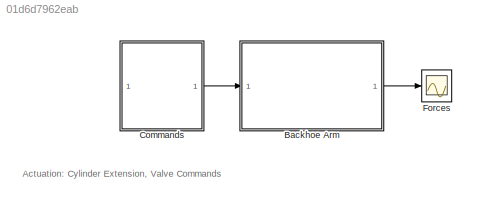
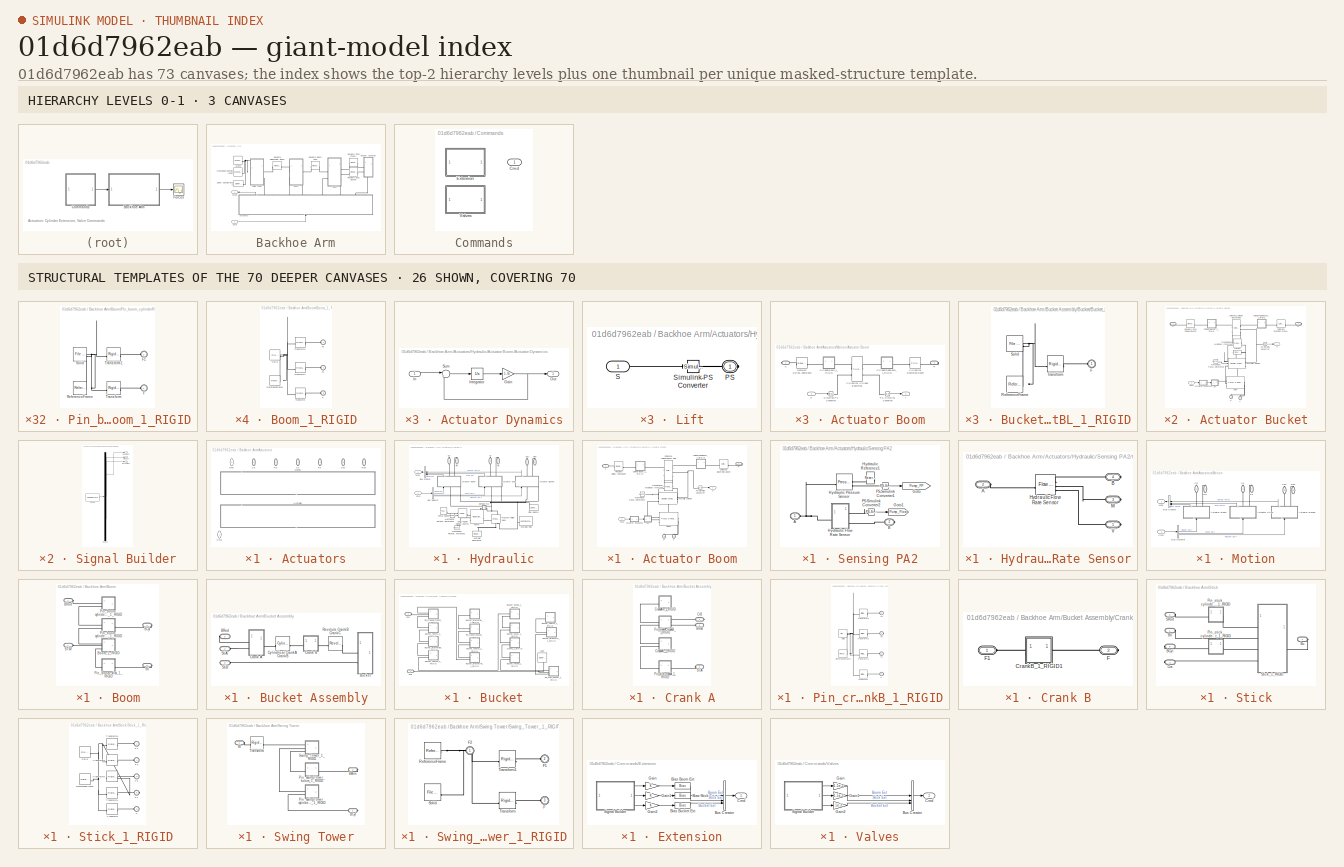
[diagram: thumbnail index - top-2 hierarchy levels (3 canvases) + 26 structural-template representatives of the remaining 70 canvases]
MODEL slx_01d6d7962eab
KIND model
CONFIG AbsTol = 1e-3
CONFIG PostLoadFcn = warning('off','sm:sli:setup:compile:SteadyStateStartNotSupported')
CONFIG SolverName = VariableStepAuto
CONFIG StopTime = 60
WORKSPACE source: external: MATLAB File  (data not in archive)
BLOCK [SubSystem] Backhoe Arm
BLOCK [SubSystem] Backhoe Arm/Actuators
  LabelModeActiveChoice = Motion
  NameLocation = left
  Variant = on
  VariantControlMode = label
BLOCK [PMIOPort] Backhoe Arm/Actuators/Cb
  NameLocation = right
  Side = Right
BLOCK [PMIOPort] Backhoe Arm/Actuators/Cbu
  NameLocation = right
  Port = 5
  Side = Right
BLOCK [Inport] Backhoe Arm/Actuators/Cmd
  NameLocation = left
BLOCK [PMIOPort] Backhoe Arm/Actuators/Cs
  NameLocation = right
  Port = 3
  Side = Right
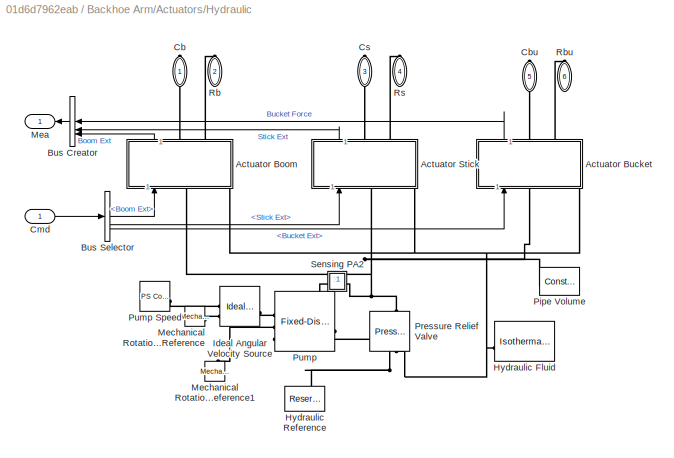
BLOCK [SubSystem] Backhoe Arm/Actuators/Hydraulic
  NameLocation = left
  VariantControl = Hydraulic
BLOCK [SubSystem] Backhoe Arm/Actuators/Hydraulic/Actuator Boom
  NameLocation = left
BLOCK [SubSystem] Backhoe Arm/Actuators/Hydraulic/Actuator Boom/Actuator Dynamics
  NameLocation = top
BLOCK [Gain] Backhoe Arm/Actuators/Hydraulic/Actuator Boom/Actuator Dynamics/Gain
  Gain = 1./b
BLOCK [Inport] Backhoe Arm/Actuators/Hydraulic/Actuator Boom/Actuator Dynamics/In
BLOCK [Integrator] Backhoe Arm/Actuators/Hydraulic/Actuator Boom/Actuator Dynamics/Integrator
  InitialCondition = x_initial.*b
BLOCK [Outport] Backhoe Arm/Actuators/Hydraulic/Actuator Boom/Actuator Dynamics/Out
  VectorParamsAs1DForOutWhenUnconnected = off
BLOCK [Sum] Backhoe Arm/Actuators/Hydraulic/Actuator Boom/Actuator Dynamics/Sum
  InputSameDT = on
  Inputs = |+-
  OutDataTypeStr = Inherit: Same as first input
  SaturateOnIntegerOverflow = on
BLOCK [PMIOPort] Backhoe Arm/Actuators/Hydraulic/Actuator Boom/C
  Side = Right
BLOCK [Inport] Backhoe Arm/Actuators/Hydraulic/Actuator Boom/Cmd
  NameLocation = top
BLOCK [SubSystem] Backhoe Arm/Actuators/Hydraulic/Actuator Boom/CylinderBoom_1_RIGID
  NameLocation = top
BLOCK [PMIOPort] Backhoe Arm/Actuators/Hydraulic/Actuator Boom/CylinderBoom_1_RIGID/F
  Side = Right
BLOCK [PMIOPort] Backhoe Arm/Actuators/Hydraulic/Actuator Boom/CylinderBoom_1_RIGID/F1
  Port = 2
  Side = Left
BLOCK [Reference] Backhoe Arm/Actuators/Hydraulic/Actuator Boom/CylinderBoom_1_RIGID/ReferenceFrame  REF=sm_lib/Frames and
Transforms/Reference
Frame
  SourceBlock = sm_lib/Frames and\nTransforms/Reference\nFrame
  SourceType = Reference\nFrame
BLOCK [Reference] Backhoe Arm/Actuators/Hydraulic/Actuator Boom/CylinderBoom_1_RIGID/Solid  REF=sm_lib/Body Elements/File Solid
  SourceBlock = sm_lib/Body Elements/File Solid
  SourceType = File Solid
BLOCK [Reference] Backhoe Arm/Actuators/Hydraulic/Actuator Boom/CylinderBoom_1_RIGID/Transform  REF=sm_lib/Frames and
Transforms/Rigid
Transform
  SourceBlock = sm_lib/Frames and\nTransforms/Rigid\nTransform
  SourceType = Rigid\nTransform
BLOCK [Reference] Backhoe Arm/Actuators/Hydraulic/Actuator Boom/CylinderBoom_1_RIGID/Transform1  REF=sm_lib/Frames and
Transforms/Rigid
Transform
  SourceBlock = sm_lib/Frames and\nTransforms/Rigid\nTransform
  SourceType = Rigid\nTransform
BLOCK [SubSystem] Backhoe Arm/Actuators/Hydraulic/Actuator Boom/CylinderRodBoom_1_RIGID
  NameLocation = top
BLOCK [PMIOPort] Backhoe Arm/Actuators/Hydraulic/Actuator Boom/CylinderRodBoom_1_RIGID/F
  Side = Left
BLOCK [PMIOPort] Backhoe Arm/Actuators/Hydraulic/Actuator Boom/CylinderRodBoom_1_RIGID/F1
  Port = 2
  Side = Right
BLOCK [Reference] Backhoe Arm/Actuators/Hydraulic/Actuator Boom/CylinderRodBoom_1_RIGID/ReferenceFrame  REF=sm_lib/Frames and
Transforms/Reference
Frame
  SourceBlock = sm_lib/Frames and\nTransforms/Reference\nFrame
  SourceType = Reference\nFrame
BLOCK [Reference] Backhoe Arm/Actuators/Hydraulic/Actuator Boom/CylinderRodBoom_1_RIGID/Solid  REF=sm_lib/Body Elements/File Solid
  SourceBlock = sm_lib/Body Elements/File Solid
  SourceType = File Solid
BLOCK [Reference] Backhoe Arm/Actuators/Hydraulic/Actuator Boom/CylinderRodBoom_1_RIGID/Transform  REF=sm_lib/Frames and
Transforms/Rigid
Transform
  SourceBlock = sm_lib/Frames and\nTransforms/Rigid\nTransform
  SourceType = Rigid\nTransform
BLOCK [Reference] Backhoe Arm/Actuators/Hydraulic/Actuator Boom/CylinderRodBoom_1_RIGID/Transform1  REF=sm_lib/Frames and
Transforms/Rigid
Transform
  SourceBlock = sm_lib/Frames and\nTransforms/Rigid\nTransform
  SourceType = Rigid\nTransform
BLOCK [Reference] Backhoe Arm/Actuators/Hydraulic/Actuator Boom/Cylindrical BoomRod Boom  REF=sm_lib/Joints/Cylindrical
Joint
  SourceBlock = sm_lib/Joints/Cylindrical\nJoint
  SourceType = Cylindrical\nJoint
BLOCK [Reference] Backhoe Arm/Actuators/Hydraulic/Actuator Boom/Cylindrical CylinderBoom Rod  REF=sm_lib/Joints/Cylindrical
Joint
  NameLocation = top
  SourceBlock = sm_lib/Joints/Cylindrical\nJoint
  SourceType = Cylindrical\nJoint
BLOCK [Reference] Backhoe Arm/Actuators/Hydraulic/Actuator Boom/Hydraulic Cylinder  REF=SimscapeFluids_lib/Isothermal Liquid/Actuators/Double-Acting
Actuator (IL)
  LibrarySourceBlock = sh_lib/Hydraulic Cylinders/Double-Acting\nHydraulic Cylinder
  SourceBlock = SimscapeFluids_lib/Isothermal Liquid/Actuators/Double-Acting\nActuator (IL)
  SourceType = Double-Acting\nActuator (IL)
  Tag = Factory Generic
BLOCK [SubSystem] Backhoe Arm/Actuators/Hydraulic/Actuator Boom/Lift
  NameLocation = top
BLOCK [PMIOPort] Backhoe Arm/Actuators/Hydraulic/Actuator Boom/Lift/PS
  Side = Right
BLOCK [Inport] Backhoe Arm/Actuators/Hydraulic/Actuator Boom/Lift/S
BLOCK [Reference] Backhoe Arm/Actuators/Hydraulic/Actuator Boom/Lift/Simulink-PS Converter  REF=nesl_utility/Simulink-PS
Converter
  SourceBlock = nesl_utility/Simulink-PS\nConverter
  SourceType = Simulink-PS\nConverter
BLOCK [Reference] Backhoe Arm/Actuators/Hydraulic/Actuator Boom/Mechanical Translational Reference  REF=fl_lib/Mechanical/Translational
Elements/Mechanical
Translational
Reference
  SourceBlock = fl_lib/Mechanical/Translational\nElements/Mechanical\nTranslational\nReference
  SourceType = Mechanical\nTranslational\nReference
  Tag = Factory Generic
BLOCK [PMIOPort] Backhoe Arm/Actuators/Hydraulic/Actuator Boom/P
  NameLocation = left
  Port = 3
  Side = Left
BLOCK [Reference] Backhoe Arm/Actuators/Hydraulic/Actuator Boom/PS-Simulink Converter  REF=nesl_utility/PS-Simulink
Converter
  SourceBlock = nesl_utility/PS-Simulink\nConverter
  SourceType = PS-Simulink\nConverter
BLOCK [PMIOPort] Backhoe Arm/Actuators/Hydraulic/Actuator Boom/R
  Port = 2
  Side = Right
BLOCK [Reference] Backhoe Arm/Actuators/Hydraulic/Actuator Boom/Revolute SwingTower CylinderBoom  REF=sm_lib/Joints/Revolute Joint
  SourceBlock = sm_lib/Joints/Revolute Joint
  SourceType = Revolute Joint
BLOCK [PMIOPort] Backhoe Arm/Actuators/Hydraulic/Actuator Boom/T
  NameLocation = right
  Port = 4
  Side = Left
BLOCK [Reference] Backhoe Arm/Actuators/Hydraulic/Actuator Boom/Translational Multibody Interface  REF=fl_lib/Mechanical/Multibody Interfaces/Translational
Multibody Interface
  SourceBlock = fl_lib/Mechanical/Multibody Interfaces/Translational\nMultibody Interface
  SourceType = Translational\nMultibody Interface
BLOCK [Reference] Backhoe Arm/Actuators/Hydraulic/Actuator Boom/Valve1  REF=SimscapeFluids_lib/Isothermal Liquid/Valves & Orifices/Directional Control
Valves/4-Way 3-Position
Directional Valve
(IL)
  LibrarySourceBlock = sh_lib/Valves/Directional Valves/4-Way Directional\nValve
  SourceBlock = SimscapeFluids_lib/Isothermal Liquid/Valves & Orifices/Directional Control\nValves/4-Way 3-Position\nDirectional Valve\n(IL)
  SourceType = 4-Way 3-Position\nDirectional Valve\n(IL)
  Tag = Factory Generic
BLOCK [Outport] Backhoe Arm/Actuators/Hydraulic/Actuator Boom/p
  VectorParamsAs1DForOutWhenUnconnected = off
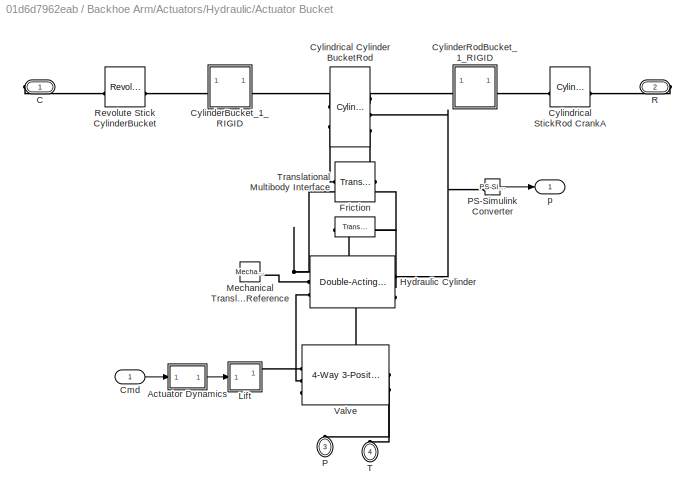
BLOCK [SubSystem] Backhoe Arm/Actuators/Hydraulic/Actuator Bucket
  NameLocation = left
BLOCK [SubSystem] Backhoe Arm/Actuators/Hydraulic/Actuator Bucket/Actuator Dynamics
BLOCK [Gain] Backhoe Arm/Actuators/Hydraulic/Actuator Bucket/Actuator Dynamics/Gain
  Gain = 1./b
BLOCK [Inport] Backhoe Arm/Actuators/Hydraulic/Actuator Bucket/Actuator Dynamics/In
BLOCK [Integrator] Backhoe Arm/Actuators/Hydraulic/Actuator Bucket/Actuator Dynamics/Integrator
  InitialCondition = x_initial.*b
BLOCK [Outport] Backhoe Arm/Actuators/Hydraulic/Actuator Bucket/Actuator Dynamics/Out
  VectorParamsAs1DForOutWhenUnconnected = off
BLOCK [Sum] Backhoe Arm/Actuators/Hydraulic/Actuator Bucket/Actuator Dynamics/Sum
  InputSameDT = on
  Inputs = |+-
  OutDataTypeStr = Inherit: Same as first input
  SaturateOnIntegerOverflow = on
BLOCK [PMIOPort] Backhoe Arm/Actuators/Hydraulic/Actuator Bucket/C
  Side = Right
BLOCK [Inport] Backhoe Arm/Actuators/Hydraulic/Actuator Bucket/Cmd
BLOCK [SubSystem] Backhoe Arm/Actuators/Hydraulic/Actuator Bucket/CylinderBucket_1_RIGID
  NameLocation = top
BLOCK [PMIOPort] Backhoe Arm/Actuators/Hydraulic/Actuator Bucket/CylinderBucket_1_RIGID/F
  Side = Left
BLOCK [PMIOPort] Backhoe Arm/Actuators/Hydraulic/Actuator Bucket/CylinderBucket_1_RIGID/F1
  Port = 2
  Side = Right
BLOCK [Reference] Backhoe Arm/Actuators/Hydraulic/Actuator Bucket/CylinderBucket_1_RIGID/ReferenceFrame  REF=sm_lib/Frames and
Transforms/Reference
Frame
  SourceBlock = sm_lib/Frames and\nTransforms/Reference\nFrame
  SourceType = Reference\nFrame
BLOCK [Reference] Backhoe Arm/Actuators/Hydraulic/Actuator Bucket/CylinderBucket_1_RIGID/Solid  REF=sm_lib/Body Elements/File Solid
  SourceBlock = sm_lib/Body Elements/File Solid
  SourceType = File Solid
BLOCK [Reference] Backhoe Arm/Actuators/Hydraulic/Actuator Bucket/CylinderBucket_1_RIGID/Transform  REF=sm_lib/Frames and
Transforms/Rigid
Transform
  SourceBlock = sm_lib/Frames and\nTransforms/Rigid\nTransform
  SourceType = Rigid\nTransform
BLOCK [Reference] Backhoe Arm/Actuators/Hydraulic/Actuator Bucket/CylinderBucket_1_RIGID/Transform1  REF=sm_lib/Frames and
Transforms/Rigid
Transform
  SourceBlock = sm_lib/Frames and\nTransforms/Rigid\nTransform
  SourceType = Rigid\nTransform
BLOCK [SubSystem] Backhoe Arm/Actuators/Hydraulic/Actuator Bucket/CylinderRodBucket_1_RIGID
  NameLocation = top
BLOCK [PMIOPort] Backhoe Arm/Actuators/Hydraulic/Actuator Bucket/CylinderRodBucket_1_RIGID/F
  Port = 2
  Side = Left
BLOCK [PMIOPort] Backhoe Arm/Actuators/Hydraulic/Actuator Bucket/CylinderRodBucket_1_RIGID/F1
  Side = Right
BLOCK [Reference] Backhoe Arm/Actuators/Hydraulic/Actuator Bucket/CylinderRodBucket_1_RIGID/ReferenceFrame  REF=sm_lib/Frames and
Transforms/Reference
Frame
  SourceBlock = sm_lib/Frames and\nTransforms/Reference\nFrame
  SourceType = Reference\nFrame
BLOCK [Reference] Backhoe Arm/Actuators/Hydraulic/Actuator Bucket/CylinderRodBucket_1_RIGID/Solid  REF=sm_lib/Body Elements/File Solid
  SourceBlock = sm_lib/Body Elements/File Solid
  SourceType = File Solid
BLOCK [Reference] Backhoe Arm/Actuators/Hydraulic/Actuator Bucket/CylinderRodBucket_1_RIGID/Transform  REF=sm_lib/Frames and
Transforms/Rigid
Transform
  SourceBlock = sm_lib/Frames and\nTransforms/Rigid\nTransform
  SourceType = Rigid\nTransform
BLOCK [Reference] Backhoe Arm/Actuators/Hydraulic/Actuator Bucket/CylinderRodBucket_1_RIGID/Transform1  REF=sm_lib/Frames and
Transforms/Rigid
Transform
  SourceBlock = sm_lib/Frames and\nTransforms/Rigid\nTransform
  SourceType = Rigid\nTransform
BLOCK [Reference] Backhoe Arm/Actuators/Hydraulic/Actuator Bucket/Cylindrical Cylinder BucketRod  REF=sm_lib/Joints/Cylindrical
Joint
  NameLocation = top
  SourceBlock = sm_lib/Joints/Cylindrical\nJoint
  SourceType = Cylindrical\nJoint
BLOCK [Reference] Backhoe Arm/Actuators/Hydraulic/Actuator Bucket/Cylindrical StickRod CrankA  REF=sm_lib/Joints/Cylindrical
Joint
  SourceBlock = sm_lib/Joints/Cylindrical\nJoint
  SourceType = Cylindrical\nJoint
BLOCK [Reference] Backhoe Arm/Actuators/Hydraulic/Actuator Bucket/Friction  REF=fl_lib/Mechanical/Translational
Elements/Translational
Friction
  SourceBlock = fl_lib/Mechanical/Translational\nElements/Translational\nFriction
  SourceType = Translational\nFriction
BLOCK [Reference] Backhoe Arm/Actuators/Hydraulic/Actuator Bucket/Hydraulic Cylinder  REF=SimscapeFluids_lib/Isothermal Liquid/Actuators/Double-Acting
Actuator (IL)
  LibrarySourceBlock = sh_lib/Hydraulic Cylinders/Double-Acting\nHydraulic Cylinder
  SourceBlock = SimscapeFluids_lib/Isothermal Liquid/Actuators/Double-Acting\nActuator (IL)
  SourceType = Double-Acting\nActuator (IL)
  Tag = Factory Generic
BLOCK [SubSystem] Backhoe Arm/Actuators/Hydraulic/Actuator Bucket/Lift
BLOCK [PMIOPort] Backhoe Arm/Actuators/Hydraulic/Actuator Bucket/Lift/PS
  Side = Right
BLOCK [Inport] Backhoe Arm/Actuators/Hydraulic/Actuator Bucket/Lift/S
BLOCK [Reference] Backhoe Arm/Actuators/Hydraulic/Actuator Bucket/Lift/Simulink-PS Converter  REF=nesl_utility/Simulink-PS
Converter
  SourceBlock = nesl_utility/Simulink-PS\nConverter
  SourceType = Simulink-PS\nConverter
BLOCK [Reference] Backhoe Arm/Actuators/Hydraulic/Actuator Bucket/Mechanical Translational Reference  REF=fl_lib/Mechanical/Translational
Elements/Mechanical
Translational
Reference
  SourceBlock = fl_lib/Mechanical/Translational\nElements/Mechanical\nTranslational\nReference
  SourceType = Mechanical\nTranslational\nReference
  Tag = Factory Generic
BLOCK [PMIOPort] Backhoe Arm/Actuators/Hydraulic/Actuator Bucket/P
  NameLocation = left
  Port = 3
  Side = Left
BLOCK [Reference] Backhoe Arm/Actuators/Hydraulic/Actuator Bucket/PS-Simulink Converter  REF=nesl_utility/PS-Simulink
Converter
  SourceBlock = nesl_utility/PS-Simulink\nConverter
  SourceType = PS-Simulink\nConverter
BLOCK [PMIOPort] Backhoe Arm/Actuators/Hydraulic/Actuator Bucket/R
  Port = 2
  Side = Right
BLOCK [Reference] Backhoe Arm/Actuators/Hydraulic/Actuator Bucket/Revolute Stick CylinderBucket  REF=sm_lib/Joints/Revolute Joint
  SourceBlock = sm_lib/Joints/Revolute Joint
  SourceType = Revolute Joint
BLOCK [PMIOPort] Backhoe Arm/Actuators/Hydraulic/Actuator Bucket/T
  NameLocation = right
  Port = 4
  Side = Left
BLOCK [Reference] Backhoe Arm/Actuators/Hydraulic/Actuator Bucket/Translational Multibody Interface  REF=fl_lib/Mechanical/Multibody Interfaces/Translational
Multibody Interface
  SourceBlock = fl_lib/Mechanical/Multibody Interfaces/Translational\nMultibody Interface
  SourceType = Translational\nMultibody Interface
BLOCK [Reference] Backhoe Arm/Actuators/Hydraulic/Actuator Bucket/Valve  REF=SimscapeFluids_lib/Isothermal Liquid/Valves & Orifices/Directional Control
Valves/4-Way 3-Position
Directional Valve
(IL)
  LibrarySourceBlock = sh_lib/Valves/Directional Valves/4-Way Directional\nValve
  NameLocation = right
  SourceBlock = SimscapeFluids_lib/Isothermal Liquid/Valves & Orifices/Directional Control\nValves/4-Way 3-Position\nDirectional Valve\n(IL)
  SourceType = 4-Way 3-Position\nDirectional Valve\n(IL)
  Tag = Factory Generic
BLOCK [Outport] Backhoe Arm/Actuators/Hydraulic/Actuator Bucket/p
  VectorParamsAs1DForOutWhenUnconnected = off
BLOCK [SubSystem] Backhoe Arm/Actuators/Hydraulic/Actuator Stick
  NameLocation = left
BLOCK [SubSystem] Backhoe Arm/Actuators/Hydraulic/Actuator Stick/Actuator Dynamics
BLOCK [Gain] Backhoe Arm/Actuators/Hydraulic/Actuator Stick/Actuator Dynamics/Gain
  Gain = 1./b
BLOCK [Inport] Backhoe Arm/Actuators/Hydraulic/Actuator Stick/Actuator Dynamics/In
BLOCK [Integrator] Backhoe Arm/Actuators/Hydraulic/Actuator Stick/Actuator Dynamics/Integrator
  InitialCondition = x_initial.*b
BLOCK [Outport] Backhoe Arm/Actuators/Hydraulic/Actuator Stick/Actuator Dynamics/Out
  VectorParamsAs1DForOutWhenUnconnected = off
BLOCK [Sum] Backhoe Arm/Actuators/Hydraulic/Actuator Stick/Actuator Dynamics/Sum
  InputSameDT = on
  Inputs = |+-
  OutDataTypeStr = Inherit: Same as first input
  SaturateOnIntegerOverflow = on
BLOCK [PMIOPort] Backhoe Arm/Actuators/Hydraulic/Actuator Stick/C
  Side = Right
BLOCK [Inport] Backhoe Arm/Actuators/Hydraulic/Actuator Stick/Cmd
BLOCK [SubSystem] Backhoe Arm/Actuators/Hydraulic/Actuator Stick/CylinderRodStick_1_RIGID
  NameLocation = top
BLOCK [PMIOPort] Backhoe Arm/Actuators/Hydraulic/Actuator Stick/CylinderRodStick_1_RIGID/F
  Side = Left
BLOCK [PMIOPort] Backhoe Arm/Actuators/Hydraulic/Actuator Stick/CylinderRodStick_1_RIGID/F1
  Port = 2
  Side = Right
BLOCK [Reference] Backhoe Arm/Actuators/Hydraulic/Actuator Stick/CylinderRodStick_1_RIGID/ReferenceFrame  REF=sm_lib/Frames and
Transforms/Reference
Frame
  SourceBlock = sm_lib/Frames and\nTransforms/Reference\nFrame
  SourceType = Reference\nFrame
BLOCK [Reference] Backhoe Arm/Actuators/Hydraulic/Actuator Stick/CylinderRodStick_1_RIGID/Solid  REF=sm_lib/Body Elements/File Solid
  SourceBlock = sm_lib/Body Elements/File Solid
  SourceType = File Solid
BLOCK [Reference] Backhoe Arm/Actuators/Hydraulic/Actuator Stick/CylinderRodStick_1_RIGID/Transform  REF=sm_lib/Frames and
Transforms/Rigid
Transform
  SourceBlock = sm_lib/Frames and\nTransforms/Rigid\nTransform
  SourceType = Rigid\nTransform
BLOCK [Reference] Backhoe Arm/Actuators/Hydraulic/Actuator Stick/CylinderRodStick_1_RIGID/Transform1  REF=sm_lib/Frames and
Transforms/Rigid
Transform
  SourceBlock = sm_lib/Frames and\nTransforms/Rigid\nTransform
  SourceType = Rigid\nTransform
BLOCK [SubSystem] Backhoe Arm/Actuators/Hydraulic/Actuator Stick/CylinderStick_1_RIGID
  NameLocation = top
BLOCK [PMIOPort] Backhoe Arm/Actuators/Hydraulic/Actuator Stick/CylinderStick_1_RIGID/F
  Port = 2
  Side = Right
BLOCK [PMIOPort] Backhoe Arm/Actuators/Hydraulic/Actuator Stick/CylinderStick_1_RIGID/F1
  Side = Left
BLOCK [Reference] Backhoe Arm/Actuators/Hydraulic/Actuator Stick/CylinderStick_1_RIGID/ReferenceFrame  REF=sm_lib/Frames and
Transforms/Reference
Frame
  SourceBlock = sm_lib/Frames and\nTransforms/Reference\nFrame
  SourceType = Reference\nFrame
BLOCK [Reference] Backhoe Arm/Actuators/Hydraulic/Actuator Stick/CylinderStick_1_RIGID/Solid  REF=sm_lib/Body Elements/File Solid
  SourceBlock = sm_lib/Body Elements/File Solid
  SourceType = File Solid
BLOCK [Reference] Backhoe Arm/Actuators/Hydraulic/Actuator Stick/CylinderStick_1_RIGID/Transform  REF=sm_lib/Frames and
Transforms/Rigid
Transform
  SourceBlock = sm_lib/Frames and\nTransforms/Rigid\nTransform
  SourceType = Rigid\nTransform
BLOCK [Reference] Backhoe Arm/Actuators/Hydraulic/Actuator Stick/CylinderStick_1_RIGID/Transform1  REF=sm_lib/Frames and
Transforms/Rigid
Transform
  SourceBlock = sm_lib/Frames and\nTransforms/Rigid\nTransform
  SourceType = Rigid\nTransform
BLOCK [Reference] Backhoe Arm/Actuators/Hydraulic/Actuator Stick/Cylindrical CylinderStick Rod  REF=sm_lib/Joints/Cylindrical
Joint
  NameLocation = top
  SourceBlock = sm_lib/Joints/Cylindrical\nJoint
  SourceType = Cylindrical\nJoint
BLOCK [Reference] Backhoe Arm/Actuators/Hydraulic/Actuator Stick/Cylindrical StickRod Stick  REF=sm_lib/Joints/Cylindrical
Joint
  SourceBlock = sm_lib/Joints/Cylindrical\nJoint
  SourceType = Cylindrical\nJoint
BLOCK [Reference] Backhoe Arm/Actuators/Hydraulic/Actuator Stick/Friction  REF=fl_lib/Mechanical/Translational
Elements/Translational
Friction
  SourceBlock = fl_lib/Mechanical/Translational\nElements/Translational\nFriction
  SourceType = Translational\nFriction
BLOCK [Reference] Backhoe Arm/Actuators/Hydraulic/Actuator Stick/Hydraulic Cylinder  REF=SimscapeFluids_lib/Isothermal Liquid/Actuators/Double-Acting
Actuator (IL)
  LibrarySourceBlock = sh_lib/Hydraulic Cylinders/Double-Acting\nHydraulic Cylinder
  SourceBlock = SimscapeFluids_lib/Isothermal Liquid/Actuators/Double-Acting\nActuator (IL)
  SourceType = Double-Acting\nActuator (IL)
  Tag = Factory Generic
BLOCK [SubSystem] Backhoe Arm/Actuators/Hydraulic/Actuator Stick/Lift
BLOCK [PMIOPort] Backhoe Arm/Actuators/Hydraulic/Actuator Stick/Lift/PS
  Side = Right
BLOCK [Inport] Backhoe Arm/Actuators/Hydraulic/Actuator Stick/Lift/S
BLOCK [Reference] Backhoe Arm/Actuators/Hydraulic/Actuator Stick/Lift/Simulink-PS Converter  REF=nesl_utility/Simulink-PS
Converter
  SourceBlock = nesl_utility/Simulink-PS\nConverter
  SourceType = Simulink-PS\nConverter
BLOCK [Reference] Backhoe Arm/Actuators/Hydraulic/Actuator Stick/Mechanical Translational Reference  REF=fl_lib/Mechanical/Translational
Elements/Mechanical
Translational
Reference
  SourceBlock = fl_lib/Mechanical/Translational\nElements/Mechanical\nTranslational\nReference
  SourceType = Mechanical\nTranslational\nReference
  Tag = Factory Generic
BLOCK [PMIOPort] Backhoe Arm/Actuators/Hydraulic/Actuator Stick/P
  NameLocation = left
  Port = 3
  Side = Left
BLOCK [Reference] Backhoe Arm/Actuators/Hydraulic/Actuator Stick/PS-Simulink Converter  REF=nesl_utility/PS-Simulink
Converter
  SourceBlock = nesl_utility/PS-Simulink\nConverter
  SourceType = PS-Simulink\nConverter
BLOCK [PMIOPort] Backhoe Arm/Actuators/Hydraulic/Actuator Stick/R
  Port = 2
  Side = Right
BLOCK [Reference] Backhoe Arm/Actuators/Hydraulic/Actuator Stick/Revolute Boom CylinderStick  REF=sm_lib/Joints/Revolute Joint
  SourceBlock = sm_lib/Joints/Revolute Joint
  SourceType = Revolute Joint
BLOCK [PMIOPort] Backhoe Arm/Actuators/Hydraulic/Actuator Stick/T
  NameLocation = right
  Port = 4
  Side = Left
BLOCK [Reference] Backhoe Arm/Actuators/Hydraulic/Actuator Stick/Translational Multibody Interface  REF=fl_lib/Mechanical/Multibody Interfaces/Translational
Multibody Interface
  SourceBlock = fl_lib/Mechanical/Multibody Interfaces/Translational\nMultibody Interface
  SourceType = Translational\nMultibody Interface
BLOCK [Reference] Backhoe Arm/Actuators/Hydraulic/Actuator Stick/Valve1  REF=SimscapeFluids_lib/Isothermal Liquid/Valves & Orifices/Directional Control
Valves/4-Way 3-Position
Directional Valve
(IL)
  LibrarySourceBlock = sh_lib/Valves/Directional Valves/4-Way Directional\nValve
  SourceBlock = SimscapeFluids_lib/Isothermal Liquid/Valves & Orifices/Directional Control\nValves/4-Way 3-Position\nDirectional Valve\n(IL)
  SourceType = 4-Way 3-Position\nDirectional Valve\n(IL)
  Tag = Factory Generic
BLOCK [Outport] Backhoe Arm/Actuators/Hydraulic/Actuator Stick/p
  VectorParamsAs1DForOutWhenUnconnected = off
BLOCK [BusCreator] Backhoe Arm/Actuators/Hydraulic/Bus Creator
  DisplayOption = bar
  InheritFromInputs = on
  Inputs = 3
  NameLocation = top
BLOCK [BusSelector] Backhoe Arm/Actuators/Hydraulic/Bus Selector
  OutputSignals = Boom Ext,Stick Ext,Bucket Ext
BLOCK [PMIOPort] Backhoe Arm/Actuators/Hydraulic/Cb
  NameLocation = left
  Side = Right
BLOCK [PMIOPort] Backhoe Arm/Actuators/Hydraulic/Cbu
  NameLocation = left
  Port = 5
  Side = Right
BLOCK [Inport] Backhoe Arm/Actuators/Hydraulic/Cmd
BLOCK [PMIOPort] Backhoe Arm/Actuators/Hydraulic/Cs
  NameLocation = left
  Port = 3
  Side = Right
BLOCK [Reference] Backhoe Arm/Actuators/Hydraulic/Hydraulic Fluid  REF=fl_lib/Isothermal Liquid/Utilities/Isothermal Liquid
Properties (IL)
  LibrarySourceBlock = sh_lib/Hydraulic Utilities/Hydraulic Fluid
  SourceBlock = fl_lib/Isothermal Liquid/Utilities/Isothermal Liquid\nProperties (IL)
  SourceType = Isothermal Liquid\nProperties (IL)
BLOCK [Reference] Backhoe Arm/Actuators/Hydraulic/Hydraulic Reference  REF=fl_lib/Isothermal Liquid/Elements/Reservoir (IL)
  LibrarySourceBlock = fl_lib/Hydraulic/Hydraulic Elements/Hydraulic Reference
  NameLocation = right
  SourceBlock = fl_lib/Isothermal Liquid/Elements/Reservoir (IL)
  SourceType = Reservoir (IL)
BLOCK [Reference] Backhoe Arm/Actuators/Hydraulic/Ideal Angular Velocity Source  REF=fl_lib/Mechanical/Mechanical Sources/Ideal Angular
Velocity Source
  SourceBlock = fl_lib/Mechanical/Mechanical Sources/Ideal Angular\nVelocity Source
  SourceType = Ideal Angular\nVelocity Source
BLOCK [Outport] Backhoe Arm/Actuators/Hydraulic/Mea
  VectorParamsAs1DForOutWhenUnconnected = off
BLOCK [Reference] Backhoe Arm/Actuators/Hydraulic/Mechanical Rotational Reference  REF=fl_lib/Mechanical/Rotational Elements/Mechanical
Rotational Reference
  SourceBlock = fl_lib/Mechanical/Rotational Elements/Mechanical\nRotational Reference
  SourceType = Mechanical\nRotational Reference
BLOCK [Reference] Backhoe Arm/Actuators/Hydraulic/Mechanical Rotational Reference1  REF=fl_lib/Mechanical/Rotational Elements/Mechanical
Rotational Reference
  NameLocation = right
  SourceBlock = fl_lib/Mechanical/Rotational Elements/Mechanical\nRotational Reference
  SourceType = Mechanical\nRotational Reference
BLOCK [Reference] Backhoe Arm/Actuators/Hydraulic/Pipe Volume  REF=fl_lib/Isothermal Liquid/Elements/Constant Volume
Chamber (IL)
  LibrarySourceBlock = fl_lib/Hydraulic/Hydraulic Elements/Constant Volume\nHydraulic Chamber
  SourceBlock = fl_lib/Isothermal Liquid/Elements/Constant Volume\nChamber (IL)
  SourceType = Constant Volume\nChamber (IL)
BLOCK [Reference] Backhoe Arm/Actuators/Hydraulic/Pressure Relief Valve  REF=SimscapeFluids_lib/Isothermal Liquid/Valves & Orifices/Pressure Control
Valves/Pressure Relief
Valve (IL)
  LibrarySourceBlock = sh_lib/Valves/Pressure Control\nValves/Pressure Relief\nValve
  NameLocation = right
  SourceBlock = SimscapeFluids_lib/Isothermal Liquid/Valves & Orifices/Pressure Control\nValves/Pressure Relief\nValve (IL)
  SourceType = Pressure Relief\nValve (IL)
BLOCK [Reference] Backhoe Arm/Actuators/Hydraulic/Pump  REF=SimscapeFluids_lib/Isothermal Liquid/Pumps & Motors/Fixed-Displacement
Pump (IL)
  LibrarySourceBlock = sh_lib/Pumps and Motors/Fixed-Displacement\nPump
  NameLocation = right
  SourceBlock = SimscapeFluids_lib/Isothermal Liquid/Pumps & Motors/Fixed-Displacement\nPump (IL)
  SourceType = Fixed-Displacement\nPump (IL)
BLOCK [Reference] Backhoe Arm/Actuators/Hydraulic/Pump Speed  REF=fl_lib/Physical Signals/Sources/PS Constant
  SourceBlock = fl_lib/Physical Signals/Sources/PS Constant
  SourceType = PS Constant
BLOCK [PMIOPort] Backhoe Arm/Actuators/Hydraulic/Rb
  NameLocation = right
  Port = 2
  Side = Right
BLOCK [PMIOPort] Backhoe Arm/Actuators/Hydraulic/Rbu
  NameLocation = right
  Port = 6
  Side = Right
BLOCK [PMIOPort] Backhoe Arm/Actuators/Hydraulic/Rs
  NameLocation = right
  Port = 4
  Side = Right
BLOCK [SubSystem] Backhoe Arm/Actuators/Hydraulic/Sensing PA2
  NameLocation = top
BLOCK [PMIOPort] Backhoe Arm/Actuators/Hydraulic/Sensing PA2/A
  Side = Left
BLOCK [PMIOPort] Backhoe Arm/Actuators/Hydraulic/Sensing PA2/B
  Port = 2
  Side = Right
BLOCK [Goto] Backhoe Arm/Actuators/Hydraulic/Sensing PA2/Goto
  GotoTag = Pump_PP
  TagVisibility = global
BLOCK [Goto] Backhoe Arm/Actuators/Hydraulic/Sensing PA2/Goto1
  GotoTag = Pump_Flow
  TagVisibility = global
BLOCK [SubSystem] Backhoe Arm/Actuators/Hydraulic/Sensing PA2/Hydraulic Flow Rate Sensor
BLOCK [PMIOPort] Backhoe Arm/Actuators/Hydraulic/Sensing PA2/Hydraulic Flow Rate Sensor/A
  Port = 2
  Side = Left
BLOCK [PMIOPort] Backhoe Arm/Actuators/Hydraulic/Sensing PA2/Hydraulic Flow Rate Sensor/B
  Port = 4
  Side = Right
BLOCK [Reference] Backhoe Arm/Actuators/Hydraulic/Sensing PA2/Hydraulic Flow Rate Sensor/Hydraulic Flow Rate Sensor  REF=fl_lib/Isothermal Liquid/Sensors/Flow Rate Sensor
(IL)
  LibrarySourceBlock = fl_lib/Hydraulic/Hydraulic Sensors/Hydraulic Flow Rate\nSensor
  SourceBlock = fl_lib/Isothermal Liquid/Sensors/Flow Rate Sensor\n(IL)
  SourceType = Flow Rate Sensor\n(IL)
BLOCK [PMIOPort] Backhoe Arm/Actuators/Hydraulic/Sensing PA2/Hydraulic Flow Rate Sensor/M
  Port = 3
  Side = Right
BLOCK [PMIOPort] Backhoe Arm/Actuators/Hydraulic/Sensing PA2/Hydraulic Flow Rate Sensor/V
  Side = Right
BLOCK [Reference] Backhoe Arm/Actuators/Hydraulic/Sensing PA2/Hydraulic Pressure Sensor  REF=fl_lib/Isothermal Liquid/Sensors/Pressure Sensor (IL)
  LibrarySourceBlock = fl_lib/Hydraulic/Hydraulic Sensors/Hydraulic Pressure\nSensor
  SourceBlock = fl_lib/Isothermal Liquid/Sensors/Pressure Sensor (IL)
  SourceType = Pressure Sensor (IL)
BLOCK [Reference] Backhoe Arm/Actuators/Hydraulic/Sensing PA2/Hydraulic Reference1  REF=fl_lib/Isothermal Liquid/Elements/Reservoir (IL)
  LibrarySourceBlock = fl_lib/Hydraulic/Hydraulic Elements/Hydraulic Reference
  NameLocation = top
  SourceBlock = fl_lib/Isothermal Liquid/Elements/Reservoir (IL)
  SourceType = Reservoir (IL)
BLOCK [Reference] Backhoe Arm/Actuators/Hydraulic/Sensing PA2/PS-Simulink Converter1  REF=nesl_utility/PS-Simulink
Converter
  SourceBlock = nesl_utility/PS-Simulink\nConverter
  SourceType = PS-Simulink\nConverter
BLOCK [Reference] Backhoe Arm/Actuators/Hydraulic/Sensing PA2/PS-Simulink Converter2  REF=nesl_utility/PS-Simulink
Converter
  SourceBlock = nesl_utility/PS-Simulink\nConverter
  SourceType = PS-Simulink\nConverter
BLOCK [Outport] Backhoe Arm/Actuators/Mea
  NameLocation = right
  VectorParamsAs1DForOutWhenUnconnected = off
BLOCK [SubSystem] Backhoe Arm/Actuators/Motion
  NameLocation = left
  VariantControl = Motion
BLOCK [SubSystem] Backhoe Arm/Actuators/Motion/Actuator Boom
  NameLocation = left
BLOCK [PMIOPort] Backhoe Arm/Actuators/Motion/Actuator Boom/C
  Side = Right
BLOCK [SubSystem] Backhoe Arm/Actuators/Motion/Actuator Boom/CylinderBoom_1_RIGID
  NameLocation = top
BLOCK [PMIOPort] Backhoe Arm/Actuators/Motion/Actuator Boom/CylinderBoom_1_RIGID/F
  Side = Right
BLOCK [PMIOPort] Backhoe Arm/Actuators/Motion/Actuator Boom/CylinderBoom_1_RIGID/F1
  Port = 2
  Side = Left
BLOCK [Reference] Backhoe Arm/Actuators/Motion/Actuator Boom/CylinderBoom_1_RIGID/ReferenceFrame  REF=sm_lib/Frames and
Transforms/Reference
Frame
  SourceBlock = sm_lib/Frames and\nTransforms/Reference\nFrame
  SourceType = Reference\nFrame
BLOCK [Reference] Backhoe Arm/Actuators/Motion/Actuator Boom/CylinderBoom_1_RIGID/Solid  REF=sm_lib/Body Elements/File Solid
  SourceBlock = sm_lib/Body Elements/File Solid
  SourceType = File Solid
BLOCK [Reference] Backhoe Arm/Actuators/Motion/Actuator Boom/CylinderBoom_1_RIGID/Transform  REF=sm_lib/Frames and
Transforms/Rigid
Transform
  SourceBlock = sm_lib/Frames and\nTransforms/Rigid\nTransform
  SourceType = Rigid\nTransform
BLOCK [Reference] Backhoe Arm/Actuators/Motion/Actuator Boom/CylinderBoom_1_RIGID/Transform1  REF=sm_lib/Frames and
Transforms/Rigid
Transform
  SourceBlock = sm_lib/Frames and\nTransforms/Rigid\nTransform
  SourceType = Rigid\nTransform
BLOCK [SubSystem] Backhoe Arm/Actuators/Motion/Actuator Boom/CylinderRodBoom_1_RIGID
  NameLocation = top
BLOCK [PMIOPort] Backhoe Arm/Actuators/Motion/Actuator Boom/CylinderRodBoom_1_RIGID/F
  Side = Left
BLOCK [PMIOPort] Backhoe Arm/Actuators/Motion/Actuator Boom/CylinderRodBoom_1_RIGID/F1
  Port = 2
  Side = Right
BLOCK [Reference] Backhoe Arm/Actuators/Motion/Actuator Boom/CylinderRodBoom_1_RIGID/ReferenceFrame  REF=sm_lib/Frames and
Transforms/Reference
Frame
  SourceBlock = sm_lib/Frames and\nTransforms/Reference\nFrame
  SourceType = Reference\nFrame
BLOCK [Reference] Backhoe Arm/Actuators/Motion/Actuator Boom/CylinderRodBoom_1_RIGID/Solid  REF=sm_lib/Body Elements/File Solid
  SourceBlock = sm_lib/Body Elements/File Solid
  SourceType = File Solid
BLOCK [Reference] Backhoe Arm/Actuators/Motion/Actuator Boom/CylinderRodBoom_1_RIGID/Transform  REF=sm_lib/Frames and
Transforms/Rigid
Transform
  SourceBlock = sm_lib/Frames and\nTransforms/Rigid\nTransform
  SourceType = Rigid\nTransform
BLOCK [Reference] Backhoe Arm/Actuators/Motion/Actuator Boom/CylinderRodBoom_1_RIGID/Transform1  REF=sm_lib/Frames and
Transforms/Rigid
Transform
  SourceBlock = sm_lib/Frames and\nTransforms/Rigid\nTransform
  SourceType = Rigid\nTransform
BLOCK [Reference] Backhoe Arm/Actuators/Motion/Actuator Boom/Cylindrical BoomRod Boom  REF=sm_lib/Joints/Cylindrical
Joint
  SourceBlock = sm_lib/Joints/Cylindrical\nJoint
  SourceType = Cylindrical\nJoint
BLOCK [Reference] Backhoe Arm/Actuators/Motion/Actuator Boom/Cylindrical Cylinder BoomRod  REF=sm_lib/Joints/Cylindrical
Joint
  SourceBlock = sm_lib/Joints/Cylindrical\nJoint
  SourceType = Cylindrical\nJoint
BLOCK [Reference] Backhoe Arm/Actuators/Motion/Actuator Boom/PS-Simulink Converter  REF=nesl_utility/PS-Simulink
Converter
  SourceBlock = nesl_utility/PS-Simulink\nConverter
  SourceType = PS-Simulink\nConverter
BLOCK [PMIOPort] Backhoe Arm/Actuators/Motion/Actuator Boom/R
  Port = 2
  Side = Right
BLOCK [Reference] Backhoe Arm/Actuators/Motion/Actuator Boom/Revolute SwingTower CylinderBoom  REF=sm_lib/Joints/Revolute Joint
  SourceBlock = sm_lib/Joints/Revolute Joint
  SourceType = Revolute Joint
BLOCK [Reference] Backhoe Arm/Actuators/Motion/Actuator Boom/Simulink-PS Converter  REF=nesl_utility/Simulink-PS
Converter
  SourceBlock = nesl_utility/Simulink-PS\nConverter
  SourceType = Simulink-PS\nConverter
BLOCK [Outport] Backhoe Arm/Actuators/Motion/Actuator Boom/f
  VectorParamsAs1DForOutWhenUnconnected = off
BLOCK [Inport] Backhoe Arm/Actuators/Motion/Actuator Boom/p
BLOCK [SubSystem] Backhoe Arm/Actuators/Motion/Actuator Bucket
  NameLocation = left
BLOCK [PMIOPort] Backhoe Arm/Actuators/Motion/Actuator Bucket/C
  Side = Right
BLOCK [SubSystem] Backhoe Arm/Actuators/Motion/Actuator Bucket/CylinderBucket_1_RIGID
  NameLocation = top
BLOCK [PMIOPort] Backhoe Arm/Actuators/Motion/Actuator Bucket/CylinderBucket_1_RIGID/F
  Side = Left
BLOCK [PMIOPort] Backhoe Arm/Actuators/Motion/Actuator Bucket/CylinderBucket_1_RIGID/F1
  Port = 2
  Side = Right
BLOCK [Reference] Backhoe Arm/Actuators/Motion/Actuator Bucket/CylinderBucket_1_RIGID/ReferenceFrame  REF=sm_lib/Frames and
Transforms/Reference
Frame
  SourceBlock = sm_lib/Frames and\nTransforms/Reference\nFrame
  SourceType = Reference\nFrame
BLOCK [Reference] Backhoe Arm/Actuators/Motion/Actuator Bucket/CylinderBucket_1_RIGID/Solid  REF=sm_lib/Body Elements/File Solid
  SourceBlock = sm_lib/Body Elements/File Solid
  SourceType = File Solid
BLOCK [Reference] Backhoe Arm/Actuators/Motion/Actuator Bucket/CylinderBucket_1_RIGID/Transform  REF=sm_lib/Frames and
Transforms/Rigid
Transform
  SourceBlock = sm_lib/Frames and\nTransforms/Rigid\nTransform
  SourceType = Rigid\nTransform
BLOCK [Reference] Backhoe Arm/Actuators/Motion/Actuator Bucket/CylinderBucket_1_RIGID/Transform1  REF=sm_lib/Frames and
Transforms/Rigid
Transform
  SourceBlock = sm_lib/Frames and\nTransforms/Rigid\nTransform
  SourceType = Rigid\nTransform
BLOCK [SubSystem] Backhoe Arm/Actuators/Motion/Actuator Bucket/CylinderRodBucket_1_RIGID
  NameLocation = top
BLOCK [PMIOPort] Backhoe Arm/Actuators/Motion/Actuator Bucket/CylinderRodBucket_1_RIGID/F
  Port = 2
  Side = Left
BLOCK [PMIOPort] Backhoe Arm/Actuators/Motion/Actuator Bucket/CylinderRodBucket_1_RIGID/F1
  Side = Right
BLOCK [Reference] Backhoe Arm/Actuators/Motion/Actuator Bucket/CylinderRodBucket_1_RIGID/ReferenceFrame  REF=sm_lib/Frames and
Transforms/Reference
Frame
  SourceBlock = sm_lib/Frames and\nTransforms/Reference\nFrame
  SourceType = Reference\nFrame
BLOCK [Reference] Backhoe Arm/Actuators/Motion/Actuator Bucket/CylinderRodBucket_1_RIGID/Solid  REF=sm_lib/Body Elements/File Solid
  SourceBlock = sm_lib/Body Elements/File Solid
  SourceType = File Solid
BLOCK [Reference] Backhoe Arm/Actuators/Motion/Actuator Bucket/CylinderRodBucket_1_RIGID/Transform  REF=sm_lib/Frames and
Transforms/Rigid
Transform
  SourceBlock = sm_lib/Frames and\nTransforms/Rigid\nTransform
  SourceType = Rigid\nTransform
BLOCK [Reference] Backhoe Arm/Actuators/Motion/Actuator Bucket/CylinderRodBucket_1_RIGID/Transform1  REF=sm_lib/Frames and
Transforms/Rigid
Transform
  SourceBlock = sm_lib/Frames and\nTransforms/Rigid\nTransform
  SourceType = Rigid\nTransform
BLOCK [Reference] Backhoe Arm/Actuators/Motion/Actuator Bucket/Cylindrical Cylinder BucketRod  REF=sm_lib/Joints/Cylindrical
Joint
  SourceBlock = sm_lib/Joints/Cylindrical\nJoint
  SourceType = Cylindrical\nJoint
BLOCK [Reference] Backhoe Arm/Actuators/Motion/Actuator Bucket/Cylindrical StickRod CrankA  REF=sm_lib/Joints/Cylindrical
Joint
  SourceBlock = sm_lib/Joints/Cylindrical\nJoint
  SourceType = Cylindrical\nJoint
BLOCK [Reference] Backhoe Arm/Actuators/Motion/Actuator Bucket/PS-Simulink Converter  REF=nesl_utility/PS-Simulink
Converter
  SourceBlock = nesl_utility/PS-Simulink\nConverter
  SourceType = PS-Simulink\nConverter
BLOCK [PMIOPort] Backhoe Arm/Actuators/Motion/Actuator Bucket/R
  Port = 2
  Side = Right
BLOCK [Reference] Backhoe Arm/Actuators/Motion/Actuator Bucket/Revolute Stick CylinderBucket  REF=sm_lib/Joints/Revolute Joint
  SourceBlock = sm_lib/Joints/Revolute Joint
  SourceType = Revolute Joint
BLOCK [Reference] Backhoe Arm/Actuators/Motion/Actuator Bucket/Simulink-PS Converter  REF=nesl_utility/Simulink-PS
Converter
  SourceBlock = nesl_utility/Simulink-PS\nConverter
  SourceType = Simulink-PS\nConverter
BLOCK [Outport] Backhoe Arm/Actuators/Motion/Actuator Bucket/f
  VectorParamsAs1DForOutWhenUnconnected = off
BLOCK [Inport] Backhoe Arm/Actuators/Motion/Actuator Bucket/p
BLOCK [SubSystem] Backhoe Arm/Actuators/Motion/Actuator Stick
  NameLocation = left
BLOCK [PMIOPort] Backhoe Arm/Actuators/Motion/Actuator Stick/C
  Side = Right
BLOCK [SubSystem] Backhoe Arm/Actuators/Motion/Actuator Stick/CylinderRodStick_1_RIGID
  NameLocation = top
BLOCK [PMIOPort] Backhoe Arm/Actuators/Motion/Actuator Stick/CylinderRodStick_1_RIGID/F
  Side = Left
BLOCK [PMIOPort] Backhoe Arm/Actuators/Motion/Actuator Stick/CylinderRodStick_1_RIGID/F1
  Port = 2
  Side = Right
BLOCK [Reference] Backhoe Arm/Actuators/Motion/Actuator Stick/CylinderRodStick_1_RIGID/ReferenceFrame  REF=sm_lib/Frames and
Transforms/Reference
Frame
  SourceBlock = sm_lib/Frames and\nTransforms/Reference\nFrame
  SourceType = Reference\nFrame
BLOCK [Reference] Backhoe Arm/Actuators/Motion/Actuator Stick/CylinderRodStick_1_RIGID/Solid  REF=sm_lib/Body Elements/File Solid
  SourceBlock = sm_lib/Body Elements/File Solid
  SourceType = File Solid
BLOCK [Reference] Backhoe Arm/Actuators/Motion/Actuator Stick/CylinderRodStick_1_RIGID/Transform  REF=sm_lib/Frames and
Transforms/Rigid
Transform
  SourceBlock = sm_lib/Frames and\nTransforms/Rigid\nTransform
  SourceType = Rigid\nTransform
BLOCK [Reference] Backhoe Arm/Actuators/Motion/Actuator Stick/CylinderRodStick_1_RIGID/Transform1  REF=sm_lib/Frames and
Transforms/Rigid
Transform
  SourceBlock = sm_lib/Frames and\nTransforms/Rigid\nTransform
  SourceType = Rigid\nTransform
BLOCK [SubSystem] Backhoe Arm/Actuators/Motion/Actuator Stick/CylinderStick_1_RIGID
  NameLocation = top
BLOCK [PMIOPort] Backhoe Arm/Actuators/Motion/Actuator Stick/CylinderStick_1_RIGID/F
  Port = 2
  Side = Right
BLOCK [PMIOPort] Backhoe Arm/Actuators/Motion/Actuator Stick/CylinderStick_1_RIGID/F1
  Side = Left
BLOCK [Reference] Backhoe Arm/Actuators/Motion/Actuator Stick/CylinderStick_1_RIGID/ReferenceFrame  REF=sm_lib/Frames and
Transforms/Reference
Frame
  SourceBlock = sm_lib/Frames and\nTransforms/Reference\nFrame
  SourceType = Reference\nFrame
BLOCK [Reference] Backhoe Arm/Actuators/Motion/Actuator Stick/CylinderStick_1_RIGID/Solid  REF=sm_lib/Body Elements/File Solid
  SourceBlock = sm_lib/Body Elements/File Solid
  SourceType = File Solid
BLOCK [Reference] Backhoe Arm/Actuators/Motion/Actuator Stick/CylinderStick_1_RIGID/Transform  REF=sm_lib/Frames and
Transforms/Rigid
Transform
  SourceBlock = sm_lib/Frames and\nTransforms/Rigid\nTransform
  SourceType = Rigid\nTransform
BLOCK [Reference] Backhoe Arm/Actuators/Motion/Actuator Stick/CylinderStick_1_RIGID/Transform1  REF=sm_lib/Frames and
Transforms/Rigid
Transform
  SourceBlock = sm_lib/Frames and\nTransforms/Rigid\nTransform
  SourceType = Rigid\nTransform
BLOCK [Reference] Backhoe Arm/Actuators/Motion/Actuator Stick/Cylindrical CylinderStick Rod  REF=sm_lib/Joints/Cylindrical
Joint
  SourceBlock = sm_lib/Joints/Cylindrical\nJoint
  SourceType = Cylindrical\nJoint
BLOCK [Reference] Backhoe Arm/Actuators/Motion/Actuator Stick/Cylindrical StickRod Stick  REF=sm_lib/Joints/Cylindrical
Joint
  SourceBlock = sm_lib/Joints/Cylindrical\nJoint
  SourceType = Cylindrical\nJoint
BLOCK [Reference] Backhoe Arm/Actuators/Motion/Actuator Stick/PS-Simulink Converter  REF=nesl_utility/PS-Simulink
Converter
  SourceBlock = nesl_utility/PS-Simulink\nConverter
  SourceType = PS-Simulink\nConverter
BLOCK [PMIOPort] Backhoe Arm/Actuators/Motion/Actuator Stick/R
  Port = 2
  Side = Right
BLOCK [Reference] Backhoe Arm/Actuators/Motion/Actuator Stick/Revolute Boom CylinderStick  REF=sm_lib/Joints/Revolute Joint
  SourceBlock = sm_lib/Joints/Revolute Joint
  SourceType = Revolute Joint
BLOCK [Reference] Backhoe Arm/Actuators/Motion/Actuator Stick/Simulink-PS Converter  REF=nesl_utility/Simulink-PS
Converter
  SourceBlock = nesl_utility/Simulink-PS\nConverter
  SourceType = Simulink-PS\nConverter
BLOCK [Outport] Backhoe Arm/Actuators/Motion/Actuator Stick/f
  VectorParamsAs1DForOutWhenUnconnected = off
BLOCK [Inport] Backhoe Arm/Actuators/Motion/Actuator Stick/p
BLOCK [BusCreator] Backhoe Arm/Actuators/Motion/Bus Creator
  DisplayOption = bar
  InheritFromInputs = on
  Inputs = 3
  NameLocation = top
BLOCK [BusSelector] Backhoe Arm/Actuators/Motion/Bus Selector
  OutputSignals = Boom Ext,Stick Ext,Bucket Ext
BLOCK [PMIOPort] Backhoe Arm/Actuators/Motion/Cb
  NameLocation = left
  Side = Right
BLOCK [PMIOPort] Backhoe Arm/Actuators/Motion/Cbu
  NameLocation = left
  Port = 5
  Side = Right
BLOCK [Inport] Backhoe Arm/Actuators/Motion/Cmd
BLOCK [PMIOPort] Backhoe Arm/Actuators/Motion/Cs
  NameLocation = left
  Port = 3
  Side = Right
BLOCK [Outport] Backhoe Arm/Actuators/Motion/Mea
  VectorParamsAs1DForOutWhenUnconnected = off
BLOCK [PMIOPort] Backhoe Arm/Actuators/Motion/Rb
  NameLocation = right
  Port = 2
  Side = Right
BLOCK [PMIOPort] Backhoe Arm/Actuators/Motion/Rbu
  NameLocation = right
  Port = 6
  Side = Right
BLOCK [PMIOPort] Backhoe Arm/Actuators/Motion/Rs
  NameLocation = right
  Port = 4
  Side = Right
BLOCK [PMIOPort] Backhoe Arm/Actuators/Rb
  NameLocation = right
  Port = 2
  Side = Right
BLOCK [PMIOPort] Backhoe Arm/Actuators/Rbu
  NameLocation = right
  Port = 6
  Side = Right
BLOCK [PMIOPort] Backhoe Arm/Actuators/Rs
  NameLocation = right
  Port = 4
  Side = Right
BLOCK [SubSystem] Backhoe Arm/Boom
BLOCK [PMIOPort] Backhoe Arm/Boom/BRod
  Port = 2
  Side = Left
BLOCK [SubSystem] Backhoe Arm/Boom/Boom_1_RIGID
BLOCK [PMIOPort] Backhoe Arm/Boom/Boom_1_RIGID/F
  Port = 3
  Side = Left
BLOCK [PMIOPort] Backhoe Arm/Boom/Boom_1_RIGID/F1
  Port = 2
  Side = Left
BLOCK [PMIOPort] Backhoe Arm/Boom/Boom_1_RIGID/F2
  Side = Left
BLOCK [Reference] Backhoe Arm/Boom/Boom_1_RIGID/ReferenceFrame  REF=sm_lib/Frames and
Transforms/Reference
Frame
  SourceBlock = sm_lib/Frames and\nTransforms/Reference\nFrame
  SourceType = Reference\nFrame
BLOCK [Reference] Backhoe Arm/Boom/Boom_1_RIGID/Solid  REF=sm_lib/Body Elements/File Solid
  SourceBlock = sm_lib/Body Elements/File Solid
  SourceType = File Solid
BLOCK [Reference] Backhoe Arm/Boom/Boom_1_RIGID/Transform  REF=sm_lib/Frames and
Transforms/Rigid
Transform
  SourceBlock = sm_lib/Frames and\nTransforms/Rigid\nTransform
  SourceType = Rigid\nTransform
BLOCK [Reference] Backhoe Arm/Boom/Boom_1_RIGID/Transform1  REF=sm_lib/Frames and
Transforms/Rigid
Transform
  SourceBlock = sm_lib/Frames and\nTransforms/Rigid\nTransform
  SourceType = Rigid\nTransform
BLOCK [Reference] Backhoe Arm/Boom/Boom_1_RIGID/Transform2  REF=sm_lib/Frames and
Transforms/Rigid
Transform
  SourceBlock = sm_lib/Frames and\nTransforms/Rigid\nTransform
  SourceType = Rigid\nTransform
BLOCK [SubSystem] Backhoe Arm/Boom/Pin_boom_cylinderRodBoom_1_RIGID
BLOCK [PMIOPort] Backhoe Arm/Boom/Pin_boom_cylinderRodBoom_1_RIGID/F
  Side = Left
BLOCK [PMIOPort] Backhoe Arm/Boom/Pin_boom_cylinderRodBoom_1_RIGID/F1
  Port = 2
  Side = Left
BLOCK [Reference] Backhoe Arm/Boom/Pin_boom_cylinderRodBoom_1_RIGID/ReferenceFrame  REF=sm_lib/Frames and
Transforms/Reference
Frame
  SourceBlock = sm_lib/Frames and\nTransforms/Reference\nFrame
  SourceType = Reference\nFrame
BLOCK [Reference] Backhoe Arm/Boom/Pin_boom_cylinderRodBoom_1_RIGID/Solid  REF=sm_lib/Body Elements/File Solid
  SourceBlock = sm_lib/Body Elements/File Solid
  SourceType = File Solid
BLOCK [Reference] Backhoe Arm/Boom/Pin_boom_cylinderRodBoom_1_RIGID/Transform  REF=sm_lib/Frames and
Transforms/Rigid
Transform
  SourceBlock = sm_lib/Frames and\nTransforms/Rigid\nTransform
  SourceType = Rigid\nTransform
BLOCK [Reference] Backhoe Arm/Boom/Pin_boom_cylinderRodBoom_1_RIGID/Transform1  REF=sm_lib/Frames and
Transforms/Rigid
Transform
  SourceBlock = sm_lib/Frames and\nTransforms/Rigid\nTransform
  SourceType = Rigid\nTransform
BLOCK [SubSystem] Backhoe Arm/Boom/Pin_boom_cylinderStick_1_RIGID
BLOCK [PMIOPort] Backhoe Arm/Boom/Pin_boom_cylinderStick_1_RIGID/F
  Port = 3
  Side = Right
BLOCK [PMIOPort] Backhoe Arm/Boom/Pin_boom_cylinderStick_1_RIGID/F1
  Port = 2
  Side = Left
BLOCK [PMIOPort] Backhoe Arm/Boom/Pin_boom_cylinderStick_1_RIGID/F2
  Side = Left
BLOCK [Reference] Backhoe Arm/Boom/Pin_boom_cylinderStick_1_RIGID/ReferenceFrame  REF=sm_lib/Frames and
Transforms/Reference
Frame
  SourceBlock = sm_lib/Frames and\nTransforms/Reference\nFrame
  SourceType = Reference\nFrame
BLOCK [Reference] Backhoe Arm/Boom/Pin_boom_cylinderStick_1_RIGID/Solid  REF=sm_lib/Body Elements/File Solid
  SourceBlock = sm_lib/Body Elements/File Solid
  SourceType = File Solid
BLOCK [Reference] Backhoe Arm/Boom/Pin_boom_cylinderStick_1_RIGID/Transform  REF=sm_lib/Frames and
Transforms/Rigid
Transform
  SourceBlock = sm_lib/Frames and\nTransforms/Rigid\nTransform
  SourceType = Rigid\nTransform
BLOCK [Reference] Backhoe Arm/Boom/Pin_boom_cylinderStick_1_RIGID/Transform1  REF=sm_lib/Frames and
Transforms/Rigid
Transform
  SourceBlock = sm_lib/Frames and\nTransforms/Rigid\nTransform
  SourceType = Rigid\nTransform
BLOCK [Reference] Backhoe Arm/Boom/Pin_boom_cylinderStick_1_RIGID/Transform2  REF=sm_lib/Frames and
Transforms/Rigid
Transform
  SourceBlock = sm_lib/Frames and\nTransforms/Rigid\nTransform
  SourceType = Rigid\nTransform
BLOCK [SubSystem] Backhoe Arm/Boom/Pin_boom_stick_1_RIGID
BLOCK [PMIOPort] Backhoe Arm/Boom/Pin_boom_stick_1_RIGID/F
  Port = 2
  Side = Right
BLOCK [PMIOPort] Backhoe Arm/Boom/Pin_boom_stick_1_RIGID/F1
  Side = Left
BLOCK [Reference] Backhoe Arm/Boom/Pin_boom_stick_1_RIGID/ReferenceFrame  REF=sm_lib/Frames and
Transforms/Reference
Frame
  SourceBlock = sm_lib/Frames and\nTransforms/Reference\nFrame
  SourceType = Reference\nFrame
BLOCK [Reference] Backhoe Arm/Boom/Pin_boom_stick_1_RIGID/Solid  REF=sm_lib/Body Elements/File Solid
  SourceBlock = sm_lib/Body Elements/File Solid
  SourceType = File Solid
BLOCK [Reference] Backhoe Arm/Boom/Pin_boom_stick_1_RIGID/Transform  REF=sm_lib/Frames and
Transforms/Rigid
Transform
  SourceBlock = sm_lib/Frames and\nTransforms/Rigid\nTransform
  SourceType = Rigid\nTransform
BLOCK [Reference] Backhoe Arm/Boom/Pin_boom_stick_1_RIGID/Transform1  REF=sm_lib/Frames and
Transforms/Rigid
Transform
  SourceBlock = sm_lib/Frames and\nTransforms/Rigid\nTransform
  SourceType = Rigid\nTransform
BLOCK [PMIOPort] Backhoe Arm/Boom/SCyl
  Port = 4
  Side = Right
BLOCK [PMIOPort] Backhoe Arm/Boom/STwr
  Side = Left
BLOCK [PMIOPort] Backhoe Arm/Boom/Sti
  Port = 3
  Side = Right
BLOCK [SubSystem] Backhoe Arm/Bucket Assembly
BLOCK [PMIOPort] Backhoe Arm/Bucket Assembly/BRod
  Port = 3
  Side = Right
BLOCK [SubSystem] Backhoe Arm/Bucket Assembly/Bucket
BLOCK [SubSystem] Backhoe Arm/Bucket Assembly/Bucket/Bucket_BracketAL_1_RIGID
BLOCK [PMIOPort] Backhoe Arm/Bucket Assembly/Bucket/Bucket_BracketAL_1_RIGID/F
  Port = 2
  Side = Left
BLOCK [PMIOPort] Backhoe Arm/Bucket Assembly/Bucket/Bucket_BracketAL_1_RIGID/F1
  Side = Left
BLOCK [Reference] Backhoe Arm/Bucket Assembly/Bucket/Bucket_BracketAL_1_RIGID/ReferenceFrame  REF=sm_lib/Frames and
Transforms/Reference
Frame
  SourceBlock = sm_lib/Frames and\nTransforms/Reference\nFrame
  SourceType = Reference\nFrame
BLOCK [Reference] Backhoe Arm/Bucket Assembly/Bucket/Bucket_BracketAL_1_RIGID/Solid  REF=sm_lib/Body Elements/File Solid
  SourceBlock = sm_lib/Body Elements/File Solid
  SourceType = File Solid
BLOCK [Reference] Backhoe Arm/Bucket Assembly/Bucket/Bucket_BracketAL_1_RIGID/Transform  REF=sm_lib/Frames and
Transforms/Rigid
Transform
  SourceBlock = sm_lib/Frames and\nTransforms/Rigid\nTransform
  SourceType = Rigid\nTransform
BLOCK [Reference] Backhoe Arm/Bucket Assembly/Bucket/Bucket_BracketAL_1_RIGID/Transform1  REF=sm_lib/Frames and
Transforms/Rigid
Transform
  SourceBlock = sm_lib/Frames and\nTransforms/Rigid\nTransform
  SourceType = Rigid\nTransform
BLOCK [SubSystem] Backhoe Arm/Bucket Assembly/Bucket/Bucket_BracketAR_1_RIGID
BLOCK [PMIOPort] Backhoe Arm/Bucket Assembly/Bucket/Bucket_BracketAR_1_RIGID/F
  Side = Left
BLOCK [PMIOPort] Backhoe Arm/Bucket Assembly/Bucket/Bucket_BracketAR_1_RIGID/F1
  Port = 2
  Side = Left
BLOCK [Reference] Backhoe Arm/Bucket Assembly/Bucket/Bucket_BracketAR_1_RIGID/ReferenceFrame  REF=sm_lib/Frames and
Transforms/Reference
Frame
  SourceBlock = sm_lib/Frames and\nTransforms/Reference\nFrame
  SourceType = Reference\nFrame
BLOCK [Reference] Backhoe Arm/Bucket Assembly/Bucket/Bucket_BracketAR_1_RIGID/Solid  REF=sm_lib/Body Elements/File Solid
  SourceBlock = sm_lib/Body Elements/File Solid
  SourceType = File Solid
BLOCK [Reference] Backhoe Arm/Bucket Assembly/Bucket/Bucket_BracketAR_1_RIGID/Transform  REF=sm_lib/Frames and
Transforms/Rigid
Transform
  SourceBlock = sm_lib/Frames and\nTransforms/Rigid\nTransform
  SourceType = Rigid\nTransform
BLOCK [Reference] Backhoe Arm/Bucket Assembly/Bucket/Bucket_BracketAR_1_RIGID/Transform1  REF=sm_lib/Frames and
Transforms/Rigid
Transform
  SourceBlock = sm_lib/Frames and\nTransforms/Rigid\nTransform
  SourceType = Rigid\nTransform
BLOCK [SubSystem] Backhoe Arm/Bucket Assembly/Bucket/Bucket_BracketBL_1_RIGID
BLOCK [PMIOPort] Backhoe Arm/Bucket Assembly/Bucket/Bucket_BracketBL_1_RIGID/F
  Side = Left
BLOCK [Reference] Backhoe Arm/Bucket Assembly/Bucket/Bucket_BracketBL_1_RIGID/ReferenceFrame  REF=sm_lib/Frames and
Transforms/Reference
Frame
  SourceBlock = sm_lib/Frames and\nTransforms/Reference\nFrame
  SourceType = Reference\nFrame
BLOCK [Reference] Backhoe Arm/Bucket Assembly/Bucket/Bucket_BracketBL_1_RIGID/Solid  REF=sm_lib/Body Elements/File Solid
  SourceBlock = sm_lib/Body Elements/File Solid
  SourceType = File Solid
BLOCK [Reference] Backhoe Arm/Bucket Assembly/Bucket/Bucket_BracketBL_1_RIGID/Transform  REF=sm_lib/Frames and
Transforms/Rigid
Transform
  SourceBlock = sm_lib/Frames and\nTransforms/Rigid\nTransform
  SourceType = Rigid\nTransform
BLOCK [SubSystem] Backhoe Arm/Bucket Assembly/Bucket/Bucket_BracketBR_1_RIGID
BLOCK [PMIOPort] Backhoe Arm/Bucket Assembly/Bucket/Bucket_BracketBR_1_RIGID/F
  Port = 2
  Side = Left
BLOCK [PMIOPort] Backhoe Arm/Bucket Assembly/Bucket/Bucket_BracketBR_1_RIGID/F1
  Side = Left
BLOCK [Reference] Backhoe Arm/Bucket Assembly/Bucket/Bucket_BracketBR_1_RIGID/ReferenceFrame  REF=sm_lib/Frames and
Transforms/Reference
Frame
  SourceBlock = sm_lib/Frames and\nTransforms/Reference\nFrame
  SourceType = Reference\nFrame
BLOCK [Reference] Backhoe Arm/Bucket Assembly/Bucket/Bucket_BracketBR_1_RIGID/Solid  REF=sm_lib/Body Elements/File Solid
  SourceBlock = sm_lib/Body Elements/File Solid
  SourceType = File Solid
BLOCK [Reference] Backhoe Arm/Bucket Assembly/Bucket/Bucket_BracketBR_1_RIGID/Transform  REF=sm_lib/Frames and
Transforms/Rigid
Transform
  SourceBlock = sm_lib/Frames and\nTransforms/Rigid\nTransform
  SourceType = Rigid\nTransform
BLOCK [Reference] Backhoe Arm/Bucket Assembly/Bucket/Bucket_BracketBR_1_RIGID/Transform1  REF=sm_lib/Frames and
Transforms/Rigid
Transform
  SourceBlock = sm_lib/Frames and\nTransforms/Rigid\nTransform
  SourceType = Rigid\nTransform
BLOCK [SubSystem] Backhoe Arm/Bucket Assembly/Bucket/Bucket_FaceL_1_RIGID
BLOCK [PMIOPort] Backhoe Arm/Bucket Assembly/Bucket/Bucket_FaceL_1_RIGID/F
  Side = Left
BLOCK [PMIOPort] Backhoe Arm/Bucket Assembly/Bucket/Bucket_FaceL_1_RIGID/F1
  Port = 2
  Side = Left
BLOCK [Reference] Backhoe Arm/Bucket Assembly/Bucket/Bucket_FaceL_1_RIGID/ReferenceFrame  REF=sm_lib/Frames and
Transforms/Reference
Frame
  SourceBlock = sm_lib/Frames and\nTransforms/Reference\nFrame
  SourceType = Reference\nFrame
BLOCK [Reference] Backhoe Arm/Bucket Assembly/Bucket/Bucket_FaceL_1_RIGID/Solid  REF=sm_lib/Body Elements/File Solid
  SourceBlock = sm_lib/Body Elements/File Solid
  SourceType = File Solid
BLOCK [Reference] Backhoe Arm/Bucket Assembly/Bucket/Bucket_FaceL_1_RIGID/Transform  REF=sm_lib/Frames and
Transforms/Rigid
Transform
  SourceBlock = sm_lib/Frames and\nTransforms/Rigid\nTransform
  SourceType = Rigid\nTransform
BLOCK [Reference] Backhoe Arm/Bucket Assembly/Bucket/Bucket_FaceL_1_RIGID/Transform1  REF=sm_lib/Frames and
Transforms/Rigid
Transform
  SourceBlock = sm_lib/Frames and\nTransforms/Rigid\nTransform
  SourceType = Rigid\nTransform
BLOCK [SubSystem] Backhoe Arm/Bucket Assembly/Bucket/Bucket_FaceR_1_RIGID
BLOCK [PMIOPort] Backhoe Arm/Bucket Assembly/Bucket/Bucket_FaceR_1_RIGID/F
  Port = 2
  Side = Left
BLOCK [PMIOPort] Backhoe Arm/Bucket Assembly/Bucket/Bucket_FaceR_1_RIGID/F1
  Side = Left
BLOCK [Reference] Backhoe Arm/Bucket Assembly/Bucket/Bucket_FaceR_1_RIGID/ReferenceFrame  REF=sm_lib/Frames and
Transforms/Reference
Frame
  SourceBlock = sm_lib/Frames and\nTransforms/Reference\nFrame
  SourceType = Reference\nFrame
BLOCK [Reference] Backhoe Arm/Bucket Assembly/Bucket/Bucket_FaceR_1_RIGID/Solid  REF=sm_lib/Body Elements/File Solid
  SourceBlock = sm_lib/Body Elements/File Solid
  SourceType = File Solid
BLOCK [Reference] Backhoe Arm/Bucket Assembly/Bucket/Bucket_FaceR_1_RIGID/Transform  REF=sm_lib/Frames and
Transforms/Rigid
Transform
  SourceBlock = sm_lib/Frames and\nTransforms/Rigid\nTransform
  SourceType = Rigid\nTransform
BLOCK [Reference] Backhoe Arm/Bucket Assembly/Bucket/Bucket_FaceR_1_RIGID/Transform1  REF=sm_lib/Frames and
Transforms/Rigid
Transform
  SourceBlock = sm_lib/Frames and\nTransforms/Rigid\nTransform
  SourceType = Rigid\nTransform
BLOCK [SubSystem] Backhoe Arm/Bucket Assembly/Bucket/Bucket_Scoop_1_RIGID
BLOCK [PMIOPort] Backhoe Arm/Bucket Assembly/Bucket/Bucket_Scoop_1_RIGID/F
  Port = 2
  Side = Left
BLOCK [PMIOPort] Backhoe Arm/Bucket Assembly/Bucket/Bucket_Scoop_1_RIGID/F1
  Side = Left
BLOCK [Reference] Backhoe Arm/Bucket Assembly/Bucket/Bucket_Scoop_1_RIGID/ReferenceFrame  REF=sm_lib/Frames and
Transforms/Reference
Frame
  SourceBlock = sm_lib/Frames and\nTransforms/Reference\nFrame
  SourceType = Reference\nFrame
BLOCK [Reference] Backhoe Arm/Bucket Assembly/Bucket/Bucket_Scoop_1_RIGID/Solid  REF=sm_lib/Body Elements/File Solid
  SourceBlock = sm_lib/Body Elements/File Solid
  SourceType = File Solid
BLOCK [Reference] Backhoe Arm/Bucket Assembly/Bucket/Bucket_Scoop_1_RIGID/Transform  REF=sm_lib/Frames and
Transforms/Rigid
Transform
  SourceBlock = sm_lib/Frames and\nTransforms/Rigid\nTransform
  SourceType = Rigid\nTransform
BLOCK [Reference] Backhoe Arm/Bucket Assembly/Bucket/Bucket_Scoop_1_RIGID/Transform1  REF=sm_lib/Frames and
Transforms/Rigid
Transform
  SourceBlock = sm_lib/Frames and\nTransforms/Rigid\nTransform
  SourceType = Rigid\nTransform
BLOCK [SubSystem] Backhoe Arm/Bucket Assembly/Bucket/Bucket_Tooth1_1_RIGID
BLOCK [PMIOPort] Backhoe Arm/Bucket Assembly/Bucket/Bucket_Tooth1_1_RIGID/F
  Port = 2
  Side = Left
BLOCK [PMIOPort] Backhoe Arm/Bucket Assembly/Bucket/Bucket_Tooth1_1_RIGID/F1
  Side = Left
BLOCK [Reference] Backhoe Arm/Bucket Assembly/Bucket/Bucket_Tooth1_1_RIGID/ReferenceFrame  REF=sm_lib/Frames and
Transforms/Reference
Frame
  SourceBlock = sm_lib/Frames and\nTransforms/Reference\nFrame
  SourceType = Reference\nFrame
BLOCK [Reference] Backhoe Arm/Bucket Assembly/Bucket/Bucket_Tooth1_1_RIGID/Solid  REF=sm_lib/Body Elements/File Solid
  SourceBlock = sm_lib/Body Elements/File Solid
  SourceType = File Solid
BLOCK [Reference] Backhoe Arm/Bucket Assembly/Bucket/Bucket_Tooth1_1_RIGID/Transform  REF=sm_lib/Frames and
Transforms/Rigid
Transform
  SourceBlock = sm_lib/Frames and\nTransforms/Rigid\nTransform
  SourceType = Rigid\nTransform
BLOCK [Reference] Backhoe Arm/Bucket Assembly/Bucket/Bucket_Tooth1_1_RIGID/Transform1  REF=sm_lib/Frames and
Transforms/Rigid
Transform
  SourceBlock = sm_lib/Frames and\nTransforms/Rigid\nTransform
  SourceType = Rigid\nTransform
BLOCK [SubSystem] Backhoe Arm/Bucket Assembly/Bucket/Bucket_Tooth2_1_RIGID
BLOCK [PMIOPort] Backhoe Arm/Bucket Assembly/Bucket/Bucket_Tooth2_1_RIGID/F
  Side = Left
BLOCK [PMIOPort] Backhoe Arm/Bucket Assembly/Bucket/Bucket_Tooth2_1_RIGID/F1
  Port = 2
  Side = Left
BLOCK [Reference] Backhoe Arm/Bucket Assembly/Bucket/Bucket_Tooth2_1_RIGID/ReferenceFrame  REF=sm_lib/Frames and
Transforms/Reference
Frame
  SourceBlock = sm_lib/Frames and\nTransforms/Reference\nFrame
  SourceType = Reference\nFrame
BLOCK [Reference] Backhoe Arm/Bucket Assembly/Bucket/Bucket_Tooth2_1_RIGID/Solid  REF=sm_lib/Body Elements/File Solid
  SourceBlock = sm_lib/Body Elements/File Solid
  SourceType = File Solid
BLOCK [Reference] Backhoe Arm/Bucket Assembly/Bucket/Bucket_Tooth2_1_RIGID/Transform  REF=sm_lib/Frames and
Transforms/Rigid
Transform
  SourceBlock = sm_lib/Frames and\nTransforms/Rigid\nTransform
  SourceType = Rigid\nTransform
BLOCK [Reference] Backhoe Arm/Bucket Assembly/Bucket/Bucket_Tooth2_1_RIGID/Transform1  REF=sm_lib/Frames and
Transforms/Rigid
Transform
  SourceBlock = sm_lib/Frames and\nTransforms/Rigid\nTransform
  SourceType = Rigid\nTransform
BLOCK [SubSystem] Backhoe Arm/Bucket Assembly/Bucket/Bucket_Tooth3_1_RIGID
BLOCK [PMIOPort] Backhoe Arm/Bucket Assembly/Bucket/Bucket_Tooth3_1_RIGID/F
  Port = 2
  Side = Left
BLOCK [PMIOPort] Backhoe Arm/Bucket Assembly/Bucket/Bucket_Tooth3_1_RIGID/F1
  Side = Left
BLOCK [Reference] Backhoe Arm/Bucket Assembly/Bucket/Bucket_Tooth3_1_RIGID/ReferenceFrame  REF=sm_lib/Frames and
Transforms/Reference
Frame
  SourceBlock = sm_lib/Frames and\nTransforms/Reference\nFrame
  SourceType = Reference\nFrame
BLOCK [Reference] Backhoe Arm/Bucket Assembly/Bucket/Bucket_Tooth3_1_RIGID/Solid  REF=sm_lib/Body Elements/File Solid
  SourceBlock = sm_lib/Body Elements/File Solid
  SourceType = File Solid
BLOCK [Reference] Backhoe Arm/Bucket Assembly/Bucket/Bucket_Tooth3_1_RIGID/Transform  REF=sm_lib/Frames and
Transforms/Rigid
Transform
  SourceBlock = sm_lib/Frames and\nTransforms/Rigid\nTransform
  SourceType = Rigid\nTransform
BLOCK [Reference] Backhoe Arm/Bucket Assembly/Bucket/Bucket_Tooth3_1_RIGID/Transform1  REF=sm_lib/Frames and
Transforms/Rigid
Transform
  SourceBlock = sm_lib/Frames and\nTransforms/Rigid\nTransform
  SourceType = Rigid\nTransform
BLOCK [SubSystem] Backhoe Arm/Bucket Assembly/Bucket/Bucket_Tooth4_1_RIGID
BLOCK [PMIOPort] Backhoe Arm/Bucket Assembly/Bucket/Bucket_Tooth4_1_RIGID/F
  Side = Left
BLOCK [Reference] Backhoe Arm/Bucket Assembly/Bucket/Bucket_Tooth4_1_RIGID/ReferenceFrame  REF=sm_lib/Frames and
Transforms/Reference
Frame
  SourceBlock = sm_lib/Frames and\nTransforms/Reference\nFrame
  SourceType = Reference\nFrame
BLOCK [Reference] Backhoe Arm/Bucket Assembly/Bucket/Bucket_Tooth4_1_RIGID/Solid  REF=sm_lib/Body Elements/File Solid
  SourceBlock = sm_lib/Body Elements/File Solid
  SourceType = File Solid
BLOCK [Reference] Backhoe Arm/Bucket Assembly/Bucket/Bucket_Tooth4_1_RIGID/Transform  REF=sm_lib/Frames and
Transforms/Rigid
Transform
  SourceBlock = sm_lib/Frames and\nTransforms/Rigid\nTransform
  SourceType = Rigid\nTransform
BLOCK [PMIOPort] Backhoe Arm/Bucket Assembly/Bucket/CrB
  Side = Left
BLOCK [SubSystem] Backhoe Arm/Bucket Assembly/Bucket/CrankC_1_RIGID
BLOCK [PMIOPort] Backhoe Arm/Bucket Assembly/Bucket/CrankC_1_RIGID/F
  Side = Left
BLOCK [PMIOPort] Backhoe Arm/Bucket Assembly/Bucket/CrankC_1_RIGID/F1
  Port = 2
  Side = Left
BLOCK [Reference] Backhoe Arm/Bucket Assembly/Bucket/CrankC_1_RIGID/ReferenceFrame  REF=sm_lib/Frames and
Transforms/Reference
Frame
  SourceBlock = sm_lib/Frames and\nTransforms/Reference\nFrame
  SourceType = Reference\nFrame
BLOCK [Reference] Backhoe Arm/Bucket Assembly/Bucket/CrankC_1_RIGID/Solid  REF=sm_lib/Body Elements/File Solid
  SourceBlock = sm_lib/Body Elements/File Solid
  SourceType = File Solid
BLOCK [Reference] Backhoe Arm/Bucket Assembly/Bucket/CrankC_1_RIGID/Transform  REF=sm_lib/Frames and
Transforms/Rigid
Transform
  SourceBlock = sm_lib/Frames and\nTransforms/Rigid\nTransform
  SourceType = Rigid\nTransform
BLOCK [Reference] Backhoe Arm/Bucket Assembly/Bucket/CrankC_1_RIGID/Transform1  REF=sm_lib/Frames and
Transforms/Rigid
Transform
  SourceBlock = sm_lib/Frames and\nTransforms/Rigid\nTransform
  SourceType = Rigid\nTransform
BLOCK [Reference] Backhoe Arm/Bucket Assembly/Bucket/Load  REF=sm_lib/Body Elements/Spherical Solid
  Commented = on
  NameLocation = right
  SourceBlock = sm_lib/Body Elements/Spherical Solid
  SourceType = Spherical Solid
BLOCK [SubSystem] Backhoe Arm/Bucket Assembly/Bucket/Pin_crankB_crankC_1_RIGID
BLOCK [PMIOPort] Backhoe Arm/Bucket Assembly/Bucket/Pin_crankB_crankC_1_RIGID/F
  Port = 2
  Side = Left
BLOCK [PMIOPort] Backhoe Arm/Bucket Assembly/Bucket/Pin_crankB_crankC_1_RIGID/F1
  Side = Left
BLOCK [PMIOPort] Backhoe Arm/Bucket Assembly/Bucket/Pin_crankB_crankC_1_RIGID/F2
  Port = 3
  Side = Left
BLOCK [Reference] Backhoe Arm/Bucket Assembly/Bucket/Pin_crankB_crankC_1_RIGID/ReferenceFrame  REF=sm_lib/Frames and
Transforms/Reference
Frame
  SourceBlock = sm_lib/Frames and\nTransforms/Reference\nFrame
  SourceType = Reference\nFrame
BLOCK [Reference] Backhoe Arm/Bucket Assembly/Bucket/Pin_crankB_crankC_1_RIGID/Solid  REF=sm_lib/Body Elements/File Solid
  SourceBlock = sm_lib/Body Elements/File Solid
  SourceType = File Solid
BLOCK [Reference] Backhoe Arm/Bucket Assembly/Bucket/Pin_crankB_crankC_1_RIGID/Transform  REF=sm_lib/Frames and
Transforms/Rigid
Transform
  SourceBlock = sm_lib/Frames and\nTransforms/Rigid\nTransform
  SourceType = Rigid\nTransform
BLOCK [Reference] Backhoe Arm/Bucket Assembly/Bucket/Pin_crankB_crankC_1_RIGID/Transform1  REF=sm_lib/Frames and
Transforms/Rigid
Transform
  SourceBlock = sm_lib/Frames and\nTransforms/Rigid\nTransform
  SourceType = Rigid\nTransform
BLOCK [Reference] Backhoe Arm/Bucket Assembly/Bucket/Pin_crankB_crankC_1_RIGID/Transform2  REF=sm_lib/Frames and
Transforms/Rigid
Transform
  SourceBlock = sm_lib/Frames and\nTransforms/Rigid\nTransform
  SourceType = Rigid\nTransform
BLOCK [SubSystem] Backhoe Arm/Bucket Assembly/Bucket/Pin_crankC_bucket_1_RIGID
BLOCK [PMIOPort] Backhoe Arm/Bucket Assembly/Bucket/Pin_crankC_bucket_1_RIGID/F
  Port = 2
  Side = Left
BLOCK [PMIOPort] Backhoe Arm/Bucket Assembly/Bucket/Pin_crankC_bucket_1_RIGID/F1
  Side = Left
BLOCK [Reference] Backhoe Arm/Bucket Assembly/Bucket/Pin_crankC_bucket_1_RIGID/ReferenceFrame  REF=sm_lib/Frames and
Transforms/Reference
Frame
  SourceBlock = sm_lib/Frames and\nTransforms/Reference\nFrame
  SourceType = Reference\nFrame
BLOCK [Reference] Backhoe Arm/Bucket Assembly/Bucket/Pin_crankC_bucket_1_RIGID/Solid  REF=sm_lib/Body Elements/File Solid
  SourceBlock = sm_lib/Body Elements/File Solid
  SourceType = File Solid
BLOCK [Reference] Backhoe Arm/Bucket Assembly/Bucket/Pin_crankC_bucket_1_RIGID/Transform  REF=sm_lib/Frames and
Transforms/Rigid
Transform
  SourceBlock = sm_lib/Frames and\nTransforms/Rigid\nTransform
  SourceType = Rigid\nTransform
BLOCK [Reference] Backhoe Arm/Bucket Assembly/Bucket/Pin_crankC_bucket_1_RIGID/Transform1  REF=sm_lib/Frames and
Transforms/Rigid
Transform
  SourceBlock = sm_lib/Frames and\nTransforms/Rigid\nTransform
  SourceType = Rigid\nTransform
BLOCK [SubSystem] Backhoe Arm/Bucket Assembly/Bucket/Pin_stick_bucket_1_RIGID
BLOCK [PMIOPort] Backhoe Arm/Bucket Assembly/Bucket/Pin_stick_bucket_1_RIGID/F
  Port = 2
  Side = Left
BLOCK [PMIOPort] Backhoe Arm/Bucket Assembly/Bucket/Pin_stick_bucket_1_RIGID/F1
  Side = Left
BLOCK [PMIOPort] Backhoe Arm/Bucket Assembly/Bucket/Pin_stick_bucket_1_RIGID/F2
  Port = 3
  Side = Left
BLOCK [Reference] Backhoe Arm/Bucket Assembly/Bucket/Pin_stick_bucket_1_RIGID/ReferenceFrame  REF=sm_lib/Frames and
Transforms/Reference
Frame
  SourceBlock = sm_lib/Frames and\nTransforms/Reference\nFrame
  SourceType = Reference\nFrame
BLOCK [Reference] Backhoe Arm/Bucket Assembly/Bucket/Pin_stick_bucket_1_RIGID/Solid  REF=sm_lib/Body Elements/File Solid
  SourceBlock = sm_lib/Body Elements/File Solid
  SourceType = File Solid
BLOCK [Reference] Backhoe Arm/Bucket Assembly/Bucket/Pin_stick_bucket_1_RIGID/Transform  REF=sm_lib/Frames and
Transforms/Rigid
Transform
  SourceBlock = sm_lib/Frames and\nTransforms/Rigid\nTransform
  SourceType = Rigid\nTransform
BLOCK [Reference] Backhoe Arm/Bucket Assembly/Bucket/Pin_stick_bucket_1_RIGID/Transform1  REF=sm_lib/Frames and
Transforms/Rigid
Transform
  SourceBlock = sm_lib/Frames and\nTransforms/Rigid\nTransform
  SourceType = Rigid\nTransform
BLOCK [Reference] Backhoe Arm/Bucket Assembly/Bucket/Pin_stick_bucket_1_RIGID/Transform2  REF=sm_lib/Frames and
Transforms/Rigid
Transform
  SourceBlock = sm_lib/Frames and\nTransforms/Rigid\nTransform
  SourceType = Rigid\nTransform
BLOCK [PMIOPort] Backhoe Arm/Bucket Assembly/Bucket/StiB
  Port = 2
  Side = Left
BLOCK [SubSystem] Backhoe Arm/Bucket Assembly/Crank A
BLOCK [PMIOPort] Backhoe Arm/Bucket Assembly/Crank A/BRod
  Port = 2
  Side = Left
BLOCK [PMIOPort] Backhoe Arm/Bucket Assembly/Crank A/CrB
  NameLocation = top
  Side = Right
BLOCK [SubSystem] Backhoe Arm/Bucket Assembly/Crank A/CrankAL_1_RIGID
BLOCK [PMIOPort] Backhoe Arm/Bucket Assembly/Crank A/CrankAL_1_RIGID/F
  Port = 2
  Side = Left
BLOCK [PMIOPort] Backhoe Arm/Bucket Assembly/Crank A/CrankAL_1_RIGID/F1
  Side = Left
BLOCK [Reference] Backhoe Arm/Bucket Assembly/Crank A/CrankAL_1_RIGID/ReferenceFrame  REF=sm_lib/Frames and
Transforms/Reference
Frame
  SourceBlock = sm_lib/Frames and\nTransforms/Reference\nFrame
  SourceType = Reference\nFrame
BLOCK [Reference] Backhoe Arm/Bucket Assembly/Crank A/CrankAL_1_RIGID/Solid  REF=sm_lib/Body Elements/File Solid
  SourceBlock = sm_lib/Body Elements/File Solid
  SourceType = File Solid
BLOCK [Reference] Backhoe Arm/Bucket Assembly/Crank A/CrankAL_1_RIGID/Transform  REF=sm_lib/Frames and
Transforms/Rigid
Transform
  SourceBlock = sm_lib/Frames and\nTransforms/Rigid\nTransform
  SourceType = Rigid\nTransform
BLOCK [Reference] Backhoe Arm/Bucket Assembly/Crank A/CrankAL_1_RIGID/Transform1  REF=sm_lib/Frames and
Transforms/Rigid
Transform
  SourceBlock = sm_lib/Frames and\nTransforms/Rigid\nTransform
  SourceType = Rigid\nTransform
BLOCK [SubSystem] Backhoe Arm/Bucket Assembly/Crank A/CrankAR_1_RIGID
BLOCK [PMIOPort] Backhoe Arm/Bucket Assembly/Crank A/CrankAR_1_RIGID/F
  Side = Left
BLOCK [Reference] Backhoe Arm/Bucket Assembly/Crank A/CrankAR_1_RIGID/ReferenceFrame  REF=sm_lib/Frames and
Transforms/Reference
Frame
  SourceBlock = sm_lib/Frames and\nTransforms/Reference\nFrame
  SourceType = Reference\nFrame
BLOCK [Reference] Backhoe Arm/Bucket Assembly/Crank A/CrankAR_1_RIGID/Solid  REF=sm_lib/Body Elements/File Solid
  SourceBlock = sm_lib/Body Elements/File Solid
  SourceType = File Solid
BLOCK [Reference] Backhoe Arm/Bucket Assembly/Crank A/CrankAR_1_RIGID/Transform  REF=sm_lib/Frames and
Transforms/Rigid
Transform
  SourceBlock = sm_lib/Frames and\nTransforms/Rigid\nTransform
  SourceType = Rigid\nTransform
BLOCK [SubSystem] Backhoe Arm/Bucket Assembly/Crank A/Pin_crankA_crankB_1_RIGID
BLOCK [PMIOPort] Backhoe Arm/Bucket Assembly/Crank A/Pin_crankA_crankB_1_RIGID/F
  Port = 4
  Side = Right
BLOCK [PMIOPort] Backhoe Arm/Bucket Assembly/Crank A/Pin_crankA_crankB_1_RIGID/F1
  Port = 2
  Side = Left
BLOCK [PMIOPort] Backhoe Arm/Bucket Assembly/Crank A/Pin_crankA_crankB_1_RIGID/F2
  Port = 3
  Side = Right
BLOCK [PMIOPort] Backhoe Arm/Bucket Assembly/Crank A/Pin_crankA_crankB_1_RIGID/F3
  Side = Left
BLOCK [Reference] Backhoe Arm/Bucket Assembly/Crank A/Pin_crankA_crankB_1_RIGID/ReferenceFrame  REF=sm_lib/Frames and
Transforms/Reference
Frame
  SourceBlock = sm_lib/Frames and\nTransforms/Reference\nFrame
  SourceType = Reference\nFrame
BLOCK [Reference] Backhoe Arm/Bucket Assembly/Crank A/Pin_crankA_crankB_1_RIGID/Solid  REF=sm_lib/Body Elements/File Solid
  SourceBlock = sm_lib/Body Elements/File Solid
  SourceType = File Solid
BLOCK [Reference] Backhoe Arm/Bucket Assembly/Crank A/Pin_crankA_crankB_1_RIGID/Transform  REF=sm_lib/Frames and
Transforms/Rigid
Transform
  SourceBlock = sm_lib/Frames and\nTransforms/Rigid\nTransform
  SourceType = Rigid\nTransform
BLOCK [Reference] Backhoe Arm/Bucket Assembly/Crank A/Pin_crankA_crankB_1_RIGID/Transform1  REF=sm_lib/Frames and
Transforms/Rigid
Transform
  SourceBlock = sm_lib/Frames and\nTransforms/Rigid\nTransform
  SourceType = Rigid\nTransform
BLOCK [Reference] Backhoe Arm/Bucket Assembly/Crank A/Pin_crankA_crankB_1_RIGID/Transform2  REF=sm_lib/Frames and
Transforms/Rigid
Transform
  SourceBlock = sm_lib/Frames and\nTransforms/Rigid\nTransform
  SourceType = Rigid\nTransform
BLOCK [Reference] Backhoe Arm/Bucket Assembly/Crank A/Pin_crankA_crankB_1_RIGID/Transform3  REF=sm_lib/Frames and
Transforms/Rigid
Transform
  SourceBlock = sm_lib/Frames and\nTransforms/Rigid\nTransform
  SourceType = Rigid\nTransform
BLOCK [SubSystem] Backhoe Arm/Bucket Assembly/Crank A/Pin_stick_crankA_1_RIGID
BLOCK [PMIOPort] Backhoe Arm/Bucket Assembly/Crank A/Pin_stick_crankA_1_RIGID/F
  Port = 2
  Side = Right
BLOCK [PMIOPort] Backhoe Arm/Bucket Assembly/Crank A/Pin_stick_crankA_1_RIGID/F1
  Side = Left
BLOCK [Reference] Backhoe Arm/Bucket Assembly/Crank A/Pin_stick_crankA_1_RIGID/ReferenceFrame  REF=sm_lib/Frames and
Transforms/Reference
Frame
  SourceBlock = sm_lib/Frames and\nTransforms/Reference\nFrame
  SourceType = Reference\nFrame
BLOCK [Reference] Backhoe Arm/Bucket Assembly/Crank A/Pin_stick_crankA_1_RIGID/Solid  REF=sm_lib/Body Elements/File Solid
  SourceBlock = sm_lib/Body Elements/File Solid
  SourceType = File Solid
BLOCK [Reference] Backhoe Arm/Bucket Assembly/Crank A/Pin_stick_crankA_1_RIGID/Transform  REF=sm_lib/Frames and
Transforms/Rigid
Transform
  SourceBlock = sm_lib/Frames and\nTransforms/Rigid\nTransform
  SourceType = Rigid\nTransform
BLOCK [Reference] Backhoe Arm/Bucket Assembly/Crank A/Pin_stick_crankA_1_RIGID/Transform1  REF=sm_lib/Frames and
Transforms/Rigid
Transform
  SourceBlock = sm_lib/Frames and\nTransforms/Rigid\nTransform
  SourceType = Rigid\nTransform
BLOCK [PMIOPort] Backhoe Arm/Bucket Assembly/Crank A/StiA
  Port = 3
  Side = Left
BLOCK [SubSystem] Backhoe Arm/Bucket Assembly/Crank B
BLOCK [SubSystem] Backhoe Arm/Bucket Assembly/Crank B/CrankB_1_RIGID1
BLOCK [PMIOPort] Backhoe Arm/Bucket Assembly/Crank B/CrankB_1_RIGID1/F
  Port = 2
  Side = Right
BLOCK [PMIOPort] Backhoe Arm/Bucket Assembly/Crank B/CrankB_1_RIGID1/F1
  Side = Left
BLOCK [Reference] Backhoe Arm/Bucket Assembly/Crank B/CrankB_1_RIGID1/ReferenceFrame  REF=sm_lib/Frames and
Transforms/Reference
Frame
  SourceBlock = sm_lib/Frames and\nTransforms/Reference\nFrame
  SourceType = Reference\nFrame
BLOCK [Reference] Backhoe Arm/Bucket Assembly/Crank B/CrankB_1_RIGID1/Solid  REF=sm_lib/Body Elements/File Solid
  SourceBlock = sm_lib/Body Elements/File Solid
  SourceType = File Solid
BLOCK [Reference] Backhoe Arm/Bucket Assembly/Crank B/CrankB_1_RIGID1/Transform  REF=sm_lib/Frames and
Transforms/Rigid
Transform
  SourceBlock = sm_lib/Frames and\nTransforms/Rigid\nTransform
  SourceType = Rigid\nTransform
BLOCK [Reference] Backhoe Arm/Bucket Assembly/Crank B/CrankB_1_RIGID1/Transform1  REF=sm_lib/Frames and
Transforms/Rigid
Transform
  SourceBlock = sm_lib/Frames and\nTransforms/Rigid\nTransform
  SourceType = Rigid\nTransform
BLOCK [PMIOPort] Backhoe Arm/Bucket Assembly/Crank B/F
  Port = 2
  Side = Right
BLOCK [PMIOPort] Backhoe Arm/Bucket Assembly/Crank B/F1
  Side = Left
BLOCK [Reference] Backhoe Arm/Bucket Assembly/Cylindrical CrankA CrankB  REF=sm_lib/Joints/Cylindrical
Joint
  NameLocation = top
  SourceBlock = sm_lib/Joints/Cylindrical\nJoint
  SourceType = Cylindrical\nJoint
BLOCK [Reference] Backhoe Arm/Bucket Assembly/Revolute CrankB CrankC  REF=sm_lib/Joints/Revolute Joint
  NameLocation = top
  SourceBlock = sm_lib/Joints/Revolute Joint
  SourceType = Revolute Joint
BLOCK [PMIOPort] Backhoe Arm/Bucket Assembly/StiA
  Side = Left
BLOCK [PMIOPort] Backhoe Arm/Bucket Assembly/StiB
  Port = 2
  Side = Left
BLOCK [Inport] Backhoe Arm/Cmd
BLOCK [Outport] Backhoe Arm/Meas
  VectorParamsAs1DForOutWhenUnconnected = off
BLOCK [Reference] Backhoe Arm/MechanismConfiguration  REF=sm_lib/Utilities/Mechanism
Configuration
  SourceBlock = sm_lib/Utilities/Mechanism\nConfiguration
  SourceType = Mechanism\nConfiguration
BLOCK [Reference] Backhoe Arm/Revolute Boom Stick  REF=sm_lib/Joints/Revolute Joint
  NameLocation = top
  SourceBlock = sm_lib/Joints/Revolute Joint
  SourceType = Revolute Joint
BLOCK [Reference] Backhoe Arm/Revolute Stick Bucket  REF=sm_lib/Joints/Revolute Joint
  SourceBlock = sm_lib/Joints/Revolute Joint
  SourceType = Revolute Joint
BLOCK [Reference] Backhoe Arm/Revolute Stick CrankA  REF=sm_lib/Joints/Revolute Joint
  NameLocation = top
  SourceBlock = sm_lib/Joints/Revolute Joint
  SourceType = Revolute Joint
BLOCK [Reference] Backhoe Arm/Revolute SwingTower Boom  REF=sm_lib/Joints/Revolute Joint
  NameLocation = top
  SourceBlock = sm_lib/Joints/Revolute Joint
  SourceType = Revolute Joint
BLOCK [Reference] Backhoe Arm/Solver Configuration  REF=nesl_utility/Solver
Configuration
  SourceBlock = nesl_utility/Solver\nConfiguration
  SourceType = Solver\nConfiguration
BLOCK [SubSystem] Backhoe Arm/Stick
BLOCK [PMIOPort] Backhoe Arm/Stick/BCyl
  Port = 5
  Side = Right
BLOCK [PMIOPort] Backhoe Arm/Stick/Bo
  Side = Left
BLOCK [PMIOPort] Backhoe Arm/Stick/Bu
  Port = 4
  Side = Right
BLOCK [PMIOPort] Backhoe Arm/Stick/Cra
  Port = 3
  Side = Right
BLOCK [SubSystem] Backhoe Arm/Stick/Pin_stick_cylinderBucket_1_RIGID
BLOCK [PMIOPort] Backhoe Arm/Stick/Pin_stick_cylinderBucket_1_RIGID/F
  Port = 2
  Side = Right
BLOCK [PMIOPort] Backhoe Arm/Stick/Pin_stick_cylinderBucket_1_RIGID/F1
  Side = Left
BLOCK [Reference] Backhoe Arm/Stick/Pin_stick_cylinderBucket_1_RIGID/ReferenceFrame  REF=sm_lib/Frames and
Transforms/Reference
Frame
  SourceBlock = sm_lib/Frames and\nTransforms/Reference\nFrame
  SourceType = Reference\nFrame
BLOCK [Reference] Backhoe Arm/Stick/Pin_stick_cylinderBucket_1_RIGID/Solid  REF=sm_lib/Body Elements/File Solid
  SourceBlock = sm_lib/Body Elements/File Solid
  SourceType = File Solid
BLOCK [Reference] Backhoe Arm/Stick/Pin_stick_cylinderBucket_1_RIGID/Transform  REF=sm_lib/Frames and
Transforms/Rigid
Transform
  SourceBlock = sm_lib/Frames and\nTransforms/Rigid\nTransform
  SourceType = Rigid\nTransform
BLOCK [Reference] Backhoe Arm/Stick/Pin_stick_cylinderBucket_1_RIGID/Transform1  REF=sm_lib/Frames and
Transforms/Rigid
Transform
  SourceBlock = sm_lib/Frames and\nTransforms/Rigid\nTransform
  SourceType = Rigid\nTransform
BLOCK [SubSystem] Backhoe Arm/Stick/Pin_stick_cylinderRodStick_1_RIGID
BLOCK [PMIOPort] Backhoe Arm/Stick/Pin_stick_cylinderRodStick_1_RIGID/F
  Port = 2
  Side = Right
BLOCK [PMIOPort] Backhoe Arm/Stick/Pin_stick_cylinderRodStick_1_RIGID/F1
  Side = Left
BLOCK [Reference] Backhoe Arm/Stick/Pin_stick_cylinderRodStick_1_RIGID/ReferenceFrame  REF=sm_lib/Frames and
Transforms/Reference
Frame
  SourceBlock = sm_lib/Frames and\nTransforms/Reference\nFrame
  SourceType = Reference\nFrame
BLOCK [Reference] Backhoe Arm/Stick/Pin_stick_cylinderRodStick_1_RIGID/Solid  REF=sm_lib/Body Elements/File Solid
  SourceBlock = sm_lib/Body Elements/File Solid
  SourceType = File Solid
BLOCK [Reference] Backhoe Arm/Stick/Pin_stick_cylinderRodStick_1_RIGID/Transform  REF=sm_lib/Frames and
Transforms/Rigid
Transform
  SourceBlock = sm_lib/Frames and\nTransforms/Rigid\nTransform
  SourceType = Rigid\nTransform
BLOCK [Reference] Backhoe Arm/Stick/Pin_stick_cylinderRodStick_1_RIGID/Transform1  REF=sm_lib/Frames and
Transforms/Rigid
Transform
  SourceBlock = sm_lib/Frames and\nTransforms/Rigid\nTransform
  SourceType = Rigid\nTransform
BLOCK [PMIOPort] Backhoe Arm/Stick/SRod
  Port = 2
  Side = Left
BLOCK [SubSystem] Backhoe Arm/Stick/Stick_1_RIGID
BLOCK [PMIOPort] Backhoe Arm/Stick/Stick_1_RIGID/F
  Port = 2
  Side = Left
BLOCK [PMIOPort] Backhoe Arm/Stick/Stick_1_RIGID/F1
  Port = 5
  Side = Right
BLOCK [PMIOPort] Backhoe Arm/Stick/Stick_1_RIGID/F2
  Port = 3
  Side = Left
BLOCK [PMIOPort] Backhoe Arm/Stick/Stick_1_RIGID/F3
  Port = 4
  Side = Left
BLOCK [PMIOPort] Backhoe Arm/Stick/Stick_1_RIGID/F4
  Side = Left
BLOCK [Reference] Backhoe Arm/Stick/Stick_1_RIGID/ReferenceFrame  REF=sm_lib/Frames and
Transforms/Reference
Frame
  SourceBlock = sm_lib/Frames and\nTransforms/Reference\nFrame
  SourceType = Reference\nFrame
BLOCK [Reference] Backhoe Arm/Stick/Stick_1_RIGID/Solid  REF=sm_lib/Body Elements/File Solid
  SourceBlock = sm_lib/Body Elements/File Solid
  SourceType = File Solid
BLOCK [Reference] Backhoe Arm/Stick/Stick_1_RIGID/Transform  REF=sm_lib/Frames and
Transforms/Rigid
Transform
  SourceBlock = sm_lib/Frames and\nTransforms/Rigid\nTransform
  SourceType = Rigid\nTransform
BLOCK [Reference] Backhoe Arm/Stick/Stick_1_RIGID/Transform1  REF=sm_lib/Frames and
Transforms/Rigid
Transform
  SourceBlock = sm_lib/Frames and\nTransforms/Rigid\nTransform
  SourceType = Rigid\nTransform
BLOCK [Reference] Backhoe Arm/Stick/Stick_1_RIGID/Transform2  REF=sm_lib/Frames and
Transforms/Rigid
Transform
  SourceBlock = sm_lib/Frames and\nTransforms/Rigid\nTransform
  SourceType = Rigid\nTransform
BLOCK [Reference] Backhoe Arm/Stick/Stick_1_RIGID/Transform3  REF=sm_lib/Frames and
Transforms/Rigid
Transform
  SourceBlock = sm_lib/Frames and\nTransforms/Rigid\nTransform
  SourceType = Rigid\nTransform
BLOCK [Reference] Backhoe Arm/Stick/Stick_1_RIGID/Transform4  REF=sm_lib/Frames and
Transforms/Rigid
Transform
  SourceBlock = sm_lib/Frames and\nTransforms/Rigid\nTransform
  SourceType = Rigid\nTransform
BLOCK [SubSystem] Backhoe Arm/Swing Tower
BLOCK [PMIOPort] Backhoe Arm/Swing Tower/BArm
  Port = 2
  Side = Right
BLOCK [PMIOPort] Backhoe Arm/Swing Tower/BCyl
  Port = 3
  Side = Right
BLOCK [SubSystem] Backhoe Arm/Swing Tower/Pin_swingTower_boom_1_RIGID
BLOCK [PMIOPort] Backhoe Arm/Swing Tower/Pin_swingTower_boom_1_RIGID/F
  Side = Left
BLOCK [PMIOPort] Backhoe Arm/Swing Tower/Pin_swingTower_boom_1_RIGID/F1
  Port = 2
  Side = Right
BLOCK [Reference] Backhoe Arm/Swing Tower/Pin_swingTower_boom_1_RIGID/ReferenceFrame  REF=sm_lib/Frames and
Transforms/Reference
Frame
  SourceBlock = sm_lib/Frames and\nTransforms/Reference\nFrame
  SourceType = Reference\nFrame
BLOCK [Reference] Backhoe Arm/Swing Tower/Pin_swingTower_boom_1_RIGID/Solid  REF=sm_lib/Body Elements/File Solid
  SourceBlock = sm_lib/Body Elements/File Solid
  SourceType = File Solid
BLOCK [Reference] Backhoe Arm/Swing Tower/Pin_swingTower_boom_1_RIGID/Transform  REF=sm_lib/Frames and
Transforms/Rigid
Transform
  SourceBlock = sm_lib/Frames and\nTransforms/Rigid\nTransform
  SourceType = Rigid\nTransform
BLOCK [Reference] Backhoe Arm/Swing Tower/Pin_swingTower_boom_1_RIGID/Transform1  REF=sm_lib/Frames and
Transforms/Rigid
Transform
  SourceBlock = sm_lib/Frames and\nTransforms/Rigid\nTransform
  SourceType = Rigid\nTransform
BLOCK [SubSystem] Backhoe Arm/Swing Tower/Pin_swingTower_cylinderBoom_1_RIGID
BLOCK [PMIOPort] Backhoe Arm/Swing Tower/Pin_swingTower_cylinderBoom_1_RIGID/F
  Port = 2
  Side = Left
BLOCK [PMIOPort] Backhoe Arm/Swing Tower/Pin_swingTower_cylinderBoom_1_RIGID/F1
  Side = Left
BLOCK [Reference] Backhoe Arm/Swing Tower/Pin_swingTower_cylinderBoom_1_RIGID/ReferenceFrame  REF=sm_lib/Frames and
Transforms/Reference
Frame
  SourceBlock = sm_lib/Frames and\nTransforms/Reference\nFrame
  SourceType = Reference\nFrame
BLOCK [Reference] Backhoe Arm/Swing Tower/Pin_swingTower_cylinderBoom_1_RIGID/Solid  REF=sm_lib/Body Elements/File Solid
  SourceBlock = sm_lib/Body Elements/File Solid
  SourceType = File Solid
BLOCK [Reference] Backhoe Arm/Swing Tower/Pin_swingTower_cylinderBoom_1_RIGID/Transform  REF=sm_lib/Frames and
Transforms/Rigid
Transform
  SourceBlock = sm_lib/Frames and\nTransforms/Rigid\nTransform
  SourceType = Rigid\nTransform
BLOCK [Reference] Backhoe Arm/Swing Tower/Pin_swingTower_cylinderBoom_1_RIGID/Transform1  REF=sm_lib/Frames and
Transforms/Rigid
Transform
  SourceBlock = sm_lib/Frames and\nTransforms/Rigid\nTransform
  SourceType = Rigid\nTransform
BLOCK [SubSystem] Backhoe Arm/Swing Tower/Swing_Tower_1_RIGID
BLOCK [PMIOPort] Backhoe Arm/Swing Tower/Swing_Tower_1_RIGID/F
  Port = 3
  Side = Left
BLOCK [PMIOPort] Backhoe Arm/Swing Tower/Swing_Tower_1_RIGID/F1
  Port = 2
  Side = Left
BLOCK [PMIOPort] Backhoe Arm/Swing Tower/Swing_Tower_1_RIGID/F2
  Side = Left
BLOCK [Reference] Backhoe Arm/Swing Tower/Swing_Tower_1_RIGID/ReferenceFrame  REF=sm_lib/Frames and
Transforms/Reference
Frame
  SourceBlock = sm_lib/Frames and\nTransforms/Reference\nFrame
  SourceType = Reference\nFrame
BLOCK [Reference] Backhoe Arm/Swing Tower/Swing_Tower_1_RIGID/Solid  REF=sm_lib/Body Elements/File Solid
  SourceBlock = sm_lib/Body Elements/File Solid
  SourceType = File Solid
BLOCK [Reference] Backhoe Arm/Swing Tower/Swing_Tower_1_RIGID/Transform  REF=sm_lib/Frames and
Transforms/Rigid
Transform
  SourceBlock = sm_lib/Frames and\nTransforms/Rigid\nTransform
  SourceType = Rigid\nTransform
BLOCK [Reference] Backhoe Arm/Swing Tower/Swing_Tower_1_RIGID/Transform1  REF=sm_lib/Frames and
Transforms/Rigid
Transform
  SourceBlock = sm_lib/Frames and\nTransforms/Rigid\nTransform
  SourceType = Rigid\nTransform
BLOCK [Reference] Backhoe Arm/Swing Tower/Transform  REF=sm_lib/Frames and
Transforms/Rigid
Transform
  SourceBlock = sm_lib/Frames and\nTransforms/Rigid\nTransform
  SourceType = Rigid\nTransform
BLOCK [PMIOPort] Backhoe Arm/Swing Tower/W
  Side = Left
BLOCK [Reference] Backhoe Arm/World  REF=sm_lib/Frames and
Transforms/World Frame
  NameLocation = top
  SourceBlock = sm_lib/Frames and\nTransforms/World Frame
  SourceType = World Frame
BLOCK [SubSystem] Commands
  LabelModeActiveChoice = Extension
  Variant = on
  VariantControl = Variant1
  VariantControlMode = label
BLOCK [Outport] Commands/ Cmd
  VectorParamsAs1DForOutWhenUnconnected = off
BLOCK [SubSystem] Commands/Extension
  VariantControl = Extension
BLOCK [Bias] Commands/Extension/Bias Boom Ext
  Bias = smiData.CylindricalJoint(3).Pz.Pos
  SaturateOnIntegerOverflow = off
BLOCK [Bias] Commands/Extension/Bias Bucket Ext
  Bias = smiData.CylindricalJoint(4).Pz.Pos
  SaturateOnIntegerOverflow = off
BLOCK [Bias] Commands/Extension/Bias Stick Ext
  Bias = 0.676853*39.3701 % meters to inches
  SaturateOnIntegerOverflow = off
BLOCK [BusCreator] Commands/Extension/Bus Creator
  DisplayOption = bar
  InheritFromInputs = on
  Inputs = 3
BLOCK [Outport] Commands/Extension/Cmd
  VectorParamsAs1DForOutWhenUnconnected = off
BLOCK [Gain] Commands/Extension/Gain
BLOCK [Gain] Commands/Extension/Gain1
BLOCK [Gain] Commands/Extension/Gain2
BLOCK [SubSystem] Commands/Extension/Signal Builder
  ClipboardFcn = sigbuilder_block('clipboard');
  CloseFcn = sigbuilder_block('close');
  ContinueFcn = sigbuilder_block('continue');
  CopyFcn = sigbuilder_block('copy');
  DeleteFcn = sigbuilder_block('delete');
  LoadFcn = sigbuilder_block('load');
  MaskHideContents = on
  ModelCloseFcn = sigbuilder_block('modelClose');
  NameChangeFcn = sigbuilder_block('namechange');
  OpenFcn = sigbuilder_block('open',[10.8 199.8 451.8 386.4 ]);
  PauseFcn = sigbuilder_block('pause');
  PreSaveFcn = sigbuilder_block('preSave');
  StartFcn = sigbuilder_block('start');
  StopFcn = sigbuilder_block('stop');
  Tag = STV Subsys
BLOCK [Outport] Commands/Extension/Signal Builder/Boom Ext
  Tag = STV Outport
  VectorParamsAs1DForOutWhenUnconnected = off
BLOCK [Outport] Commands/Extension/Signal Builder/Bucket Ext
  Port = 3
  Tag = STV Outport
  VectorParamsAs1DForOutWhenUnconnected = off
BLOCK [Demux] Commands/Extension/Signal Builder/Demux
  DisplayOption = none
  Outputs = 3
  Tag = STV Demux
BLOCK [FromWorkspace] Commands/Extension/Signal Builder/FromWs
  Tag = STV FromWs
  VariableName = tuvar
BLOCK [Outport] Commands/Extension/Signal Builder/Stick Ext
  Port = 2
  Tag = STV Outport
  VectorParamsAs1DForOutWhenUnconnected = off
BLOCK [SubSystem] Commands/Valves
  VariantControl = Valves
BLOCK [BusCreator] Commands/Valves/Bus Creator
  DisplayOption = bar
  InheritFromInputs = on
  Inputs = 3
BLOCK [Outport] Commands/Valves/Cmd
  VectorParamsAs1DForOutWhenUnconnected = off
BLOCK [Gain] Commands/Valves/Gain
  Gain = 1.5e-3
BLOCK [Gain] Commands/Valves/Gain1
  Gain = 1.5e-3
BLOCK [Gain] Commands/Valves/Gain2
  Gain = 1e-3
BLOCK [SubSystem] Commands/Valves/Signal Builder
  ClipboardFcn = sigbuilder_block('clipboard');
  CloseFcn = sigbuilder_block('close');
  ContinueFcn = sigbuilder_block('continue');
  CopyFcn = sigbuilder_block('copy');
  DeleteFcn = sigbuilder_block('delete');
  LoadFcn = sigbuilder_block('load');
  MaskHideContents = on
  ModelCloseFcn = sigbuilder_block('modelClose');
  NameChangeFcn = sigbuilder_block('namechange');
  OpenFcn = sigbuilder_block('open',[10.8 199.8 451.8 386.4 ]);
  PauseFcn = sigbuilder_block('pause');
  PreSaveFcn = sigbuilder_block('preSave');
  StartFcn = sigbuilder_block('start');
  StopFcn = sigbuilder_block('stop');
  Tag = STV Subsys
BLOCK [Outport] Commands/Valves/Signal Builder/Boom Ext
  Tag = STV Outport
  VectorParamsAs1DForOutWhenUnconnected = off
BLOCK [Outport] Commands/Valves/Signal Builder/Bucket Ext
  Port = 3
  Tag = STV Outport
  VectorParamsAs1DForOutWhenUnconnected = off
BLOCK [Demux] Commands/Valves/Signal Builder/Demux
  DisplayOption = none
  Outputs = 3
  Tag = STV Demux
BLOCK [FromWorkspace] Commands/Valves/Signal Builder/FromWs
  Tag = STV FromWs
  VariableName = tuvar
BLOCK [Outport] Commands/Valves/Signal Builder/Stick Ext
  Port = 2
  Tag = STV Outport
  VectorParamsAs1DForOutWhenUnconnected = off
BLOCK [Scope] Forces
  ActiveDisplayYMaximum = 41.67
  ActiveDisplayYMinimum = -3.88629
  Floating = off
  GraphicalSettings = {"GraphicalSettings":{"LegacySettings":true,"Style":{"AxesScalingProperties":{"ScaleAxesLimitsAtStop":false},"Style":{"AxesColor":"[0 0 0]","ChannelNames":[""],"ColorOrder":"[1 0.909803921568627 0.392156862745098;0.149019607843137 0.549019607843137 0.866666666666667;0.96078431372549 0.466666666666667 0.16078431372549;0.286274509803922 0.858823529411765 0.250980392156863;0.752941176470588 0.3607843...<+575ch>
  MultipleDisplayCache = [{"MaxYLimMag":41.67,"MaxYLimReal":41.67,"MinYLimMag":0,"MinYLimReal":-3.88629,"PlotAsMagnitudePhase":false,"ShowGrid":true,"ShowLegend":false,"Title":"%<SignalLabel>","YLabel":""}]
  NumInputPorts = 1
  WasSavedAsWebScope = on
ANNOTATION (root): Actuation: Cylinder Extension , Valve Commands
NET Backhoe Arm/Actuators/Hydraulic/Actuator Boom/Actuator Dynamics/Gain:1 -> Backhoe Arm/Actuators/Hydraulic/Actuator Boom/Actuator Dynamics/Out:1, Backhoe Arm/Actuators/Hydraulic/Actuator Boom/Actuator Dynamics/Sum:2
LINE Backhoe Arm/Actuators/Hydraulic/Actuator Boom/Actuator Dynamics/In:1 -> Backhoe Arm/Actuators/Hydraulic/Actuator Boom/Actuator Dynamics/Sum:1
LINE Backhoe Arm/Actuators/Hydraulic/Actuator Boom/Actuator Dynamics/Integrator:1 -> Backhoe Arm/Actuators/Hydraulic/Actuator Boom/Actuator Dynamics/Gain:1
LINE Backhoe Arm/Actuators/Hydraulic/Actuator Boom/Actuator Dynamics/Sum:1 -> Backhoe Arm/Actuators/Hydraulic/Actuator Boom/Actuator Dynamics/Integrator:1
LINE Backhoe Arm/Actuators/Hydraulic/Actuator Boom/Actuator Dynamics:1 -> Backhoe Arm/Actuators/Hydraulic/Actuator Boom/Lift:1
LINE Backhoe Arm/Actuators/Hydraulic/Actuator Boom/Cmd:1 -> Backhoe Arm/Actuators/Hydraulic/Actuator Boom/Actuator Dynamics:1
LINE Backhoe Arm/Actuators/Hydraulic/Actuator Boom/Lift/S:1 -> Backhoe Arm/Actuators/Hydraulic/Actuator Boom/Lift/Simulink-PS Converter:1
LINE Backhoe Arm/Actuators/Hydraulic/Actuator Boom/PS-Simulink Converter:1 -> Backhoe Arm/Actuators/Hydraulic/Actuator Boom/p:1
LINE Backhoe Arm/Actuators/Hydraulic/Actuator Boom:1 -> Backhoe Arm/Actuators/Hydraulic/Bus Creator:3
NET Backhoe Arm/Actuators/Hydraulic/Actuator Bucket/Actuator Dynamics/Gain:1 -> Backhoe Arm/Actuators/Hydraulic/Actuator Bucket/Actuator Dynamics/Out:1, Backhoe Arm/Actuators/Hydraulic/Actuator Bucket/Actuator Dynamics/Sum:2
LINE Backhoe Arm/Actuators/Hydraulic/Actuator Bucket/Actuator Dynamics/In:1 -> Backhoe Arm/Actuators/Hydraulic/Actuator Bucket/Actuator Dynamics/Sum:1
LINE Backhoe Arm/Actuators/Hydraulic/Actuator Bucket/Actuator Dynamics/Integrator:1 -> Backhoe Arm/Actuators/Hydraulic/Actuator Bucket/Actuator Dynamics/Gain:1
LINE Backhoe Arm/Actuators/Hydraulic/Actuator Bucket/Actuator Dynamics/Sum:1 -> Backhoe Arm/Actuators/Hydraulic/Actuator Bucket/Actuator Dynamics/Integrator:1
LINE Backhoe Arm/Actuators/Hydraulic/Actuator Bucket/Actuator Dynamics:1 -> Backhoe Arm/Actuators/Hydraulic/Actuator Bucket/Lift:1
LINE Backhoe Arm/Actuators/Hydraulic/Actuator Bucket/Cmd:1 -> Backhoe Arm/Actuators/Hydraulic/Actuator Bucket/Actuator Dynamics:1
LINE Backhoe Arm/Actuators/Hydraulic/Actuator Bucket/Lift/S:1 -> Backhoe Arm/Actuators/Hydraulic/Actuator Bucket/Lift/Simulink-PS Converter:1
LINE Backhoe Arm/Actuators/Hydraulic/Actuator Bucket/PS-Simulink Converter:1 -> Backhoe Arm/Actuators/Hydraulic/Actuator Bucket/p:1
LINE Backhoe Arm/Actuators/Hydraulic/Actuator Bucket:1 -> Backhoe Arm/Actuators/Hydraulic/Bus Creator:1
NET Backhoe Arm/Actuators/Hydraulic/Actuator Stick/Actuator Dynamics/Gain:1 -> Backhoe Arm/Actuators/Hydraulic/Actuator Stick/Actuator Dynamics/Out:1, Backhoe Arm/Actuators/Hydraulic/Actuator Stick/Actuator Dynamics/Sum:2
LINE Backhoe Arm/Actuators/Hydraulic/Actuator Stick/Actuator Dynamics/In:1 -> Backhoe Arm/Actuators/Hydraulic/Actuator Stick/Actuator Dynamics/Sum:1
LINE Backhoe Arm/Actuators/Hydraulic/Actuator Stick/Actuator Dynamics/Integrator:1 -> Backhoe Arm/Actuators/Hydraulic/Actuator Stick/Actuator Dynamics/Gain:1
LINE Backhoe Arm/Actuators/Hydraulic/Actuator Stick/Actuator Dynamics/Sum:1 -> Backhoe Arm/Actuators/Hydraulic/Actuator Stick/Actuator Dynamics/Integrator:1
LINE Backhoe Arm/Actuators/Hydraulic/Actuator Stick/Actuator Dynamics:1 -> Backhoe Arm/Actuators/Hydraulic/Actuator Stick/Lift:1
LINE Backhoe Arm/Actuators/Hydraulic/Actuator Stick/Cmd:1 -> Backhoe Arm/Actuators/Hydraulic/Actuator Stick/Actuator Dynamics:1
LINE Backhoe Arm/Actuators/Hydraulic/Actuator Stick/Lift/S:1 -> Backhoe Arm/Actuators/Hydraulic/Actuator Stick/Lift/Simulink-PS Converter:1
LINE Backhoe Arm/Actuators/Hydraulic/Actuator Stick/PS-Simulink Converter:1 -> Backhoe Arm/Actuators/Hydraulic/Actuator Stick/p:1
LINE Backhoe Arm/Actuators/Hydraulic/Actuator Stick:1 -> Backhoe Arm/Actuators/Hydraulic/Bus Creator:2
LINE Backhoe Arm/Actuators/Hydraulic/Bus Creator:1 -> Backhoe Arm/Actuators/Hydraulic/Mea:1
LINE Backhoe Arm/Actuators/Hydraulic/Bus Selector:1 -> Backhoe Arm/Actuators/Hydraulic/Actuator Boom:1
LINE Backhoe Arm/Actuators/Hydraulic/Bus Selector:2 -> Backhoe Arm/Actuators/Hydraulic/Actuator Stick:1
LINE Backhoe Arm/Actuators/Hydraulic/Bus Selector:3 -> Backhoe Arm/Actuators/Hydraulic/Actuator Bucket:1
LINE Backhoe Arm/Actuators/Hydraulic/Cmd:1 -> Backhoe Arm/Actuators/Hydraulic/Bus Selector:1
LINE Backhoe Arm/Actuators/Hydraulic/Sensing PA2/PS-Simulink Converter1:1 -> Backhoe Arm/Actuators/Hydraulic/Sensing PA2/Goto:1
LINE Backhoe Arm/Actuators/Hydraulic/Sensing PA2/PS-Simulink Converter2:1 -> Backhoe Arm/Actuators/Hydraulic/Sensing PA2/Goto1:1
LINE Backhoe Arm/Actuators/Motion/Actuator Boom/PS-Simulink Converter:1 -> Backhoe Arm/Actuators/Motion/Actuator Boom/f:1
LINE Backhoe Arm/Actuators/Motion/Actuator Boom/p:1 -> Backhoe Arm/Actuators/Motion/Actuator Boom/Simulink-PS Converter:1
LINE Backhoe Arm/Actuators/Motion/Actuator Boom:1 -> Backhoe Arm/Actuators/Motion/Bus Creator:3
LINE Backhoe Arm/Actuators/Motion/Actuator Bucket/PS-Simulink Converter:1 -> Backhoe Arm/Actuators/Motion/Actuator Bucket/f:1
LINE Backhoe Arm/Actuators/Motion/Actuator Bucket/p:1 -> Backhoe Arm/Actuators/Motion/Actuator Bucket/Simulink-PS Converter:1
LINE Backhoe Arm/Actuators/Motion/Actuator Bucket:1 -> Backhoe Arm/Actuators/Motion/Bus Creator:1
LINE Backhoe Arm/Actuators/Motion/Actuator Stick/PS-Simulink Converter:1 -> Backhoe Arm/Actuators/Motion/Actuator Stick/f:1
LINE Backhoe Arm/Actuators/Motion/Actuator Stick/p:1 -> Backhoe Arm/Actuators/Motion/Actuator Stick/Simulink-PS Converter:1
LINE Backhoe Arm/Actuators/Motion/Actuator Stick:1 -> Backhoe Arm/Actuators/Motion/Bus Creator:2
LINE Backhoe Arm/Actuators/Motion/Bus Creator:1 -> Backhoe Arm/Actuators/Motion/Mea:1
LINE Backhoe Arm/Actuators/Motion/Bus Selector:1 -> Backhoe Arm/Actuators/Motion/Actuator Boom:1
LINE Backhoe Arm/Actuators/Motion/Bus Selector:2 -> Backhoe Arm/Actuators/Motion/Actuator Stick:1
LINE Backhoe Arm/Actuators/Motion/Bus Selector:3 -> Backhoe Arm/Actuators/Motion/Actuator Bucket:1
LINE Backhoe Arm/Actuators/Motion/Cmd:1 -> Backhoe Arm/Actuators/Motion/Bus Selector:1
LINE Backhoe Arm/Actuators:1 -> Backhoe Arm/Meas:1
LINE Backhoe Arm/Cmd:1 -> Backhoe Arm/Actuators:1
LINE Backhoe Arm:1 -> Forces:1
LINE Commands/Extension/Bias Boom Ext:1 -> Commands/Extension/Bus Creator:1
LINE Commands/Extension/Bias Bucket Ext:1 -> Commands/Extension/Bus Creator:3
LINE Commands/Extension/Bias Stick Ext:1 -> Commands/Extension/Bus Creator:2
LINE Commands/Extension/Bus Creator:1 -> Commands/Extension/Cmd:1
LINE Commands/Extension/Gain1:1 -> Commands/Extension/Bias Stick Ext:1
LINE Commands/Extension/Gain2:1 -> Commands/Extension/Bias Bucket Ext:1
LINE Commands/Extension/Gain:1 -> Commands/Extension/Bias Boom Ext:1
LINE Commands/Extension/Signal Builder:1 -> Commands/Extension/Gain:1
LINE Commands/Extension/Signal Builder:2 -> Commands/Extension/Gain1:1
LINE Commands/Extension/Signal Builder:3 -> Commands/Extension/Gain2:1
LINE Commands/Valves/Bus Creator:1 -> Commands/Valves/Cmd:1
LINE Commands/Valves/Gain1:1 -> Commands/Valves/Bus Creator:2
LINE Commands/Valves/Gain2:1 -> Commands/Valves/Bus Creator:3
LINE Commands/Valves/Gain:1 -> Commands/Valves/Bus Creator:1
LINE Commands/Valves/Signal Builder:1 -> Commands/Valves/Gain:1
LINE Commands/Valves/Signal Builder:2 -> Commands/Valves/Gain1:1
LINE Commands/Valves/Signal Builder:3 -> Commands/Valves/Gain2:1
LINE Commands:1 -> Backhoe Arm:1
PLINE Backhoe Arm/Actuators/Hydraulic/Actuator Boom/C:RConn1 -- Backhoe Arm/Actuators/Hydraulic/Actuator Boom/Revolute SwingTower CylinderBoom:RConn1
PLINE Backhoe Arm/Actuators/Hydraulic/Actuator Boom/CylinderBoom_1_RIGID/F1:RConn1 -- Backhoe Arm/Actuators/Hydraulic/Actuator Boom/CylinderBoom_1_RIGID/Transform1:RConn1
PLINE Backhoe Arm/Actuators/Hydraulic/Actuator Boom/CylinderBoom_1_RIGID/F:RConn1 -- Backhoe Arm/Actuators/Hydraulic/Actuator Boom/CylinderBoom_1_RIGID/Transform:RConn1
PNET net1: Backhoe Arm/Actuators/Hydraulic/Actuator Boom/CylinderBoom_1_RIGID/ReferenceFrame:RConn1 -- Backhoe Arm/Actuators/Hydraulic/Actuator Boom/CylinderBoom_1_RIGID/Solid:RConn1 -- Backhoe Arm/Actuators/Hydraulic/Actuator Boom/CylinderBoom_1_RIGID/Transform1:LConn1 -- Backhoe Arm/Actuators/Hydraulic/Actuator Boom/CylinderBoom_1_RIGID/Transform:LConn1
PLINE Backhoe Arm/Actuators/Hydraulic/Actuator Boom/CylinderBoom_1_RIGID:LConn1 -- Backhoe Arm/Actuators/Hydraulic/Actuator Boom/Revolute SwingTower CylinderBoom:LConn1
PLINE Backhoe Arm/Actuators/Hydraulic/Actuator Boom/CylinderBoom_1_RIGID:RConn1 -- Backhoe Arm/Actuators/Hydraulic/Actuator Boom/Cylindrical CylinderBoom Rod:LConn1
PLINE Backhoe Arm/Actuators/Hydraulic/Actuator Boom/CylinderRodBoom_1_RIGID/F1:RConn1 -- Backhoe Arm/Actuators/Hydraulic/Actuator Boom/CylinderRodBoom_1_RIGID/Transform1:RConn1
PLINE Backhoe Arm/Actuators/Hydraulic/Actuator Boom/CylinderRodBoom_1_RIGID/F:RConn1 -- Backhoe Arm/Actuators/Hydraulic/Actuator Boom/CylinderRodBoom_1_RIGID/Transform:RConn1
PNET net2: Backhoe Arm/Actuators/Hydraulic/Actuator Boom/CylinderRodBoom_1_RIGID/ReferenceFrame:RConn1 -- Backhoe Arm/Actuators/Hydraulic/Actuator Boom/CylinderRodBoom_1_RIGID/Solid:RConn1 -- Backhoe Arm/Actuators/Hydraulic/Actuator Boom/CylinderRodBoom_1_RIGID/Transform1:LConn1 -- Backhoe Arm/Actuators/Hydraulic/Actuator Boom/CylinderRodBoom_1_RIGID/Transform:LConn1
PLINE Backhoe Arm/Actuators/Hydraulic/Actuator Boom/CylinderRodBoom_1_RIGID:LConn1 -- Backhoe Arm/Actuators/Hydraulic/Actuator Boom/Cylindrical CylinderBoom Rod:RConn1
PLINE Backhoe Arm/Actuators/Hydraulic/Actuator Boom/CylinderRodBoom_1_RIGID:RConn1 -- Backhoe Arm/Actuators/Hydraulic/Actuator Boom/Cylindrical BoomRod Boom:LConn1
PLINE Backhoe Arm/Actuators/Hydraulic/Actuator Boom/Cylindrical BoomRod Boom:RConn1 -- Backhoe Arm/Actuators/Hydraulic/Actuator Boom/R:RConn1
PLINE Backhoe Arm/Actuators/Hydraulic/Actuator Boom/Cylindrical CylinderBoom Rod:LConn2 -- Backhoe Arm/Actuators/Hydraulic/Actuator Boom/Translational Multibody Interface:LConn1
PNET net3: Backhoe Arm/Actuators/Hydraulic/Actuator Boom/Cylindrical CylinderBoom Rod:RConn2 -- Backhoe Arm/Actuators/Hydraulic/Actuator Boom/Hydraulic Cylinder:RConn1 -- Backhoe Arm/Actuators/Hydraulic/Actuator Boom/PS-Simulink Converter:LConn1
PLINE Backhoe Arm/Actuators/Hydraulic/Actuator Boom/Cylindrical CylinderBoom Rod:RConn3 -- Backhoe Arm/Actuators/Hydraulic/Actuator Boom/Translational Multibody Interface:RConn1
PNET net4: Backhoe Arm/Actuators/Hydraulic/Actuator Boom/Hydraulic Cylinder:LConn1 -- Backhoe Arm/Actuators/Hydraulic/Actuator Boom/Mechanical Translational Reference:LConn1 -- Backhoe Arm/Actuators/Hydraulic/Actuator Boom/Translational Multibody Interface:LConn2
PLINE Backhoe Arm/Actuators/Hydraulic/Actuator Boom/Hydraulic Cylinder:LConn2 -- Backhoe Arm/Actuators/Hydraulic/Actuator Boom/Valve1:LConn2
PLINE Backhoe Arm/Actuators/Hydraulic/Actuator Boom/Hydraulic Cylinder:RConn2 -- Backhoe Arm/Actuators/Hydraulic/Actuator Boom/Translational Multibody Interface:RConn2
PLINE Backhoe Arm/Actuators/Hydraulic/Actuator Boom/Hydraulic Cylinder:RConn3 -- Backhoe Arm/Actuators/Hydraulic/Actuator Boom/Valve1:LConn3
PLINE Backhoe Arm/Actuators/Hydraulic/Actuator Boom/Lift/PS:RConn1 -- Backhoe Arm/Actuators/Hydraulic/Actuator Boom/Lift/Simulink-PS Converter:RConn1
PLINE Backhoe Arm/Actuators/Hydraulic/Actuator Boom/Lift:RConn1 -- Backhoe Arm/Actuators/Hydraulic/Actuator Boom/Valve1:LConn1
PLINE Backhoe Arm/Actuators/Hydraulic/Actuator Boom/P:RConn1 -- Backhoe Arm/Actuators/Hydraulic/Actuator Boom/Valve1:RConn1
PLINE Backhoe Arm/Actuators/Hydraulic/Actuator Boom/T:RConn1 -- Backhoe Arm/Actuators/Hydraulic/Actuator Boom/Valve1:RConn2
PNET net5: Backhoe Arm/Actuators/Hydraulic/Actuator Boom:LConn1 -- Backhoe Arm/Actuators/Hydraulic/Actuator Bucket:LConn1 -- Backhoe Arm/Actuators/Hydraulic/Actuator Stick:LConn1 -- Backhoe Arm/Actuators/Hydraulic/Pipe Volume:LConn1 -- Backhoe Arm/Actuators/Hydraulic/Pressure Relief Valve:LConn1 -- Backhoe Arm/Actuators/Hydraulic/Sensing PA2:RConn1
PNET net6: Backhoe Arm/Actuators/Hydraulic/Actuator Boom:LConn2 -- Backhoe Arm/Actuators/Hydraulic/Actuator Bucket:LConn2 -- Backhoe Arm/Actuators/Hydraulic/Actuator Stick:LConn2 -- Backhoe Arm/Actuators/Hydraulic/Hydraulic Fluid:RConn1 -- Backhoe Arm/Actuators/Hydraulic/Hydraulic Reference:LConn1 -- Backhoe Arm/Actuators/Hydraulic/Pressure Relief Valve:RConn1 -- Backhoe Arm/Actuators/Hydraulic/Pump:RConn3
PLINE Backhoe Arm/Actuators/Hydraulic/Actuator Boom:RConn1 -- Backhoe Arm/Actuators/Hydraulic/Cb:RConn1
PLINE Backhoe Arm/Actuators/Hydraulic/Actuator Boom:RConn2 -- Backhoe Arm/Actuators/Hydraulic/Rb:RConn1
PLINE Backhoe Arm/Actuators/Hydraulic/Actuator Bucket/C:RConn1 -- Backhoe Arm/Actuators/Hydraulic/Actuator Bucket/Revolute Stick CylinderBucket:LConn1
PLINE Backhoe Arm/Actuators/Hydraulic/Actuator Bucket/CylinderBucket_1_RIGID/F1:RConn1 -- Backhoe Arm/Actuators/Hydraulic/Actuator Bucket/CylinderBucket_1_RIGID/Transform1:RConn1
PLINE Backhoe Arm/Actuators/Hydraulic/Actuator Bucket/CylinderBucket_1_RIGID/F:RConn1 -- Backhoe Arm/Actuators/Hydraulic/Actuator Bucket/CylinderBucket_1_RIGID/Transform:RConn1
PNET net7: Backhoe Arm/Actuators/Hydraulic/Actuator Bucket/CylinderBucket_1_RIGID/ReferenceFrame:RConn1 -- Backhoe Arm/Actuators/Hydraulic/Actuator Bucket/CylinderBucket_1_RIGID/Solid:RConn1 -- Backhoe Arm/Actuators/Hydraulic/Actuator Bucket/CylinderBucket_1_RIGID/Transform1:LConn1 -- Backhoe Arm/Actuators/Hydraulic/Actuator Bucket/CylinderBucket_1_RIGID/Transform:LConn1
PLINE Backhoe Arm/Actuators/Hydraulic/Actuator Bucket/CylinderBucket_1_RIGID:LConn1 -- Backhoe Arm/Actuators/Hydraulic/Actuator Bucket/Revolute Stick CylinderBucket:RConn1
PLINE Backhoe Arm/Actuators/Hydraulic/Actuator Bucket/CylinderBucket_1_RIGID:RConn1 -- Backhoe Arm/Actuators/Hydraulic/Actuator Bucket/Cylindrical Cylinder BucketRod:LConn1
PLINE Backhoe Arm/Actuators/Hydraulic/Actuator Bucket/CylinderRodBucket_1_RIGID/F1:RConn1 -- Backhoe Arm/Actuators/Hydraulic/Actuator Bucket/CylinderRodBucket_1_RIGID/Transform1:RConn1
PLINE Backhoe Arm/Actuators/Hydraulic/Actuator Bucket/CylinderRodBucket_1_RIGID/F:RConn1 -- Backhoe Arm/Actuators/Hydraulic/Actuator Bucket/CylinderRodBucket_1_RIGID/Transform:RConn1
PNET net8: Backhoe Arm/Actuators/Hydraulic/Actuator Bucket/CylinderRodBucket_1_RIGID/ReferenceFrame:RConn1 -- Backhoe Arm/Actuators/Hydraulic/Actuator Bucket/CylinderRodBucket_1_RIGID/Solid:RConn1 -- Backhoe Arm/Actuators/Hydraulic/Actuator Bucket/CylinderRodBucket_1_RIGID/Transform1:LConn1 -- Backhoe Arm/Actuators/Hydraulic/Actuator Bucket/CylinderRodBucket_1_RIGID/Transform:LConn1
PLINE Backhoe Arm/Actuators/Hydraulic/Actuator Bucket/CylinderRodBucket_1_RIGID:LConn1 -- Backhoe Arm/Actuators/Hydraulic/Actuator Bucket/Cylindrical Cylinder BucketRod:RConn1
PLINE Backhoe Arm/Actuators/Hydraulic/Actuator Bucket/CylinderRodBucket_1_RIGID:RConn1 -- Backhoe Arm/Actuators/Hydraulic/Actuator Bucket/Cylindrical StickRod CrankA:RConn1
PLINE Backhoe Arm/Actuators/Hydraulic/Actuator Bucket/Cylindrical Cylinder BucketRod:LConn2 -- Backhoe Arm/Actuators/Hydraulic/Actuator Bucket/Translational Multibody Interface:LConn1
PNET net9: Backhoe Arm/Actuators/Hydraulic/Actuator Bucket/Cylindrical Cylinder BucketRod:RConn2 -- Backhoe Arm/Actuators/Hydraulic/Actuator Bucket/Hydraulic Cylinder:RConn1 -- Backhoe Arm/Actuators/Hydraulic/Actuator Bucket/PS-Simulink Converter:LConn1
PLINE Backhoe Arm/Actuators/Hydraulic/Actuator Bucket/Cylindrical Cylinder BucketRod:RConn3 -- Backhoe Arm/Actuators/Hydraulic/Actuator Bucket/Translational Multibody Interface:RConn1
PLINE Backhoe Arm/Actuators/Hydraulic/Actuator Bucket/Cylindrical StickRod CrankA:LConn1 -- Backhoe Arm/Actuators/Hydraulic/Actuator Bucket/R:RConn1
PNET net10: Backhoe Arm/Actuators/Hydraulic/Actuator Bucket/Friction:LConn1 -- Backhoe Arm/Actuators/Hydraulic/Actuator Bucket/Hydraulic Cylinder:RConn2 -- Backhoe Arm/Actuators/Hydraulic/Actuator Bucket/Translational Multibody Interface:RConn2
PNET net11: Backhoe Arm/Actuators/Hydraulic/Actuator Bucket/Friction:RConn1 -- Backhoe Arm/Actuators/Hydraulic/Actuator Bucket/Hydraulic Cylinder:LConn1 -- Backhoe Arm/Actuators/Hydraulic/Actuator Bucket/Mechanical Translational Reference:LConn1 -- Backhoe Arm/Actuators/Hydraulic/Actuator Bucket/Translational Multibody Interface:LConn2
PLINE Backhoe Arm/Actuators/Hydraulic/Actuator Bucket/Hydraulic Cylinder:LConn2 -- Backhoe Arm/Actuators/Hydraulic/Actuator Bucket/Valve:LConn2
PLINE Backhoe Arm/Actuators/Hydraulic/Actuator Bucket/Hydraulic Cylinder:RConn3 -- Backhoe Arm/Actuators/Hydraulic/Actuator Bucket/Valve:LConn3
PLINE Backhoe Arm/Actuators/Hydraulic/Actuator Bucket/Lift/PS:RConn1 -- Backhoe Arm/Actuators/Hydraulic/Actuator Bucket/Lift/Simulink-PS Converter:RConn1
PLINE Backhoe Arm/Actuators/Hydraulic/Actuator Bucket/Lift:RConn1 -- Backhoe Arm/Actuators/Hydraulic/Actuator Bucket/Valve:LConn1
PLINE Backhoe Arm/Actuators/Hydraulic/Actuator Bucket/P:RConn1 -- Backhoe Arm/Actuators/Hydraulic/Actuator Bucket/Valve:RConn1
PLINE Backhoe Arm/Actuators/Hydraulic/Actuator Bucket/T:RConn1 -- Backhoe Arm/Actuators/Hydraulic/Actuator Bucket/Valve:RConn2
PLINE Backhoe Arm/Actuators/Hydraulic/Actuator Bucket:RConn1 -- Backhoe Arm/Actuators/Hydraulic/Cbu:RConn1
PLINE Backhoe Arm/Actuators/Hydraulic/Actuator Bucket:RConn2 -- Backhoe Arm/Actuators/Hydraulic/Rbu:RConn1
PLINE Backhoe Arm/Actuators/Hydraulic/Actuator Stick/C:RConn1 -- Backhoe Arm/Actuators/Hydraulic/Actuator Stick/Revolute Boom CylinderStick:LConn1
PLINE Backhoe Arm/Actuators/Hydraulic/Actuator Stick/CylinderRodStick_1_RIGID/F1:RConn1 -- Backhoe Arm/Actuators/Hydraulic/Actuator Stick/CylinderRodStick_1_RIGID/Transform1:RConn1
PLINE Backhoe Arm/Actuators/Hydraulic/Actuator Stick/CylinderRodStick_1_RIGID/F:RConn1 -- Backhoe Arm/Actuators/Hydraulic/Actuator Stick/CylinderRodStick_1_RIGID/Transform:RConn1
PNET net12: Backhoe Arm/Actuators/Hydraulic/Actuator Stick/CylinderRodStick_1_RIGID/ReferenceFrame:RConn1 -- Backhoe Arm/Actuators/Hydraulic/Actuator Stick/CylinderRodStick_1_RIGID/Solid:RConn1 -- Backhoe Arm/Actuators/Hydraulic/Actuator Stick/CylinderRodStick_1_RIGID/Transform1:LConn1 -- Backhoe Arm/Actuators/Hydraulic/Actuator Stick/CylinderRodStick_1_RIGID/Transform:LConn1
PLINE Backhoe Arm/Actuators/Hydraulic/Actuator Stick/CylinderRodStick_1_RIGID:LConn1 -- Backhoe Arm/Actuators/Hydraulic/Actuator Stick/Cylindrical CylinderStick Rod:RConn1
PLINE Backhoe Arm/Actuators/Hydraulic/Actuator Stick/CylinderRodStick_1_RIGID:RConn1 -- Backhoe Arm/Actuators/Hydraulic/Actuator Stick/Cylindrical StickRod Stick:RConn1
PLINE Backhoe Arm/Actuators/Hydraulic/Actuator Stick/CylinderStick_1_RIGID/F1:RConn1 -- Backhoe Arm/Actuators/Hydraulic/Actuator Stick/CylinderStick_1_RIGID/Transform1:RConn1
PLINE Backhoe Arm/Actuators/Hydraulic/Actuator Stick/CylinderStick_1_RIGID/F:RConn1 -- Backhoe Arm/Actuators/Hydraulic/Actuator Stick/CylinderStick_1_RIGID/Transform:RConn1
PNET net13: Backhoe Arm/Actuators/Hydraulic/Actuator Stick/CylinderStick_1_RIGID/ReferenceFrame:RConn1 -- Backhoe Arm/Actuators/Hydraulic/Actuator Stick/CylinderStick_1_RIGID/Solid:RConn1 -- Backhoe Arm/Actuators/Hydraulic/Actuator Stick/CylinderStick_1_RIGID/Transform1:LConn1 -- Backhoe Arm/Actuators/Hydraulic/Actuator Stick/CylinderStick_1_RIGID/Transform:LConn1
PLINE Backhoe Arm/Actuators/Hydraulic/Actuator Stick/CylinderStick_1_RIGID:LConn1 -- Backhoe Arm/Actuators/Hydraulic/Actuator Stick/Revolute Boom CylinderStick:RConn1
PLINE Backhoe Arm/Actuators/Hydraulic/Actuator Stick/CylinderStick_1_RIGID:RConn1 -- Backhoe Arm/Actuators/Hydraulic/Actuator Stick/Cylindrical CylinderStick Rod:LConn1
PLINE Backhoe Arm/Actuators/Hydraulic/Actuator Stick/Cylindrical CylinderStick Rod:LConn2 -- Backhoe Arm/Actuators/Hydraulic/Actuator Stick/Translational Multibody Interface:LConn1
PNET net14: Backhoe Arm/Actuators/Hydraulic/Actuator Stick/Cylindrical CylinderStick Rod:RConn2 -- Backhoe Arm/Actuators/Hydraulic/Actuator Stick/Hydraulic Cylinder:RConn1 -- Backhoe Arm/Actuators/Hydraulic/Actuator Stick/PS-Simulink Converter:LConn1
PLINE Backhoe Arm/Actuators/Hydraulic/Actuator Stick/Cylindrical CylinderStick Rod:RConn3 -- Backhoe Arm/Actuators/Hydraulic/Actuator Stick/Translational Multibody Interface:RConn1
PLINE Backhoe Arm/Actuators/Hydraulic/Actuator Stick/Cylindrical StickRod Stick:LConn1 -- Backhoe Arm/Actuators/Hydraulic/Actuator Stick/R:RConn1
PNET net15: Backhoe Arm/Actuators/Hydraulic/Actuator Stick/Friction:LConn1 -- Backhoe Arm/Actuators/Hydraulic/Actuator Stick/Hydraulic Cylinder:RConn2 -- Backhoe Arm/Actuators/Hydraulic/Actuator Stick/Translational Multibody Interface:RConn2
PNET net16: Backhoe Arm/Actuators/Hydraulic/Actuator Stick/Friction:RConn1 -- Backhoe Arm/Actuators/Hydraulic/Actuator Stick/Hydraulic Cylinder:LConn1 -- Backhoe Arm/Actuators/Hydraulic/Actuator Stick/Mechanical Translational Reference:LConn1 -- Backhoe Arm/Actuators/Hydraulic/Actuator Stick/Translational Multibody Interface:LConn2
PLINE Backhoe Arm/Actuators/Hydraulic/Actuator Stick/Hydraulic Cylinder:LConn2 -- Backhoe Arm/Actuators/Hydraulic/Actuator Stick/Valve1:LConn2
PLINE Backhoe Arm/Actuators/Hydraulic/Actuator Stick/Hydraulic Cylinder:RConn3 -- Backhoe Arm/Actuators/Hydraulic/Actuator Stick/Valve1:LConn3
PLINE Backhoe Arm/Actuators/Hydraulic/Actuator Stick/Lift/PS:RConn1 -- Backhoe Arm/Actuators/Hydraulic/Actuator Stick/Lift/Simulink-PS Converter:RConn1
PLINE Backhoe Arm/Actuators/Hydraulic/Actuator Stick/Lift:RConn1 -- Backhoe Arm/Actuators/Hydraulic/Actuator Stick/Valve1:LConn1
PLINE Backhoe Arm/Actuators/Hydraulic/Actuator Stick/P:RConn1 -- Backhoe Arm/Actuators/Hydraulic/Actuator Stick/Valve1:RConn1
PLINE Backhoe Arm/Actuators/Hydraulic/Actuator Stick/T:RConn1 -- Backhoe Arm/Actuators/Hydraulic/Actuator Stick/Valve1:RConn2
PLINE Backhoe Arm/Actuators/Hydraulic/Actuator Stick:RConn1 -- Backhoe Arm/Actuators/Hydraulic/Cs:RConn1
PLINE Backhoe Arm/Actuators/Hydraulic/Actuator Stick:RConn2 -- Backhoe Arm/Actuators/Hydraulic/Rs:RConn1
PLINE Backhoe Arm/Actuators/Hydraulic/Ideal Angular Velocity Source:LConn1 -- Backhoe Arm/Actuators/Hydraulic/Pump:RConn1
PLINE Backhoe Arm/Actuators/Hydraulic/Ideal Angular Velocity Source:RConn1 -- Backhoe Arm/Actuators/Hydraulic/Pump Speed:RConn1
PLINE Backhoe Arm/Actuators/Hydraulic/Ideal Angular Velocity Source:RConn2 -- Backhoe Arm/Actuators/Hydraulic/Mechanical Rotational Reference:LConn1
PLINE Backhoe Arm/Actuators/Hydraulic/Mechanical Rotational Reference1:LConn1 -- Backhoe Arm/Actuators/Hydraulic/Pump:RConn2
PLINE Backhoe Arm/Actuators/Hydraulic/Pump:LConn1 -- Backhoe Arm/Actuators/Hydraulic/Sensing PA2:LConn1
PNET net17: Backhoe Arm/Actuators/Hydraulic/Sensing PA2/A:RConn1 -- Backhoe Arm/Actuators/Hydraulic/Sensing PA2/Hydraulic Flow Rate Sensor:LConn1 -- Backhoe Arm/Actuators/Hydraulic/Sensing PA2/Hydraulic Pressure Sensor:LConn1
PLINE Backhoe Arm/Actuators/Hydraulic/Sensing PA2/B:RConn1 -- Backhoe Arm/Actuators/Hydraulic/Sensing PA2/Hydraulic Flow Rate Sensor:RConn3
PLINE Backhoe Arm/Actuators/Hydraulic/Sensing PA2/Hydraulic Flow Rate Sensor/A:RConn1 -- Backhoe Arm/Actuators/Hydraulic/Sensing PA2/Hydraulic Flow Rate Sensor/Hydraulic Flow Rate Sensor:LConn1
PLINE Backhoe Arm/Actuators/Hydraulic/Sensing PA2/Hydraulic Flow Rate Sensor/B:RConn1 -- Backhoe Arm/Actuators/Hydraulic/Sensing PA2/Hydraulic Flow Rate Sensor/Hydraulic Flow Rate Sensor:RConn1
PLINE Backhoe Arm/Actuators/Hydraulic/Sensing PA2/Hydraulic Flow Rate Sensor/Hydraulic Flow Rate Sensor:RConn2 -- Backhoe Arm/Actuators/Hydraulic/Sensing PA2/Hydraulic Flow Rate Sensor/M:RConn1
PLINE Backhoe Arm/Actuators/Hydraulic/Sensing PA2/Hydraulic Flow Rate Sensor/Hydraulic Flow Rate Sensor:RConn3 -- Backhoe Arm/Actuators/Hydraulic/Sensing PA2/Hydraulic Flow Rate Sensor/V:RConn1
PLINE Backhoe Arm/Actuators/Hydraulic/Sensing PA2/Hydraulic Flow Rate Sensor:RConn1 -- Backhoe Arm/Actuators/Hydraulic/Sensing PA2/PS-Simulink Converter2:LConn1
PLINE Backhoe Arm/Actuators/Hydraulic/Sensing PA2/Hydraulic Pressure Sensor:RConn1 -- Backhoe Arm/Actuators/Hydraulic/Sensing PA2/Hydraulic Reference1:LConn1
PLINE Backhoe Arm/Actuators/Hydraulic/Sensing PA2/Hydraulic Pressure Sensor:RConn2 -- Backhoe Arm/Actuators/Hydraulic/Sensing PA2/PS-Simulink Converter1:LConn1
PLINE Backhoe Arm/Actuators/Motion/Actuator Boom/C:RConn1 -- Backhoe Arm/Actuators/Motion/Actuator Boom/Revolute SwingTower CylinderBoom:RConn1
PLINE Backhoe Arm/Actuators/Motion/Actuator Boom/CylinderBoom_1_RIGID/F1:RConn1 -- Backhoe Arm/Actuators/Motion/Actuator Boom/CylinderBoom_1_RIGID/Transform1:RConn1
PLINE Backhoe Arm/Actuators/Motion/Actuator Boom/CylinderBoom_1_RIGID/F:RConn1 -- Backhoe Arm/Actuators/Motion/Actuator Boom/CylinderBoom_1_RIGID/Transform:RConn1
PNET net18: Backhoe Arm/Actuators/Motion/Actuator Boom/CylinderBoom_1_RIGID/ReferenceFrame:RConn1 -- Backhoe Arm/Actuators/Motion/Actuator Boom/CylinderBoom_1_RIGID/Solid:RConn1 -- Backhoe Arm/Actuators/Motion/Actuator Boom/CylinderBoom_1_RIGID/Transform1:LConn1 -- Backhoe Arm/Actuators/Motion/Actuator Boom/CylinderBoom_1_RIGID/Transform:LConn1
PLINE Backhoe Arm/Actuators/Motion/Actuator Boom/CylinderBoom_1_RIGID:LConn1 -- Backhoe Arm/Actuators/Motion/Actuator Boom/Revolute SwingTower CylinderBoom:LConn1
PLINE Backhoe Arm/Actuators/Motion/Actuator Boom/CylinderBoom_1_RIGID:RConn1 -- Backhoe Arm/Actuators/Motion/Actuator Boom/Cylindrical Cylinder BoomRod:LConn1
PLINE Backhoe Arm/Actuators/Motion/Actuator Boom/CylinderRodBoom_1_RIGID/F1:RConn1 -- Backhoe Arm/Actuators/Motion/Actuator Boom/CylinderRodBoom_1_RIGID/Transform1:RConn1
PLINE Backhoe Arm/Actuators/Motion/Actuator Boom/CylinderRodBoom_1_RIGID/F:RConn1 -- Backhoe Arm/Actuators/Motion/Actuator Boom/CylinderRodBoom_1_RIGID/Transform:RConn1
PNET net19: Backhoe Arm/Actuators/Motion/Actuator Boom/CylinderRodBoom_1_RIGID/ReferenceFrame:RConn1 -- Backhoe Arm/Actuators/Motion/Actuator Boom/CylinderRodBoom_1_RIGID/Solid:RConn1 -- Backhoe Arm/Actuators/Motion/Actuator Boom/CylinderRodBoom_1_RIGID/Transform1:LConn1 -- Backhoe Arm/Actuators/Motion/Actuator Boom/CylinderRodBoom_1_RIGID/Transform:LConn1
PLINE Backhoe Arm/Actuators/Motion/Actuator Boom/CylinderRodBoom_1_RIGID:LConn1 -- Backhoe Arm/Actuators/Motion/Actuator Boom/Cylindrical Cylinder BoomRod:RConn1
PLINE Backhoe Arm/Actuators/Motion/Actuator Boom/CylinderRodBoom_1_RIGID:RConn1 -- Backhoe Arm/Actuators/Motion/Actuator Boom/Cylindrical BoomRod Boom:LConn1
PLINE Backhoe Arm/Actuators/Motion/Actuator Boom/Cylindrical BoomRod Boom:RConn1 -- Backhoe Arm/Actuators/Motion/Actuator Boom/R:RConn1
PLINE Backhoe Arm/Actuators/Motion/Actuator Boom/Cylindrical Cylinder BoomRod:LConn2 -- Backhoe Arm/Actuators/Motion/Actuator Boom/Simulink-PS Converter:RConn1
PLINE Backhoe Arm/Actuators/Motion/Actuator Boom/Cylindrical Cylinder BoomRod:RConn2 -- Backhoe Arm/Actuators/Motion/Actuator Boom/PS-Simulink Converter:LConn1
PLINE Backhoe Arm/Actuators/Motion/Actuator Boom:RConn1 -- Backhoe Arm/Actuators/Motion/Cb:RConn1
PLINE Backhoe Arm/Actuators/Motion/Actuator Boom:RConn2 -- Backhoe Arm/Actuators/Motion/Rb:RConn1
PLINE Backhoe Arm/Actuators/Motion/Actuator Bucket/C:RConn1 -- Backhoe Arm/Actuators/Motion/Actuator Bucket/Revolute Stick CylinderBucket:LConn1
PLINE Backhoe Arm/Actuators/Motion/Actuator Bucket/CylinderBucket_1_RIGID/F1:RConn1 -- Backhoe Arm/Actuators/Motion/Actuator Bucket/CylinderBucket_1_RIGID/Transform1:RConn1
PLINE Backhoe Arm/Actuators/Motion/Actuator Bucket/CylinderBucket_1_RIGID/F:RConn1 -- Backhoe Arm/Actuators/Motion/Actuator Bucket/CylinderBucket_1_RIGID/Transform:RConn1
PNET net20: Backhoe Arm/Actuators/Motion/Actuator Bucket/CylinderBucket_1_RIGID/ReferenceFrame:RConn1 -- Backhoe Arm/Actuators/Motion/Actuator Bucket/CylinderBucket_1_RIGID/Solid:RConn1 -- Backhoe Arm/Actuators/Motion/Actuator Bucket/CylinderBucket_1_RIGID/Transform1:LConn1 -- Backhoe Arm/Actuators/Motion/Actuator Bucket/CylinderBucket_1_RIGID/Transform:LConn1
PLINE Backhoe Arm/Actuators/Motion/Actuator Bucket/CylinderBucket_1_RIGID:LConn1 -- Backhoe Arm/Actuators/Motion/Actuator Bucket/Revolute Stick CylinderBucket:RConn1
PLINE Backhoe Arm/Actuators/Motion/Actuator Bucket/CylinderBucket_1_RIGID:RConn1 -- Backhoe Arm/Actuators/Motion/Actuator Bucket/Cylindrical Cylinder BucketRod:LConn1
PLINE Backhoe Arm/Actuators/Motion/Actuator Bucket/CylinderRodBucket_1_RIGID/F1:RConn1 -- Backhoe Arm/Actuators/Motion/Actuator Bucket/CylinderRodBucket_1_RIGID/Transform1:RConn1
PLINE Backhoe Arm/Actuators/Motion/Actuator Bucket/CylinderRodBucket_1_RIGID/F:RConn1 -- Backhoe Arm/Actuators/Motion/Actuator Bucket/CylinderRodBucket_1_RIGID/Transform:RConn1
PNET net21: Backhoe Arm/Actuators/Motion/Actuator Bucket/CylinderRodBucket_1_RIGID/ReferenceFrame:RConn1 -- Backhoe Arm/Actuators/Motion/Actuator Bucket/CylinderRodBucket_1_RIGID/Solid:RConn1 -- Backhoe Arm/Actuators/Motion/Actuator Bucket/CylinderRodBucket_1_RIGID/Transform1:LConn1 -- Backhoe Arm/Actuators/Motion/Actuator Bucket/CylinderRodBucket_1_RIGID/Transform:LConn1
PLINE Backhoe Arm/Actuators/Motion/Actuator Bucket/CylinderRodBucket_1_RIGID:LConn1 -- Backhoe Arm/Actuators/Motion/Actuator Bucket/Cylindrical Cylinder BucketRod:RConn1
PLINE Backhoe Arm/Actuators/Motion/Actuator Bucket/CylinderRodBucket_1_RIGID:RConn1 -- Backhoe Arm/Actuators/Motion/Actuator Bucket/Cylindrical StickRod CrankA:RConn1
PLINE Backhoe Arm/Actuators/Motion/Actuator Bucket/Cylindrical Cylinder BucketRod:LConn2 -- Backhoe Arm/Actuators/Motion/Actuator Bucket/Simulink-PS Converter:RConn1
PLINE Backhoe Arm/Actuators/Motion/Actuator Bucket/Cylindrical Cylinder BucketRod:RConn2 -- Backhoe Arm/Actuators/Motion/Actuator Bucket/PS-Simulink Converter:LConn1
PLINE Backhoe Arm/Actuators/Motion/Actuator Bucket/Cylindrical StickRod CrankA:LConn1 -- Backhoe Arm/Actuators/Motion/Actuator Bucket/R:RConn1
PLINE Backhoe Arm/Actuators/Motion/Actuator Bucket:RConn1 -- Backhoe Arm/Actuators/Motion/Cbu:RConn1
PLINE Backhoe Arm/Actuators/Motion/Actuator Bucket:RConn2 -- Backhoe Arm/Actuators/Motion/Rbu:RConn1
PLINE Backhoe Arm/Actuators/Motion/Actuator Stick/C:RConn1 -- Backhoe Arm/Actuators/Motion/Actuator Stick/Revolute Boom CylinderStick:LConn1
PLINE Backhoe Arm/Actuators/Motion/Actuator Stick/CylinderRodStick_1_RIGID/F1:RConn1 -- Backhoe Arm/Actuators/Motion/Actuator Stick/CylinderRodStick_1_RIGID/Transform1:RConn1
PLINE Backhoe Arm/Actuators/Motion/Actuator Stick/CylinderRodStick_1_RIGID/F:RConn1 -- Backhoe Arm/Actuators/Motion/Actuator Stick/CylinderRodStick_1_RIGID/Transform:RConn1
PNET net22: Backhoe Arm/Actuators/Motion/Actuator Stick/CylinderRodStick_1_RIGID/ReferenceFrame:RConn1 -- Backhoe Arm/Actuators/Motion/Actuator Stick/CylinderRodStick_1_RIGID/Solid:RConn1 -- Backhoe Arm/Actuators/Motion/Actuator Stick/CylinderRodStick_1_RIGID/Transform1:LConn1 -- Backhoe Arm/Actuators/Motion/Actuator Stick/CylinderRodStick_1_RIGID/Transform:LConn1
PLINE Backhoe Arm/Actuators/Motion/Actuator Stick/CylinderRodStick_1_RIGID:LConn1 -- Backhoe Arm/Actuators/Motion/Actuator Stick/Cylindrical CylinderStick Rod:RConn1
PLINE Backhoe Arm/Actuators/Motion/Actuator Stick/CylinderRodStick_1_RIGID:RConn1 -- Backhoe Arm/Actuators/Motion/Actuator Stick/Cylindrical StickRod Stick:RConn1
PLINE Backhoe Arm/Actuators/Motion/Actuator Stick/CylinderStick_1_RIGID/F1:RConn1 -- Backhoe Arm/Actuators/Motion/Actuator Stick/CylinderStick_1_RIGID/Transform1:RConn1
PLINE Backhoe Arm/Actuators/Motion/Actuator Stick/CylinderStick_1_RIGID/F:RConn1 -- Backhoe Arm/Actuators/Motion/Actuator Stick/CylinderStick_1_RIGID/Transform:RConn1
PNET net23: Backhoe Arm/Actuators/Motion/Actuator Stick/CylinderStick_1_RIGID/ReferenceFrame:RConn1 -- Backhoe Arm/Actuators/Motion/Actuator Stick/CylinderStick_1_RIGID/Solid:RConn1 -- Backhoe Arm/Actuators/Motion/Actuator Stick/CylinderStick_1_RIGID/Transform1:LConn1 -- Backhoe Arm/Actuators/Motion/Actuator Stick/CylinderStick_1_RIGID/Transform:LConn1
PLINE Backhoe Arm/Actuators/Motion/Actuator Stick/CylinderStick_1_RIGID:LConn1 -- Backhoe Arm/Actuators/Motion/Actuator Stick/Revolute Boom CylinderStick:RConn1
PLINE Backhoe Arm/Actuators/Motion/Actuator Stick/CylinderStick_1_RIGID:RConn1 -- Backhoe Arm/Actuators/Motion/Actuator Stick/Cylindrical CylinderStick Rod:LConn1
PLINE Backhoe Arm/Actuators/Motion/Actuator Stick/Cylindrical CylinderStick Rod:LConn2 -- Backhoe Arm/Actuators/Motion/Actuator Stick/Simulink-PS Converter:RConn1
PLINE Backhoe Arm/Actuators/Motion/Actuator Stick/Cylindrical CylinderStick Rod:RConn2 -- Backhoe Arm/Actuators/Motion/Actuator Stick/PS-Simulink Converter:LConn1
PLINE Backhoe Arm/Actuators/Motion/Actuator Stick/Cylindrical StickRod Stick:LConn1 -- Backhoe Arm/Actuators/Motion/Actuator Stick/R:RConn1
PLINE Backhoe Arm/Actuators/Motion/Actuator Stick:RConn1 -- Backhoe Arm/Actuators/Motion/Cs:RConn1
PLINE Backhoe Arm/Actuators/Motion/Actuator Stick:RConn2 -- Backhoe Arm/Actuators/Motion/Rs:RConn1
PLINE Backhoe Arm/Actuators:RConn1 -- Backhoe Arm/Swing Tower:RConn2
PLINE Backhoe Arm/Actuators:RConn2 -- Backhoe Arm/Boom:LConn2
PLINE Backhoe Arm/Actuators:RConn3 -- Backhoe Arm/Boom:RConn2
PLINE Backhoe Arm/Actuators:RConn4 -- Backhoe Arm/Stick:LConn2
PLINE Backhoe Arm/Actuators:RConn5 -- Backhoe Arm/Stick:RConn3
PLINE Backhoe Arm/Actuators:RConn6 -- Backhoe Arm/Bucket Assembly:RConn1
PLINE Backhoe Arm/Boom/BRod:RConn1 -- Backhoe Arm/Boom/Pin_boom_cylinderRodBoom_1_RIGID:LConn1
PLINE Backhoe Arm/Boom/Boom_1_RIGID/F1:RConn1 -- Backhoe Arm/Boom/Boom_1_RIGID/Transform1:RConn1
PLINE Backhoe Arm/Boom/Boom_1_RIGID/F2:RConn1 -- Backhoe Arm/Boom/Boom_1_RIGID/Transform2:RConn1
PLINE Backhoe Arm/Boom/Boom_1_RIGID/F:RConn1 -- Backhoe Arm/Boom/Boom_1_RIGID/Transform:RConn1
PNET net24: Backhoe Arm/Boom/Boom_1_RIGID/ReferenceFrame:RConn1 -- Backhoe Arm/Boom/Boom_1_RIGID/Solid:RConn1 -- Backhoe Arm/Boom/Boom_1_RIGID/Transform1:LConn1 -- Backhoe Arm/Boom/Boom_1_RIGID/Transform2:LConn1 -- Backhoe Arm/Boom/Boom_1_RIGID/Transform:LConn1
PLINE Backhoe Arm/Boom/Boom_1_RIGID:LConn1 -- Backhoe Arm/Boom/Pin_boom_cylinderStick_1_RIGID:LConn2
PLINE Backhoe Arm/Boom/Boom_1_RIGID:LConn2 -- Backhoe Arm/Boom/STwr:RConn1
PLINE Backhoe Arm/Boom/Boom_1_RIGID:LConn3 -- Backhoe Arm/Boom/Pin_boom_stick_1_RIGID:LConn1
PLINE Backhoe Arm/Boom/Pin_boom_cylinderRodBoom_1_RIGID/F1:RConn1 -- Backhoe Arm/Boom/Pin_boom_cylinderRodBoom_1_RIGID/Transform1:RConn1
PLINE Backhoe Arm/Boom/Pin_boom_cylinderRodBoom_1_RIGID/F:RConn1 -- Backhoe Arm/Boom/Pin_boom_cylinderRodBoom_1_RIGID/Transform:RConn1
PNET net25: Backhoe Arm/Boom/Pin_boom_cylinderRodBoom_1_RIGID/ReferenceFrame:RConn1 -- Backhoe Arm/Boom/Pin_boom_cylinderRodBoom_1_RIGID/Solid:RConn1 -- Backhoe Arm/Boom/Pin_boom_cylinderRodBoom_1_RIGID/Transform1:LConn1 -- Backhoe Arm/Boom/Pin_boom_cylinderRodBoom_1_RIGID/Transform:LConn1
PLINE Backhoe Arm/Boom/Pin_boom_cylinderRodBoom_1_RIGID:LConn2 -- Backhoe Arm/Boom/Pin_boom_cylinderStick_1_RIGID:LConn1
PLINE Backhoe Arm/Boom/Pin_boom_cylinderStick_1_RIGID/F1:RConn1 -- Backhoe Arm/Boom/Pin_boom_cylinderStick_1_RIGID/Transform1:RConn1
PLINE Backhoe Arm/Boom/Pin_boom_cylinderStick_1_RIGID/F2:RConn1 -- Backhoe Arm/Boom/Pin_boom_cylinderStick_1_RIGID/Transform2:RConn1
PLINE Backhoe Arm/Boom/Pin_boom_cylinderStick_1_RIGID/F:RConn1 -- Backhoe Arm/Boom/Pin_boom_cylinderStick_1_RIGID/Transform:RConn1
PNET net26: Backhoe Arm/Boom/Pin_boom_cylinderStick_1_RIGID/ReferenceFrame:RConn1 -- Backhoe Arm/Boom/Pin_boom_cylinderStick_1_RIGID/Solid:RConn1 -- Backhoe Arm/Boom/Pin_boom_cylinderStick_1_RIGID/Transform1:LConn1 -- Backhoe Arm/Boom/Pin_boom_cylinderStick_1_RIGID/Transform2:LConn1 -- Backhoe Arm/Boom/Pin_boom_cylinderStick_1_RIGID/Transform:LConn1
PLINE Backhoe Arm/Boom/Pin_boom_cylinderStick_1_RIGID:RConn1 -- Backhoe Arm/Boom/SCyl:RConn1
PLINE Backhoe Arm/Boom/Pin_boom_stick_1_RIGID/F1:RConn1 -- Backhoe Arm/Boom/Pin_boom_stick_1_RIGID/Transform1:RConn1
PLINE Backhoe Arm/Boom/Pin_boom_stick_1_RIGID/F:RConn1 -- Backhoe Arm/Boom/Pin_boom_stick_1_RIGID/Transform:RConn1
PNET net27: Backhoe Arm/Boom/Pin_boom_stick_1_RIGID/ReferenceFrame:RConn1 -- Backhoe Arm/Boom/Pin_boom_stick_1_RIGID/Solid:RConn1 -- Backhoe Arm/Boom/Pin_boom_stick_1_RIGID/Transform1:LConn1 -- Backhoe Arm/Boom/Pin_boom_stick_1_RIGID/Transform:LConn1
PLINE Backhoe Arm/Boom/Pin_boom_stick_1_RIGID:RConn1 -- Backhoe Arm/Boom/Sti:RConn1
PLINE Backhoe Arm/Boom:LConn1 -- Backhoe Arm/Revolute SwingTower Boom:RConn1
PLINE Backhoe Arm/Boom:RConn1 -- Backhoe Arm/Revolute Boom Stick:LConn1
PLINE Backhoe Arm/Bucket Assembly/BRod:RConn1 -- Backhoe Arm/Bucket Assembly/Crank A:LConn1
PLINE Backhoe Arm/Bucket Assembly/Bucket/Bucket_BracketAL_1_RIGID/F1:RConn1 -- Backhoe Arm/Bucket Assembly/Bucket/Bucket_BracketAL_1_RIGID/Transform1:RConn1
PLINE Backhoe Arm/Bucket Assembly/Bucket/Bucket_BracketAL_1_RIGID/F:RConn1 -- Backhoe Arm/Bucket Assembly/Bucket/Bucket_BracketAL_1_RIGID/Transform:RConn1
PNET net28: Backhoe Arm/Bucket Assembly/Bucket/Bucket_BracketAL_1_RIGID/ReferenceFrame:RConn1 -- Backhoe Arm/Bucket Assembly/Bucket/Bucket_BracketAL_1_RIGID/Solid:RConn1 -- Backhoe Arm/Bucket Assembly/Bucket/Bucket_BracketAL_1_RIGID/Transform1:LConn1 -- Backhoe Arm/Bucket Assembly/Bucket/Bucket_BracketAL_1_RIGID/Transform:LConn1
PLINE Backhoe Arm/Bucket Assembly/Bucket/Bucket_BracketAL_1_RIGID:LConn1 -- Backhoe Arm/Bucket Assembly/Bucket/Bucket_Tooth4_1_RIGID:LConn1
PLINE Backhoe Arm/Bucket Assembly/Bucket/Bucket_BracketAL_1_RIGID:LConn2 -- Backhoe Arm/Bucket Assembly/Bucket/Pin_stick_bucket_1_RIGID:LConn3
PLINE Backhoe Arm/Bucket Assembly/Bucket/Bucket_BracketAR_1_RIGID/F1:RConn1 -- Backhoe Arm/Bucket Assembly/Bucket/Bucket_BracketAR_1_RIGID/Transform1:RConn1
PLINE Backhoe Arm/Bucket Assembly/Bucket/Bucket_BracketAR_1_RIGID/F:RConn1 -- Backhoe Arm/Bucket Assembly/Bucket/Bucket_BracketAR_1_RIGID/Transform:RConn1
PNET net29: Backhoe Arm/Bucket Assembly/Bucket/Bucket_BracketAR_1_RIGID/ReferenceFrame:RConn1 -- Backhoe Arm/Bucket Assembly/Bucket/Bucket_BracketAR_1_RIGID/Solid:RConn1 -- Backhoe Arm/Bucket Assembly/Bucket/Bucket_BracketAR_1_RIGID/Transform1:LConn1 -- Backhoe Arm/Bucket Assembly/Bucket/Bucket_BracketAR_1_RIGID/Transform:LConn1
PLINE Backhoe Arm/Bucket Assembly/Bucket/Bucket_BracketAR_1_RIGID:LConn1 -- Backhoe Arm/Bucket Assembly/Bucket/Bucket_Tooth2_1_RIGID:LConn2
PLINE Backhoe Arm/Bucket Assembly/Bucket/Bucket_BracketAR_1_RIGID:LConn2 -- Backhoe Arm/Bucket Assembly/Bucket/Pin_crankB_crankC_1_RIGID:LConn1
PLINE Backhoe Arm/Bucket Assembly/Bucket/Bucket_BracketBL_1_RIGID/F:RConn1 -- Backhoe Arm/Bucket Assembly/Bucket/Bucket_BracketBL_1_RIGID/Transform:RConn1
PNET net30: Backhoe Arm/Bucket Assembly/Bucket/Bucket_BracketBL_1_RIGID/ReferenceFrame:RConn1 -- Backhoe Arm/Bucket Assembly/Bucket/Bucket_BracketBL_1_RIGID/Solid:RConn1 -- Backhoe Arm/Bucket Assembly/Bucket/Bucket_BracketBL_1_RIGID/Transform:LConn1
PLINE Backhoe Arm/Bucket Assembly/Bucket/Bucket_BracketBL_1_RIGID:LConn1 -- Backhoe Arm/Bucket Assembly/Bucket/Pin_crankC_bucket_1_RIGID:LConn1
PLINE Backhoe Arm/Bucket Assembly/Bucket/Bucket_BracketBR_1_RIGID/F1:RConn1 -- Backhoe Arm/Bucket Assembly/Bucket/Bucket_BracketBR_1_RIGID/Transform1:RConn1
PLINE Backhoe Arm/Bucket Assembly/Bucket/Bucket_BracketBR_1_RIGID/F:RConn1 -- Backhoe Arm/Bucket Assembly/Bucket/Bucket_BracketBR_1_RIGID/Transform:RConn1
PNET net31: Backhoe Arm/Bucket Assembly/Bucket/Bucket_BracketBR_1_RIGID/ReferenceFrame:RConn1 -- Backhoe Arm/Bucket Assembly/Bucket/Bucket_BracketBR_1_RIGID/Solid:RConn1 -- Backhoe Arm/Bucket Assembly/Bucket/Bucket_BracketBR_1_RIGID/Transform1:LConn1 -- Backhoe Arm/Bucket Assembly/Bucket/Bucket_BracketBR_1_RIGID/Transform:LConn1
PLINE Backhoe Arm/Bucket Assembly/Bucket/Bucket_BracketBR_1_RIGID:LConn1 -- Backhoe Arm/Bucket Assembly/Bucket/Bucket_Tooth1_1_RIGID:LConn2
PLINE Backhoe Arm/Bucket Assembly/Bucket/Bucket_BracketBR_1_RIGID:LConn2 -- Backhoe Arm/Bucket Assembly/Bucket/Bucket_Tooth3_1_RIGID:LConn1
PLINE Backhoe Arm/Bucket Assembly/Bucket/Bucket_FaceL_1_RIGID/F1:RConn1 -- Backhoe Arm/Bucket Assembly/Bucket/Bucket_FaceL_1_RIGID/Transform1:RConn1
PLINE Backhoe Arm/Bucket Assembly/Bucket/Bucket_FaceL_1_RIGID/F:RConn1 -- Backhoe Arm/Bucket Assembly/Bucket/Bucket_FaceL_1_RIGID/Transform:RConn1
PNET net32: Backhoe Arm/Bucket Assembly/Bucket/Bucket_FaceL_1_RIGID/ReferenceFrame:RConn1 -- Backhoe Arm/Bucket Assembly/Bucket/Bucket_FaceL_1_RIGID/Solid:RConn1 -- Backhoe Arm/Bucket Assembly/Bucket/Bucket_FaceL_1_RIGID/Transform1:LConn1 -- Backhoe Arm/Bucket Assembly/Bucket/Bucket_FaceL_1_RIGID/Transform:LConn1
PLINE Backhoe Arm/Bucket Assembly/Bucket/Bucket_FaceL_1_RIGID:LConn1 -- Backhoe Arm/Bucket Assembly/Bucket/Bucket_Scoop_1_RIGID:LConn2
PLINE Backhoe Arm/Bucket Assembly/Bucket/Bucket_FaceL_1_RIGID:LConn2 -- Backhoe Arm/Bucket Assembly/Bucket/CrankC_1_RIGID:LConn1
PLINE Backhoe Arm/Bucket Assembly/Bucket/Bucket_FaceR_1_RIGID/F1:RConn1 -- Backhoe Arm/Bucket Assembly/Bucket/Bucket_FaceR_1_RIGID/Transform1:RConn1
PLINE Backhoe Arm/Bucket Assembly/Bucket/Bucket_FaceR_1_RIGID/F:RConn1 -- Backhoe Arm/Bucket Assembly/Bucket/Bucket_FaceR_1_RIGID/Transform:RConn1
PNET net33: Backhoe Arm/Bucket Assembly/Bucket/Bucket_FaceR_1_RIGID/ReferenceFrame:RConn1 -- Backhoe Arm/Bucket Assembly/Bucket/Bucket_FaceR_1_RIGID/Solid:RConn1 -- Backhoe Arm/Bucket Assembly/Bucket/Bucket_FaceR_1_RIGID/Transform1:LConn1 -- Backhoe Arm/Bucket Assembly/Bucket/Bucket_FaceR_1_RIGID/Transform:LConn1
PLINE Backhoe Arm/Bucket Assembly/Bucket/Bucket_FaceR_1_RIGID:LConn1 -- Backhoe Arm/Bucket Assembly/Bucket/CrankC_1_RIGID:LConn2
PLINE Backhoe Arm/Bucket Assembly/Bucket/Bucket_FaceR_1_RIGID:LConn2 -- Backhoe Arm/Bucket Assembly/Bucket/Pin_stick_bucket_1_RIGID:LConn1
PLINE Backhoe Arm/Bucket Assembly/Bucket/Bucket_Scoop_1_RIGID/F1:RConn1 -- Backhoe Arm/Bucket Assembly/Bucket/Bucket_Scoop_1_RIGID/Transform1:RConn1
PLINE Backhoe Arm/Bucket Assembly/Bucket/Bucket_Scoop_1_RIGID/F:RConn1 -- Backhoe Arm/Bucket Assembly/Bucket/Bucket_Scoop_1_RIGID/Transform:RConn1
PNET net34: Backhoe Arm/Bucket Assembly/Bucket/Bucket_Scoop_1_RIGID/ReferenceFrame:RConn1 -- Backhoe Arm/Bucket Assembly/Bucket/Bucket_Scoop_1_RIGID/Solid:RConn1 -- Backhoe Arm/Bucket Assembly/Bucket/Bucket_Scoop_1_RIGID/Transform1:LConn1 -- Backhoe Arm/Bucket Assembly/Bucket/Bucket_Scoop_1_RIGID/Transform:LConn1
PLINE Backhoe Arm/Bucket Assembly/Bucket/Bucket_Scoop_1_RIGID:LConn1 -- Backhoe Arm/Bucket Assembly/Bucket/Bucket_Tooth3_1_RIGID:LConn2
PLINE Backhoe Arm/Bucket Assembly/Bucket/Bucket_Tooth1_1_RIGID/F1:RConn1 -- Backhoe Arm/Bucket Assembly/Bucket/Bucket_Tooth1_1_RIGID/Transform1:RConn1
PLINE Backhoe Arm/Bucket Assembly/Bucket/Bucket_Tooth1_1_RIGID/F:RConn1 -- Backhoe Arm/Bucket Assembly/Bucket/Bucket_Tooth1_1_RIGID/Transform:RConn1
PNET net35: Backhoe Arm/Bucket Assembly/Bucket/Bucket_Tooth1_1_RIGID/ReferenceFrame:RConn1 -- Backhoe Arm/Bucket Assembly/Bucket/Bucket_Tooth1_1_RIGID/Solid:RConn1 -- Backhoe Arm/Bucket Assembly/Bucket/Bucket_Tooth1_1_RIGID/Transform1:LConn1 -- Backhoe Arm/Bucket Assembly/Bucket/Bucket_Tooth1_1_RIGID/Transform:LConn1
PLINE Backhoe Arm/Bucket Assembly/Bucket/Bucket_Tooth1_1_RIGID:LConn1 -- Backhoe Arm/Bucket Assembly/Bucket/Pin_crankB_crankC_1_RIGID:LConn3
PLINE Backhoe Arm/Bucket Assembly/Bucket/Bucket_Tooth2_1_RIGID/F1:RConn1 -- Backhoe Arm/Bucket Assembly/Bucket/Bucket_Tooth2_1_RIGID/Transform1:RConn1
PLINE Backhoe Arm/Bucket Assembly/Bucket/Bucket_Tooth2_1_RIGID/F:RConn1 -- Backhoe Arm/Bucket Assembly/Bucket/Bucket_Tooth2_1_RIGID/Transform:RConn1
PNET net36: Backhoe Arm/Bucket Assembly/Bucket/Bucket_Tooth2_1_RIGID/ReferenceFrame:RConn1 -- Backhoe Arm/Bucket Assembly/Bucket/Bucket_Tooth2_1_RIGID/Solid:RConn1 -- Backhoe Arm/Bucket Assembly/Bucket/Bucket_Tooth2_1_RIGID/Transform1:LConn1 -- Backhoe Arm/Bucket Assembly/Bucket/Bucket_Tooth2_1_RIGID/Transform:LConn1
PLINE Backhoe Arm/Bucket Assembly/Bucket/Bucket_Tooth2_1_RIGID:LConn1 -- Backhoe Arm/Bucket Assembly/Bucket/Pin_crankC_bucket_1_RIGID:LConn2
PLINE Backhoe Arm/Bucket Assembly/Bucket/Bucket_Tooth3_1_RIGID/F1:RConn1 -- Backhoe Arm/Bucket Assembly/Bucket/Bucket_Tooth3_1_RIGID/Transform1:RConn1
PLINE Backhoe Arm/Bucket Assembly/Bucket/Bucket_Tooth3_1_RIGID/F:RConn1 -- Backhoe Arm/Bucket Assembly/Bucket/Bucket_Tooth3_1_RIGID/Transform:RConn1
PNET net37: Backhoe Arm/Bucket Assembly/Bucket/Bucket_Tooth3_1_RIGID/ReferenceFrame:RConn1 -- Backhoe Arm/Bucket Assembly/Bucket/Bucket_Tooth3_1_RIGID/Solid:RConn1 -- Backhoe Arm/Bucket Assembly/Bucket/Bucket_Tooth3_1_RIGID/Transform1:LConn1 -- Backhoe Arm/Bucket Assembly/Bucket/Bucket_Tooth3_1_RIGID/Transform:LConn1
PLINE Backhoe Arm/Bucket Assembly/Bucket/Bucket_Tooth4_1_RIGID/F:RConn1 -- Backhoe Arm/Bucket Assembly/Bucket/Bucket_Tooth4_1_RIGID/Transform:RConn1
PNET net38: Backhoe Arm/Bucket Assembly/Bucket/Bucket_Tooth4_1_RIGID/ReferenceFrame:RConn1 -- Backhoe Arm/Bucket Assembly/Bucket/Bucket_Tooth4_1_RIGID/Solid:RConn1 -- Backhoe Arm/Bucket Assembly/Bucket/Bucket_Tooth4_1_RIGID/Transform:LConn1
PLINE Backhoe Arm/Bucket Assembly/Bucket/CrB:RConn1 -- Backhoe Arm/Bucket Assembly/Bucket/Pin_crankB_crankC_1_RIGID:LConn2
PLINE Backhoe Arm/Bucket Assembly/Bucket/CrankC_1_RIGID/F1:RConn1 -- Backhoe Arm/Bucket Assembly/Bucket/CrankC_1_RIGID/Transform1:RConn1
PLINE Backhoe Arm/Bucket Assembly/Bucket/CrankC_1_RIGID/F:RConn1 -- Backhoe Arm/Bucket Assembly/Bucket/CrankC_1_RIGID/Transform:RConn1
PNET net39: Backhoe Arm/Bucket Assembly/Bucket/CrankC_1_RIGID/ReferenceFrame:RConn1 -- Backhoe Arm/Bucket Assembly/Bucket/CrankC_1_RIGID/Solid:RConn1 -- Backhoe Arm/Bucket Assembly/Bucket/CrankC_1_RIGID/Transform1:LConn1 -- Backhoe Arm/Bucket Assembly/Bucket/CrankC_1_RIGID/Transform:LConn1
PNET net40: Backhoe Arm/Bucket Assembly/Bucket/Load:RConn1 -- Backhoe Arm/Bucket Assembly/Bucket/Pin_stick_bucket_1_RIGID:LConn2 -- Backhoe Arm/Bucket Assembly/Bucket/StiB:RConn1
PLINE Backhoe Arm/Bucket Assembly/Bucket/Pin_crankB_crankC_1_RIGID/F1:RConn1 -- Backhoe Arm/Bucket Assembly/Bucket/Pin_crankB_crankC_1_RIGID/Transform1:RConn1
PLINE Backhoe Arm/Bucket Assembly/Bucket/Pin_crankB_crankC_1_RIGID/F2:RConn1 -- Backhoe Arm/Bucket Assembly/Bucket/Pin_crankB_crankC_1_RIGID/Transform2:RConn1
PLINE Backhoe Arm/Bucket Assembly/Bucket/Pin_crankB_crankC_1_RIGID/F:RConn1 -- Backhoe Arm/Bucket Assembly/Bucket/Pin_crankB_crankC_1_RIGID/Transform:RConn1
PNET net41: Backhoe Arm/Bucket Assembly/Bucket/Pin_crankB_crankC_1_RIGID/ReferenceFrame:RConn1 -- Backhoe Arm/Bucket Assembly/Bucket/Pin_crankB_crankC_1_RIGID/Solid:RConn1 -- Backhoe Arm/Bucket Assembly/Bucket/Pin_crankB_crankC_1_RIGID/Transform1:LConn1 -- Backhoe Arm/Bucket Assembly/Bucket/Pin_crankB_crankC_1_RIGID/Transform2:LConn1 -- Backhoe Arm/Bucket Assembly/Bucket/Pin_crankB_crankC_1_RIGID/Transform:LConn1
PLINE Backhoe Arm/Bucket Assembly/Bucket/Pin_crankC_bucket_1_RIGID/F1:RConn1 -- Backhoe Arm/Bucket Assembly/Bucket/Pin_crankC_bucket_1_RIGID/Transform1:RConn1
PLINE Backhoe Arm/Bucket Assembly/Bucket/Pin_crankC_bucket_1_RIGID/F:RConn1 -- Backhoe Arm/Bucket Assembly/Bucket/Pin_crankC_bucket_1_RIGID/Transform:RConn1
PNET net42: Backhoe Arm/Bucket Assembly/Bucket/Pin_crankC_bucket_1_RIGID/ReferenceFrame:RConn1 -- Backhoe Arm/Bucket Assembly/Bucket/Pin_crankC_bucket_1_RIGID/Solid:RConn1 -- Backhoe Arm/Bucket Assembly/Bucket/Pin_crankC_bucket_1_RIGID/Transform1:LConn1 -- Backhoe Arm/Bucket Assembly/Bucket/Pin_crankC_bucket_1_RIGID/Transform:LConn1
PLINE Backhoe Arm/Bucket Assembly/Bucket/Pin_stick_bucket_1_RIGID/F1:RConn1 -- Backhoe Arm/Bucket Assembly/Bucket/Pin_stick_bucket_1_RIGID/Transform1:RConn1
PLINE Backhoe Arm/Bucket Assembly/Bucket/Pin_stick_bucket_1_RIGID/F2:RConn1 -- Backhoe Arm/Bucket Assembly/Bucket/Pin_stick_bucket_1_RIGID/Transform2:RConn1
PLINE Backhoe Arm/Bucket Assembly/Bucket/Pin_stick_bucket_1_RIGID/F:RConn1 -- Backhoe Arm/Bucket Assembly/Bucket/Pin_stick_bucket_1_RIGID/Transform:RConn1
PNET net43: Backhoe Arm/Bucket Assembly/Bucket/Pin_stick_bucket_1_RIGID/ReferenceFrame:RConn1 -- Backhoe Arm/Bucket Assembly/Bucket/Pin_stick_bucket_1_RIGID/Solid:RConn1 -- Backhoe Arm/Bucket Assembly/Bucket/Pin_stick_bucket_1_RIGID/Transform1:LConn1 -- Backhoe Arm/Bucket Assembly/Bucket/Pin_stick_bucket_1_RIGID/Transform2:LConn1 -- Backhoe Arm/Bucket Assembly/Bucket/Pin_stick_bucket_1_RIGID/Transform:LConn1
PLINE Backhoe Arm/Bucket Assembly/Bucket:LConn1 -- Backhoe Arm/Bucket Assembly/Revolute CrankB CrankC:RConn1
PLINE Backhoe Arm/Bucket Assembly/Bucket:LConn2 -- Backhoe Arm/Bucket Assembly/StiB:RConn1
PLINE Backhoe Arm/Bucket Assembly/Crank A/BRod:RConn1 -- Backhoe Arm/Bucket Assembly/Crank A/Pin_crankA_crankB_1_RIGID:RConn2
PLINE Backhoe Arm/Bucket Assembly/Crank A/CrB:RConn1 -- Backhoe Arm/Bucket Assembly/Crank A/Pin_crankA_crankB_1_RIGID:RConn1
PLINE Backhoe Arm/Bucket Assembly/Crank A/CrankAL_1_RIGID/F1:RConn1 -- Backhoe Arm/Bucket Assembly/Crank A/CrankAL_1_RIGID/Transform1:RConn1
PLINE Backhoe Arm/Bucket Assembly/Crank A/CrankAL_1_RIGID/F:RConn1 -- Backhoe Arm/Bucket Assembly/Crank A/CrankAL_1_RIGID/Transform:RConn1
PNET net44: Backhoe Arm/Bucket Assembly/Crank A/CrankAL_1_RIGID/ReferenceFrame:RConn1 -- Backhoe Arm/Bucket Assembly/Crank A/CrankAL_1_RIGID/Solid:RConn1 -- Backhoe Arm/Bucket Assembly/Crank A/CrankAL_1_RIGID/Transform1:LConn1 -- Backhoe Arm/Bucket Assembly/Crank A/CrankAL_1_RIGID/Transform:LConn1
PLINE Backhoe Arm/Bucket Assembly/Crank A/CrankAL_1_RIGID:LConn1 -- Backhoe Arm/Bucket Assembly/Crank A/Pin_crankA_crankB_1_RIGID:LConn2
PLINE Backhoe Arm/Bucket Assembly/Crank A/CrankAL_1_RIGID:LConn2 -- Backhoe Arm/Bucket Assembly/Crank A/Pin_stick_crankA_1_RIGID:LConn1
PLINE Backhoe Arm/Bucket Assembly/Crank A/CrankAR_1_RIGID/F:RConn1 -- Backhoe Arm/Bucket Assembly/Crank A/CrankAR_1_RIGID/Transform:RConn1
PNET net45: Backhoe Arm/Bucket Assembly/Crank A/CrankAR_1_RIGID/ReferenceFrame:RConn1 -- Backhoe Arm/Bucket Assembly/Crank A/CrankAR_1_RIGID/Solid:RConn1 -- Backhoe Arm/Bucket Assembly/Crank A/CrankAR_1_RIGID/Transform:LConn1
PLINE Backhoe Arm/Bucket Assembly/Crank A/CrankAR_1_RIGID:LConn1 -- Backhoe Arm/Bucket Assembly/Crank A/Pin_crankA_crankB_1_RIGID:LConn1
PLINE Backhoe Arm/Bucket Assembly/Crank A/Pin_crankA_crankB_1_RIGID/F1:RConn1 -- Backhoe Arm/Bucket Assembly/Crank A/Pin_crankA_crankB_1_RIGID/Transform1:RConn1
PLINE Backhoe Arm/Bucket Assembly/Crank A/Pin_crankA_crankB_1_RIGID/F2:RConn1 -- Backhoe Arm/Bucket Assembly/Crank A/Pin_crankA_crankB_1_RIGID/Transform2:RConn1
PLINE Backhoe Arm/Bucket Assembly/Crank A/Pin_crankA_crankB_1_RIGID/F3:RConn1 -- Backhoe Arm/Bucket Assembly/Crank A/Pin_crankA_crankB_1_RIGID/Transform3:RConn1
PLINE Backhoe Arm/Bucket Assembly/Crank A/Pin_crankA_crankB_1_RIGID/F:RConn1 -- Backhoe Arm/Bucket Assembly/Crank A/Pin_crankA_crankB_1_RIGID/Transform:RConn1
PNET net46: Backhoe Arm/Bucket Assembly/Crank A/Pin_crankA_crankB_1_RIGID/ReferenceFrame:RConn1 -- Backhoe Arm/Bucket Assembly/Crank A/Pin_crankA_crankB_1_RIGID/Solid:RConn1 -- Backhoe Arm/Bucket Assembly/Crank A/Pin_crankA_crankB_1_RIGID/Transform1:LConn1 -- Backhoe Arm/Bucket Assembly/Crank A/Pin_crankA_crankB_1_RIGID/Transform2:LConn1 -- Backhoe Arm/Bucket Assembly/Crank A/Pin_crankA_crankB_1_RIGID/Transform3:LConn1 -- Backhoe Arm/Bucket Assembly/Crank A/Pin_crankA_crankB_1_RIGID/Transform:LConn1
PLINE Backhoe Arm/Bucket Assembly/Crank A/Pin_stick_crankA_1_RIGID/F1:RConn1 -- Backhoe Arm/Bucket Assembly/Crank A/Pin_stick_crankA_1_RIGID/Transform1:RConn1
PLINE Backhoe Arm/Bucket Assembly/Crank A/Pin_stick_crankA_1_RIGID/F:RConn1 -- Backhoe Arm/Bucket Assembly/Crank A/Pin_stick_crankA_1_RIGID/Transform:RConn1
PNET net47: Backhoe Arm/Bucket Assembly/Crank A/Pin_stick_crankA_1_RIGID/ReferenceFrame:RConn1 -- Backhoe Arm/Bucket Assembly/Crank A/Pin_stick_crankA_1_RIGID/Solid:RConn1 -- Backhoe Arm/Bucket Assembly/Crank A/Pin_stick_crankA_1_RIGID/Transform1:LConn1 -- Backhoe Arm/Bucket Assembly/Crank A/Pin_stick_crankA_1_RIGID/Transform:LConn1
PLINE Backhoe Arm/Bucket Assembly/Crank A/Pin_stick_crankA_1_RIGID:RConn1 -- Backhoe Arm/Bucket Assembly/Crank A/StiA:RConn1
PLINE Backhoe Arm/Bucket Assembly/Crank A:LConn2 -- Backhoe Arm/Bucket Assembly/StiA:RConn1
PLINE Backhoe Arm/Bucket Assembly/Crank A:RConn1 -- Backhoe Arm/Bucket Assembly/Cylindrical CrankA CrankB:LConn1
PLINE Backhoe Arm/Bucket Assembly/Crank B/CrankB_1_RIGID1/F1:RConn1 -- Backhoe Arm/Bucket Assembly/Crank B/CrankB_1_RIGID1/Transform1:RConn1
PLINE Backhoe Arm/Bucket Assembly/Crank B/CrankB_1_RIGID1/F:RConn1 -- Backhoe Arm/Bucket Assembly/Crank B/CrankB_1_RIGID1/Transform:RConn1
PNET net48: Backhoe Arm/Bucket Assembly/Crank B/CrankB_1_RIGID1/ReferenceFrame:RConn1 -- Backhoe Arm/Bucket Assembly/Crank B/CrankB_1_RIGID1/Solid:RConn1 -- Backhoe Arm/Bucket Assembly/Crank B/CrankB_1_RIGID1/Transform1:LConn1 -- Backhoe Arm/Bucket Assembly/Crank B/CrankB_1_RIGID1/Transform:LConn1
PLINE Backhoe Arm/Bucket Assembly/Crank B/CrankB_1_RIGID1:LConn1 -- Backhoe Arm/Bucket Assembly/Crank B/F1:RConn1
PLINE Backhoe Arm/Bucket Assembly/Crank B/CrankB_1_RIGID1:RConn1 -- Backhoe Arm/Bucket Assembly/Crank B/F:RConn1
PLINE Backhoe Arm/Bucket Assembly/Crank B:LConn1 -- Backhoe Arm/Bucket Assembly/Cylindrical CrankA CrankB:RConn1
PLINE Backhoe Arm/Bucket Assembly/Crank B:RConn1 -- Backhoe Arm/Bucket Assembly/Revolute CrankB CrankC:LConn1
PLINE Backhoe Arm/Bucket Assembly:LConn1 -- Backhoe Arm/Revolute Stick CrankA:LConn1
PLINE Backhoe Arm/Bucket Assembly:LConn2 -- Backhoe Arm/Revolute Stick Bucket:RConn1
PNET net49: Backhoe Arm/MechanismConfiguration:RConn1 -- Backhoe Arm/Solver Configuration:RConn1 -- Backhoe Arm/Swing Tower:LConn1 -- Backhoe Arm/World:RConn1
PLINE Backhoe Arm/Revolute Boom Stick:RConn1 -- Backhoe Arm/Stick:LConn1
PLINE Backhoe Arm/Revolute Stick Bucket:LConn1 -- Backhoe Arm/Stick:RConn2
PLINE Backhoe Arm/Revolute Stick CrankA:RConn1 -- Backhoe Arm/Stick:RConn1
PLINE Backhoe Arm/Revolute SwingTower Boom:LConn1 -- Backhoe Arm/Swing Tower:RConn1
PLINE Backhoe Arm/Stick/BCyl:RConn1 -- Backhoe Arm/Stick/Pin_stick_cylinderBucket_1_RIGID:RConn1
PLINE Backhoe Arm/Stick/Bo:RConn1 -- Backhoe Arm/Stick/Stick_1_RIGID:LConn2
PLINE Backhoe Arm/Stick/Bu:RConn1 -- Backhoe Arm/Stick/Stick_1_RIGID:RConn1
PLINE Backhoe Arm/Stick/Cra:RConn1 -- Backhoe Arm/Stick/Stick_1_RIGID:LConn4
PLINE Backhoe Arm/Stick/Pin_stick_cylinderBucket_1_RIGID/F1:RConn1 -- Backhoe Arm/Stick/Pin_stick_cylinderBucket_1_RIGID/Transform1:RConn1
PLINE Backhoe Arm/Stick/Pin_stick_cylinderBucket_1_RIGID/F:RConn1 -- Backhoe Arm/Stick/Pin_stick_cylinderBucket_1_RIGID/Transform:RConn1
PNET net50: Backhoe Arm/Stick/Pin_stick_cylinderBucket_1_RIGID/ReferenceFrame:RConn1 -- Backhoe Arm/Stick/Pin_stick_cylinderBucket_1_RIGID/Solid:RConn1 -- Backhoe Arm/Stick/Pin_stick_cylinderBucket_1_RIGID/Transform1:LConn1 -- Backhoe Arm/Stick/Pin_stick_cylinderBucket_1_RIGID/Transform:LConn1
PLINE Backhoe Arm/Stick/Pin_stick_cylinderBucket_1_RIGID:LConn1 -- Backhoe Arm/Stick/Stick_1_RIGID:LConn3
PLINE Backhoe Arm/Stick/Pin_stick_cylinderRodStick_1_RIGID/F1:RConn1 -- Backhoe Arm/Stick/Pin_stick_cylinderRodStick_1_RIGID/Transform1:RConn1
PLINE Backhoe Arm/Stick/Pin_stick_cylinderRodStick_1_RIGID/F:RConn1 -- Backhoe Arm/Stick/Pin_stick_cylinderRodStick_1_RIGID/Transform:RConn1
PNET net51: Backhoe Arm/Stick/Pin_stick_cylinderRodStick_1_RIGID/ReferenceFrame:RConn1 -- Backhoe Arm/Stick/Pin_stick_cylinderRodStick_1_RIGID/Solid:RConn1 -- Backhoe Arm/Stick/Pin_stick_cylinderRodStick_1_RIGID/Transform1:LConn1 -- Backhoe Arm/Stick/Pin_stick_cylinderRodStick_1_RIGID/Transform:LConn1
PLINE Backhoe Arm/Stick/Pin_stick_cylinderRodStick_1_RIGID:LConn1 -- Backhoe Arm/Stick/Stick_1_RIGID:LConn1
PLINE Backhoe Arm/Stick/Pin_stick_cylinderRodStick_1_RIGID:RConn1 -- Backhoe Arm/Stick/SRod:RConn1
PLINE Backhoe Arm/Stick/Stick_1_RIGID/F1:RConn1 -- Backhoe Arm/Stick/Stick_1_RIGID/Transform1:RConn1
PLINE Backhoe Arm/Stick/Stick_1_RIGID/F2:RConn1 -- Backhoe Arm/Stick/Stick_1_RIGID/Transform2:RConn1
PLINE Backhoe Arm/Stick/Stick_1_RIGID/F3:RConn1 -- Backhoe Arm/Stick/Stick_1_RIGID/Transform3:RConn1
PLINE Backhoe Arm/Stick/Stick_1_RIGID/F4:RConn1 -- Backhoe Arm/Stick/Stick_1_RIGID/Transform4:RConn1
PLINE Backhoe Arm/Stick/Stick_1_RIGID/F:RConn1 -- Backhoe Arm/Stick/Stick_1_RIGID/Transform:RConn1
PNET net52: Backhoe Arm/Stick/Stick_1_RIGID/ReferenceFrame:RConn1 -- Backhoe Arm/Stick/Stick_1_RIGID/Solid:RConn1 -- Backhoe Arm/Stick/Stick_1_RIGID/Transform1:LConn1 -- Backhoe Arm/Stick/Stick_1_RIGID/Transform2:LConn1 -- Backhoe Arm/Stick/Stick_1_RIGID/Transform3:LConn1 -- Backhoe Arm/Stick/Stick_1_RIGID/Transform4:LConn1 -- Backhoe Arm/Stick/Stick_1_RIGID/Transform:LConn1
PLINE Backhoe Arm/Swing Tower/BArm:RConn1 -- Backhoe Arm/Swing Tower/Pin_swingTower_boom_1_RIGID:RConn1
PLINE Backhoe Arm/Swing Tower/BCyl:RConn1 -- Backhoe Arm/Swing Tower/Pin_swingTower_cylinderBoom_1_RIGID:LConn2
PLINE Backhoe Arm/Swing Tower/Pin_swingTower_boom_1_RIGID/F1:RConn1 -- Backhoe Arm/Swing Tower/Pin_swingTower_boom_1_RIGID/Transform1:RConn1
PLINE Backhoe Arm/Swing Tower/Pin_swingTower_boom_1_RIGID/F:RConn1 -- Backhoe Arm/Swing Tower/Pin_swingTower_boom_1_RIGID/Transform:RConn1
PNET net53: Backhoe Arm/Swing Tower/Pin_swingTower_boom_1_RIGID/ReferenceFrame:RConn1 -- Backhoe Arm/Swing Tower/Pin_swingTower_boom_1_RIGID/Solid:RConn1 -- Backhoe Arm/Swing Tower/Pin_swingTower_boom_1_RIGID/Transform1:LConn1 -- Backhoe Arm/Swing Tower/Pin_swingTower_boom_1_RIGID/Transform:LConn1
PLINE Backhoe Arm/Swing Tower/Pin_swingTower_boom_1_RIGID:LConn1 -- Backhoe Arm/Swing Tower/Swing_Tower_1_RIGID:LConn3
PLINE Backhoe Arm/Swing Tower/Pin_swingTower_cylinderBoom_1_RIGID/F1:RConn1 -- Backhoe Arm/Swing Tower/Pin_swingTower_cylinderBoom_1_RIGID/Transform1:RConn1
PLINE Backhoe Arm/Swing Tower/Pin_swingTower_cylinderBoom_1_RIGID/F:RConn1 -- Backhoe Arm/Swing Tower/Pin_swingTower_cylinderBoom_1_RIGID/Transform:RConn1
PNET net54: Backhoe Arm/Swing Tower/Pin_swingTower_cylinderBoom_1_RIGID/ReferenceFrame:RConn1 -- Backhoe Arm/Swing Tower/Pin_swingTower_cylinderBoom_1_RIGID/Solid:RConn1 -- Backhoe Arm/Swing Tower/Pin_swingTower_cylinderBoom_1_RIGID/Transform1:LConn1 -- Backhoe Arm/Swing Tower/Pin_swingTower_cylinderBoom_1_RIGID/Transform:LConn1
PLINE Backhoe Arm/Swing Tower/Pin_swingTower_cylinderBoom_1_RIGID:LConn1 -- Backhoe Arm/Swing Tower/Swing_Tower_1_RIGID:LConn2
PLINE Backhoe Arm/Swing Tower/Swing_Tower_1_RIGID/F1:RConn1 -- Backhoe Arm/Swing Tower/Swing_Tower_1_RIGID/Transform1:RConn1
PNET net55: Backhoe Arm/Swing Tower/Swing_Tower_1_RIGID/F2:RConn1 -- Backhoe Arm/Swing Tower/Swing_Tower_1_RIGID/ReferenceFrame:RConn1 -- Backhoe Arm/Swing Tower/Swing_Tower_1_RIGID/Solid:RConn1 -- Backhoe Arm/Swing Tower/Swing_Tower_1_RIGID/Transform1:LConn1 -- Backhoe Arm/Swing Tower/Swing_Tower_1_RIGID/Transform:LConn1
PLINE Backhoe Arm/Swing Tower/Swing_Tower_1_RIGID/F:RConn1 -- Backhoe Arm/Swing Tower/Swing_Tower_1_RIGID/Transform:RConn1
PLINE Backhoe Arm/Swing Tower/Swing_Tower_1_RIGID:LConn1 -- Backhoe Arm/Swing Tower/Transform:RConn1
PLINE Backhoe Arm/Swing Tower/Transform:LConn1 -- Backhoe Arm/Swing Tower/W:RConn1
note: NET lines group one-source signal fan-out (src -> all destinations, sorted); 1:1 wires keep LINE; PNET lines group multi-terminal physical nets as a canonical sorted terminal list (undirected conserving connections); 2-terminal nets keep the pairwise PLINE form
